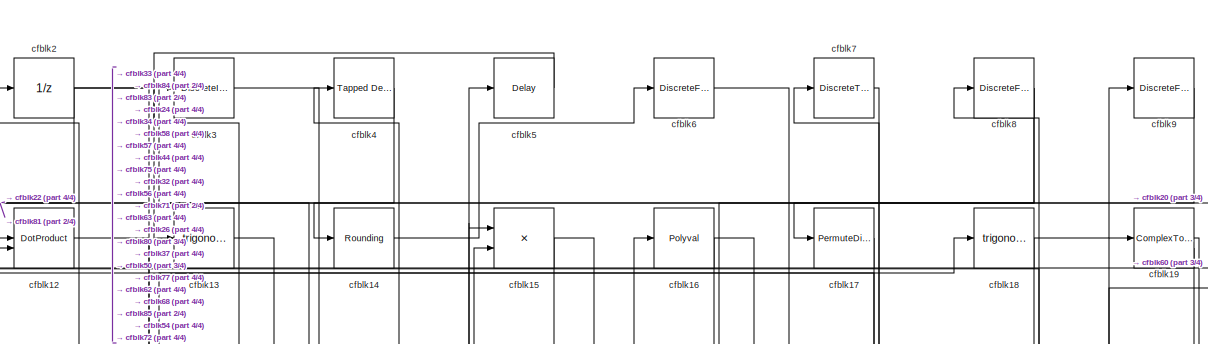
[diagram: root canvas - part 1/4, full width, top band]
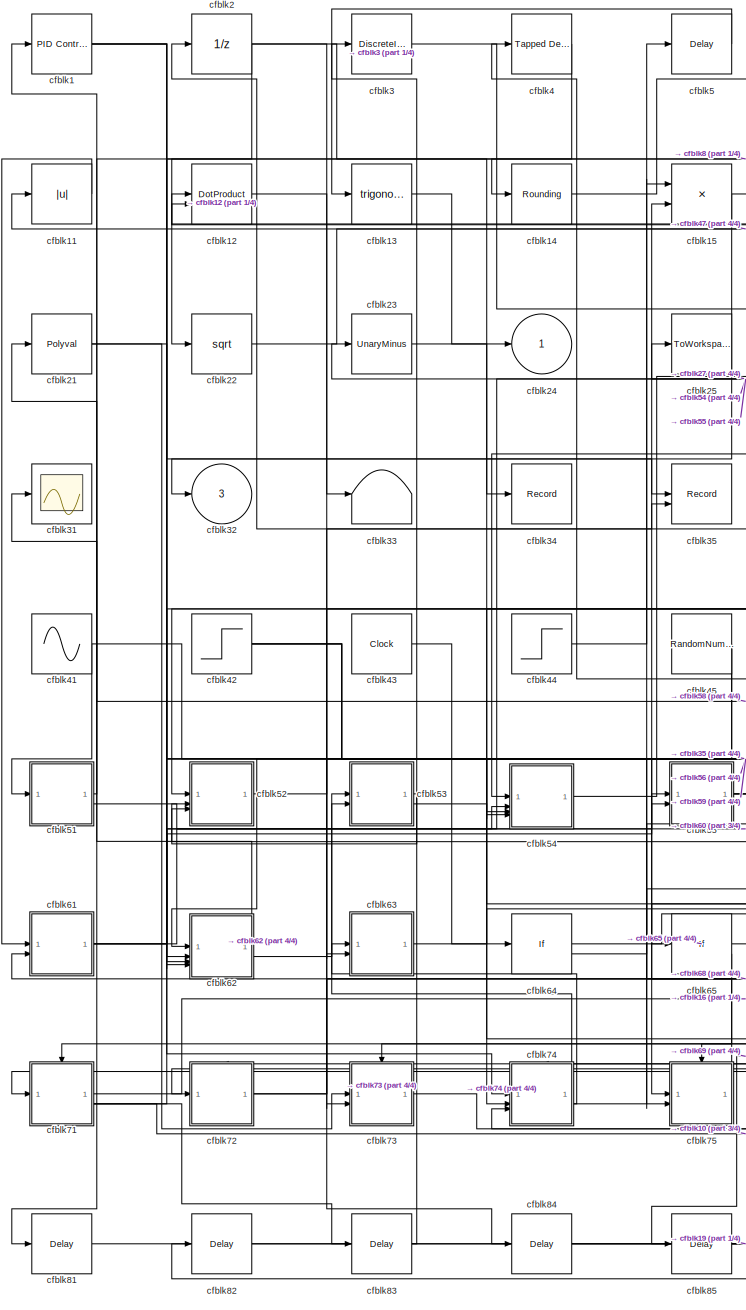
[diagram: root canvas - part 2/4, left side, full height]
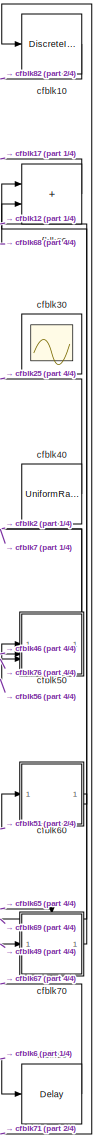
[diagram: root canvas - part 3/4, right side, full height]
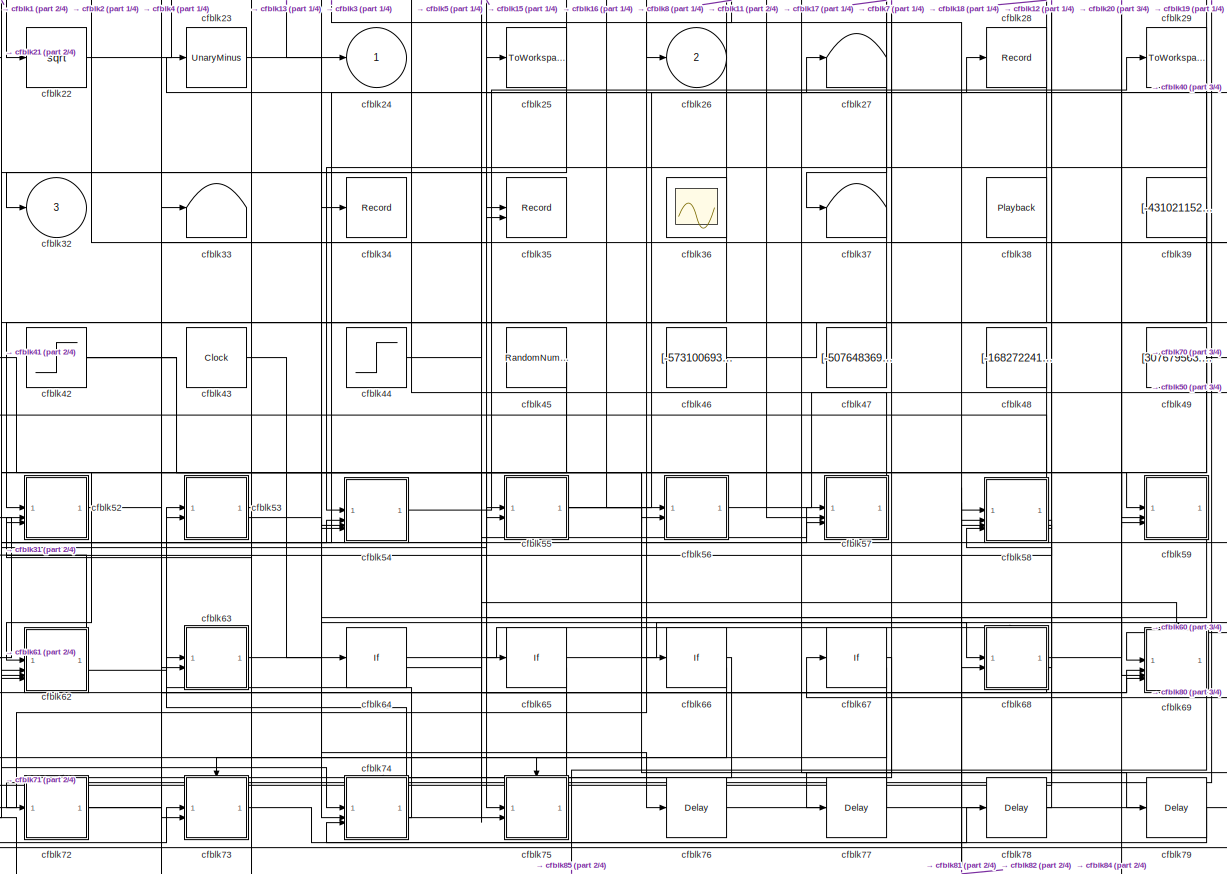
[diagram: root canvas - part 4/4, full width, middle band]
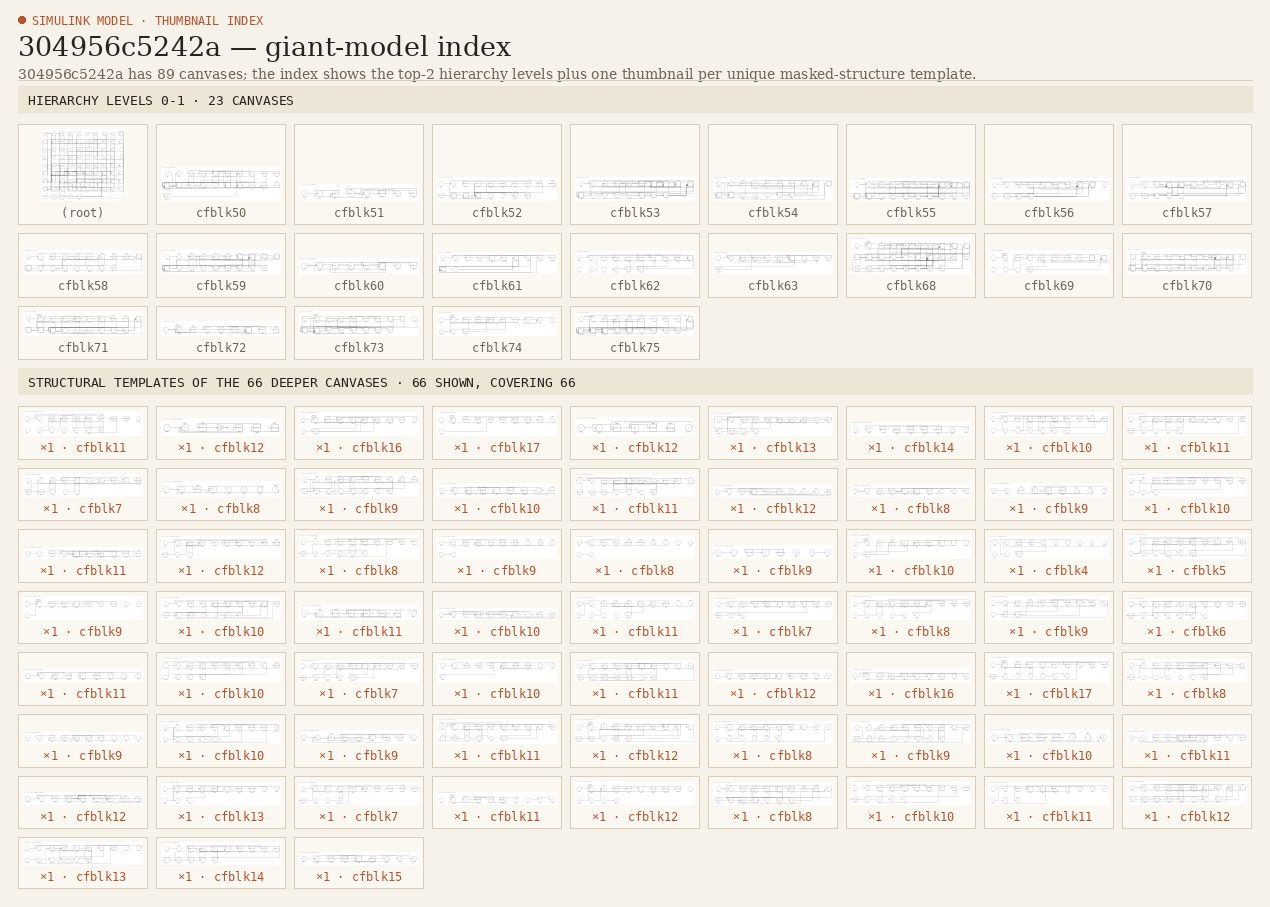
[diagram: thumbnail index - top-2 hierarchy levels (23 canvases) + 66 structural-template representatives of the remaining 66 canvases]
MODEL slx_304956c5242a
KIND model
CONFIG AbsTol = auto
CONFIG EnableMultiTasking = off
CONFIG FixedStep = auto
CONFIG MaxStep = auto
CONFIG MinStep = auto
CONFIG RelTol = 1e-3
CONFIG SampleTimeConstraint = Unconstrained
CONFIG SolverName = VariableStepAuto
CONFIG StartTime = 0.0
CONFIG StopTime = 10.0
BLOCK [Reference] cfblk1  REF=slpidlib/PID Controller
  LibrarySourceBlock = simulink/Discrete/Discrete PID Controller
  SourceBlock = slpidlib/PID Controller
  SourceType = PID 1dof
BLOCK [DiscreteIntegrator] cfblk10
  ICPrevOutput = DiscIntNeverNeededParam
  ICPrevScaledInput = DiscIntNeverNeededParam
  InitialConditionSetting = Auto
BLOCK [Abs] cfblk11
  SaturateOnIntegerOverflow = off
BLOCK [DotProduct] cfblk12
  OutDataTypeStr = Inherit: Inherit via internal rule
BLOCK [Trigonometry] cfblk13
BLOCK [Rounding] cfblk14
BLOCK [Product] cfblk15
BLOCK [Polyval] cfblk16
  Coefs = [ +2.081618890e-019, -1.441693666e-014, +4.719686976e-010, -8.536869453e-006, +1.621573104e-001, -8.087801117e+001 ]
BLOCK [PermuteDimensions] cfblk17
BLOCK [Trigonometry] cfblk18
BLOCK [ComplexToMagnitudeAngle] cfblk19
BLOCK [UnitDelay] cfblk2
  HasFrameUpgradeWarning = on
BLOCK [Sum] cfblk20
  IconShape = rectangular
BLOCK [Polyval] cfblk21
  Coefs = [ +2.081618890e-019, -1.441693666e-014, +4.719686976e-010, -8.536869453e-006, +1.621573104e-001, -8.087801117e+001 ]
BLOCK [Sqrt] cfblk22
BLOCK [UnaryMinus] cfblk23
BLOCK [Outport] cfblk24
BLOCK [ToWorkspace] cfblk25
  FixptAsFi = on
  MaxDataPoints = inf
  SampleTime = -1
  SaveFormat = Timeseries
  VariableName = envugji
BLOCK [Outport] cfblk26
  Port = 2
BLOCK [Terminator] cfblk27
BLOCK [Record] cfblk28
  FileSettingsInternal = {"entries":[{"content":{"excelSettings":{"content":{},"type":"Streamout.ExcelSettings"}},"type":"Streamout.FileSettingStorage","uuid":""}],"packageUris":["http:\/\/schema.mathworks.com\/mf0\/streamout_blocks\/R2020a"],"version":"1.0"}  <repeated x3 — deduplicated; at blocks: cfblk28, cfblk34, cfblk35>
  SignalsInternal = {"entries":[{"content":{"signals":[{"content":{"blockPath":[],"dimensions":[1],"domain":"","lineColor":"#ff13a6","plots":[1],"port":1,"sid":[""],"signalID":1141,"signalName":"cfblk55"},"type":"RecordBlkView.Signal","uuid":""}]},"type":"RecordBlkView.InputSignals","uuid":""}],"packageUris":["http:\/\/schema.mathworks.com\/mf0\/streamout_blocks\/R2020a"],"version":"1.0"}
  VisualizationBindings = {"sparklinesplugin":{"info":[{"bindingParametersList":[],"subplotID":1}]}}
BLOCK [ToWorkspace] cfblk29
  FixptAsFi = on
  MaxDataPoints = inf
  SampleTime = -1
  SaveFormat = Timeseries
  VariableName = wlluaqi
BLOCK [DiscreteIntegrator] cfblk3
  ICPrevOutput = DiscIntNeverNeededParam
  ICPrevScaledInput = DiscIntNeverNeededParam
  InitialConditionSetting = Auto
BLOCK [Scope] cfblk30
  Floating = on
  NumInputPorts = 1
BLOCK [Scope] cfblk31
  Floating = off
  NumInputPorts = 1
BLOCK [Outport] cfblk32
  Port = 3
BLOCK [Terminator] cfblk33
BLOCK [Record] cfblk34
  SignalsInternal = {"entries":[{"content":{"signals":[{"content":{"blockPath":[],"dimensions":[1],"domain":"","lineColor":"#22b573","plots":[1],"port":1,"sid":[""],"signalID":1149,"signalName":"cfblk2"},"type":"RecordBlkView.Signal","uuid":""}]},"type":"RecordBlkView.InputSignals","uuid":""}],"packageUris":["http:\/\/schema.mathworks.com\/mf0\/streamout_blocks\/R2020a"],"version":"1.0"}
  VisualizationBindings = {"sparklinesplugin":{"info":[{"bindingParametersList":[],"subplotID":1}]}}
BLOCK [Record] cfblk35
  CompatibilityTag = XY
  Layout = [1 1]
  SignalsInternal = {"entries":[{"content":{"signals":[{"content":{"blockPath":[],"dimensions":[1],"domain":"","lineColor":"#a2142f","plots":[1],"port":1,"sid":[""],"signalID":1153,"signalName":"cfblk1"},"type":"RecordBlkView.Signal","uuid":""},{"content":{"blockPath":[],"dimensions":[1],"domain":"","lineColor":"#139fff","plots":[1],"port":2,"sid":[""],"signalID":1157,"signalName":"cfblk52"},"type":"RecordBlkView.Sig...<+161ch>
  VisualizationBindings = {"xyplotplugin":{"info":[{"series":[{"bindingParametersList":[{"parameter":"X-Axis","signalID":1153,"signalName":"cfblk1"},{"parameter":"Y-Axis","signalID":1157,"signalName":"cfblk52"}],"seriesID":35529}],"subplotID":1}]}}
BLOCK [Scope] cfblk36
  Floating = on
  NumInputPorts = 1
BLOCK [Terminator] cfblk37
BLOCK [Playback] cfblk38
  NumPorts = 0
  PartName = 63b8ea15-6b82-47df-b1da-d6e66bc8738b
BLOCK [Constant] cfblk39
  SampleTime = 1
  Value = [-431021152.219124]
BLOCK [Reference] cfblk4  REF=simulink/Discrete/Tapped Delay
  SourceBlock = simulink/Discrete/Tapped Delay
  SourceType = Tapped Delay Line
BLOCK [UniformRandomNumber] cfblk40
  Maximum = [6336167478.410847]
  Minimum = [-8305883063.476324]
  SampleTime = 0.1
  Seed = [29457914.000000]
BLOCK [Sin] cfblk41
  Amplitude = [815797185.839253]
  Bias = [956764081.088228]
  SampleTime = 0
BLOCK [Step] cfblk42
  After = [543324155.345459]
  Before = [-203811535.519444]
  SampleTime = 0
  Time = [20.000000]
BLOCK [Clock] cfblk43
BLOCK [Step] cfblk44
  After = [117735768.071794]
  Before = [-285476932.662708]
  SampleTime = 0
  Time = [32.000000]
BLOCK [RandomNumber] cfblk45
  Mean = [37780.519300]
  SampleTime = 0.1
  Seed = [246649944.000000]
  Variance = [5936.131945]
BLOCK [Constant] cfblk46
  SampleTime = 1
  Value = [-573100693.012457]
BLOCK [Constant] cfblk47
  SampleTime = 1
  Value = [-507648369.111845]
BLOCK [Constant] cfblk48
  SampleTime = 1
  Value = [-168272241.727863]
BLOCK [Constant] cfblk49
  SampleTime = 1
  Value = [307679563.223721]
BLOCK [Delay] cfblk5
  InputPortMap = u0
  SampleTime = 1
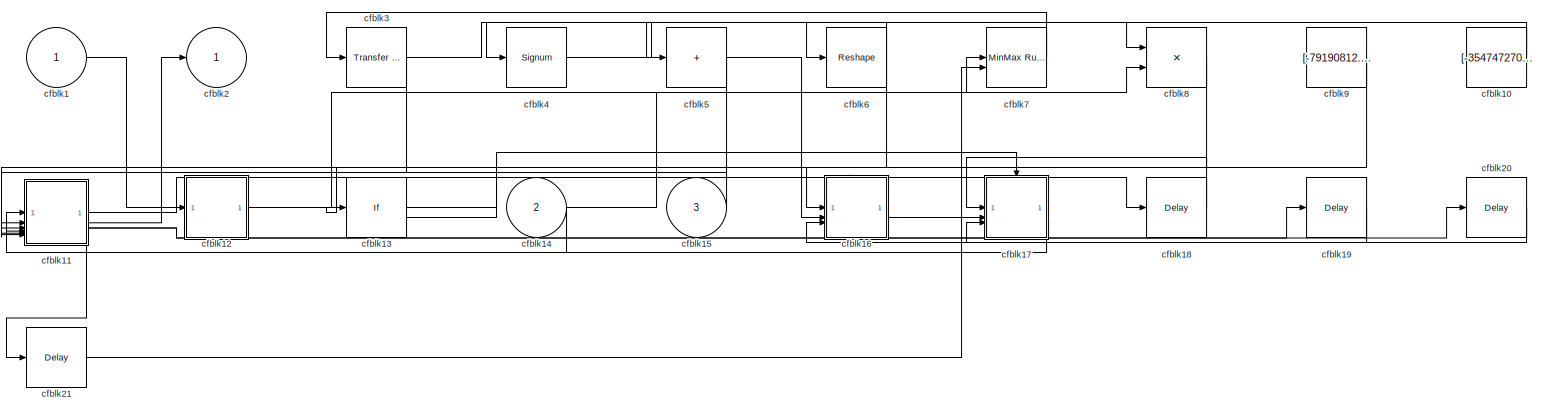
[diagram: cfblk50 - part 1/1, most of the canvas]
BLOCK [SubSystem] cfblk50
BLOCK [Inport] cfblk50/cfblk1
BLOCK [Constant] cfblk50/cfblk10
  SampleTime = 1
  Value = [-354747270.993845]
BLOCK [SubSystem] cfblk50/cfblk11
BLOCK [Inport] cfblk50/cfblk11/cfblk1
BLOCK [Inport] cfblk50/cfblk11/cfblk10
  Port = 2
BLOCK [Inport] cfblk50/cfblk11/cfblk11
  Port = 3
BLOCK [Inport] cfblk50/cfblk11/cfblk12
  Port = 4
BLOCK [Inport] cfblk50/cfblk11/cfblk13
  Port = 5
BLOCK [Inport] cfblk50/cfblk11/cfblk14
  Port = 6
BLOCK [Outport] cfblk50/cfblk11/cfblk15
  Port = 2
BLOCK [Outport] cfblk50/cfblk11/cfblk16
  Port = 3
BLOCK [Delay] cfblk50/cfblk11/cfblk17
  InputPortMap = u0
  SampleTime = 1
BLOCK [Outport] cfblk50/cfblk11/cfblk2
BLOCK [Reference] cfblk50/cfblk11/cfblk3  REF=simulink/Discrete/Transfer Fcn
First Order
  SourceBlock = simulink/Discrete/Transfer Fcn\nFirst Order
  SourceType = First Order Transfer Fcn
BLOCK [PropagationDelay] cfblk50/cfblk11/cfblk4
  SampleTime = 1
BLOCK [Reference] cfblk50/cfblk11/cfblk5  REF=simulink/Discrete/Transfer Fcn
Lead or Lag
  SourceBlock = simulink/Discrete/Transfer Fcn\nLead or Lag
  SourceType = Lead or Lag Compensator
BLOCK [Gain] cfblk50/cfblk11/cfblk6
  Gain = [-700709648.240195]
BLOCK [Gain] cfblk50/cfblk11/cfblk7
  Gain = [331548499.680737]
BLOCK [Constant] cfblk50/cfblk11/cfblk8
  SampleTime = 1
  Value = [-553184913.844539]
BLOCK [Constant] cfblk50/cfblk11/cfblk9
  SampleTime = 1
  Value = [754696575.080733]
BLOCK [SubSystem] cfblk50/cfblk12
BLOCK [Inport] cfblk50/cfblk12/cfblk1
BLOCK [Outport] cfblk50/cfblk12/cfblk2
BLOCK [Reference] cfblk50/cfblk12/cfblk3  REF=simulink/Discrete/Tapped Delay
  SourceBlock = simulink/Discrete/Tapped Delay
  SourceType = Tapped Delay Line
BLOCK [Gain] cfblk50/cfblk12/cfblk4
  Gain = [971533406.889198]
BLOCK [Squeeze] cfblk50/cfblk12/cfblk5
BLOCK [Squeeze] cfblk50/cfblk12/cfblk6
BLOCK [Constant] cfblk50/cfblk12/cfblk7
  SampleTime = 1
  Value = [332401109.820398]
BLOCK [If] cfblk50/cfblk13
  IfExpression = u1 >= 0
  SampleTime = 1
BLOCK [Inport] cfblk50/cfblk14
  Port = 2
BLOCK [Inport] cfblk50/cfblk15
  Port = 3
BLOCK [SubSystem] cfblk50/cfblk16
  TreatAsAtomicUnit = on
BLOCK [ActionPort] cfblk50/cfblk16/Action Port
  ActionPortLabel = if(u1 >= 0)
BLOCK [Inport] cfblk50/cfblk16/cfblk1
BLOCK [Inport] cfblk50/cfblk16/cfblk10
  Port = 2
BLOCK [Inport] cfblk50/cfblk16/cfblk11
  Port = 3
BLOCK [Delay] cfblk50/cfblk16/cfblk12
  InputPortMap = u0
BLOCK [Outport] cfblk50/cfblk16/cfblk2
BLOCK [Reference] cfblk50/cfblk16/cfblk3  REF=slpidlib/PID Controller (2DOF)
  LibrarySourceBlock = simulink/Discrete/Discrete PID Controller (2DOF)
  SourceBlock = slpidlib/PID Controller (2DOF)
  SourceType = PID 2dof
BLOCK [Delay] cfblk50/cfblk16/cfblk4
  InputPortMap = u0,e6
  ShowEnablePort = on
BLOCK [Product] cfblk50/cfblk16/cfblk5
  Inputs = *
BLOCK [DotProduct] cfblk50/cfblk16/cfblk6
  OutDataTypeStr = Inherit: Inherit via internal rule
BLOCK [Math] cfblk50/cfblk16/cfblk7
  Operator = hypot
BLOCK [Constant] cfblk50/cfblk16/cfblk8
  SampleTime = 1
  Value = [-655265639.236611]
BLOCK [Constant] cfblk50/cfblk16/cfblk9
  SampleTime = 1
  Value = [-757382040.417867]
BLOCK [SubSystem] cfblk50/cfblk17
  TreatAsAtomicUnit = on
BLOCK [ActionPort] cfblk50/cfblk17/Action Port
  ActionPortLabel = else
BLOCK [Inport] cfblk50/cfblk17/cfblk1
BLOCK [Inport] cfblk50/cfblk17/cfblk10
  Port = 2
BLOCK [Inport] cfblk50/cfblk17/cfblk11
  Port = 3
BLOCK [Outport] cfblk50/cfblk17/cfblk2
BLOCK [DiscreteFilter] cfblk50/cfblk17/cfblk3
  InputPortMap = u0
BLOCK [Reference] cfblk50/cfblk17/cfblk4  REF=simulink/Discrete/Transfer Fcn
First Order
  SourceBlock = simulink/Discrete/Transfer Fcn\nFirst Order
  SourceType = First Order Transfer Fcn
BLOCK [PermuteDimensions] cfblk50/cfblk17/cfblk5
BLOCK [Squeeze] cfblk50/cfblk17/cfblk6
BLOCK [Reference] cfblk50/cfblk17/cfblk7  REF=simulink/Math
Operations/Slider
Gain
  SourceBlock = simulink/Math\nOperations/Slider\nGain
  SourceType = Slider Gain
BLOCK [Constant] cfblk50/cfblk17/cfblk8
  SampleTime = 1
  Value = [955086984.500659]
BLOCK [Constant] cfblk50/cfblk17/cfblk9
  SampleTime = 1
  Value = [-238339650.818923]
BLOCK [Delay] cfblk50/cfblk18
  InputPortMap = u0
  SampleTime = 1
BLOCK [Delay] cfblk50/cfblk19
  InputPortMap = u0
  SampleTime = 1
BLOCK [Outport] cfblk50/cfblk2
BLOCK [Delay] cfblk50/cfblk20
  InputPortMap = u0
  SampleTime = 1
BLOCK [Delay] cfblk50/cfblk21
  InputPortMap = u0
  SampleTime = 1
BLOCK [Reference] cfblk50/cfblk3  REF=simulink/Discrete/Transfer Fcn
First Order
  SourceBlock = simulink/Discrete/Transfer Fcn\nFirst Order
  SourceType = First Order Transfer Fcn
BLOCK [Signum] cfblk50/cfblk4
BLOCK [Sum] cfblk50/cfblk5
  IconShape = rectangular
  Inputs = +
BLOCK [Reshape] cfblk50/cfblk6
BLOCK [Reference] cfblk50/cfblk7  REF=simulink/Math
Operations/MinMax
Running
Resettable
  SourceBlock = simulink/Math\nOperations/MinMax\nRunning\nResettable
  SourceType = MinMax Running Resettable
BLOCK [Product] cfblk50/cfblk8
BLOCK [Constant] cfblk50/cfblk9
  SampleTime = 1
  Value = [-79190812.574955]
BLOCK [SubSystem] cfblk51
BLOCK [Inport] cfblk51/cfblk1
BLOCK [Outport] cfblk51/cfblk2
BLOCK [Delay] cfblk51/cfblk3
  InputPortMap = u0,e6
  SampleTime = 1
  ShowEnablePort = on
BLOCK [Sqrt] cfblk51/cfblk4
BLOCK [Sum] cfblk51/cfblk5
  Inputs = |++
BLOCK [Constant] cfblk51/cfblk6
  SampleTime = 1
  Value = [536131796.345285]
BLOCK [Outport] cfblk51/cfblk7
  Port = 2
BLOCK [Delay] cfblk51/cfblk8
  InputPortMap = u0
  SampleTime = 1
BLOCK [SubSystem] cfblk52
BLOCK [Inport] cfblk52/cfblk1
BLOCK [Constant] cfblk52/cfblk10
  SampleTime = 1
  Value = [289635731.948887]
BLOCK [Constant] cfblk52/cfblk11
  SampleTime = 1
  Value = [473882805.772603]
BLOCK [SubSystem] cfblk52/cfblk12
BLOCK [Inport] cfblk52/cfblk12/cfblk1
BLOCK [Outport] cfblk52/cfblk12/cfblk2
BLOCK [Delay] cfblk52/cfblk12/cfblk3
  InputPortMap = u0,e6
  SampleTime = 1
  ShowEnablePort = on
BLOCK [Bias] cfblk52/cfblk12/cfblk4
  Bias = [-969793818.699018]
  SaturateOnIntegerOverflow = off
BLOCK [Rounding] cfblk52/cfblk12/cfblk5
BLOCK [Constant] cfblk52/cfblk12/cfblk6
  SampleTime = 1
  Value = [895284735.799100]
BLOCK [Inport] cfblk52/cfblk12/cfblk7
  Port = 2
BLOCK [SubSystem] cfblk52/cfblk13
BLOCK [Inport] cfblk52/cfblk13/cfblk1
BLOCK [Math] cfblk52/cfblk13/cfblk10
  Operator = rem
BLOCK [Sum] cfblk52/cfblk13/cfblk11
  IconShape = rectangular
  Inputs = -+
BLOCK [Constant] cfblk52/cfblk13/cfblk12
  SampleTime = 1
  Value = [21901334.833868]
BLOCK [Inport] cfblk52/cfblk13/cfblk13
  Port = 2
BLOCK [Outport] cfblk52/cfblk13/cfblk14
  Port = 2
BLOCK [Outport] cfblk52/cfblk13/cfblk2
BLOCK [DiscreteIntegrator] cfblk52/cfblk13/cfblk3
  ICPrevOutput = DiscIntNeverNeededParam
  ICPrevScaledInput = DiscIntNeverNeededParam
  InitialConditionSetting = Auto
BLOCK [Reference] cfblk52/cfblk13/cfblk4  REF=simulink/Discrete/Transfer Fcn
Lead or Lag
  SourceBlock = simulink/Discrete/Transfer Fcn\nLead or Lag
  SourceType = Lead or Lag Compensator
BLOCK [DiscreteIntegrator] cfblk52/cfblk13/cfblk5
  ICPrevOutput = DiscIntNeverNeededParam
  ICPrevScaledInput = DiscIntNeverNeededParam
  InitialConditionSetting = Auto
BLOCK [Reference] cfblk52/cfblk13/cfblk6  REF=simulink/Math
Operations/MinMax
Running
Resettable
  SourceBlock = simulink/Math\nOperations/MinMax\nRunning\nResettable
  SourceType = MinMax Running Resettable
BLOCK [Bias] cfblk52/cfblk13/cfblk7
  Bias = [-638279042.467473]
  SaturateOnIntegerOverflow = off
BLOCK [Reshape] cfblk52/cfblk13/cfblk8
BLOCK [Sum] cfblk52/cfblk13/cfblk9
  Inputs = |++
BLOCK [SubSystem] cfblk52/cfblk14
BLOCK [Inport] cfblk52/cfblk14/cfblk1
BLOCK [Outport] cfblk52/cfblk14/cfblk2
BLOCK [Reference] cfblk52/cfblk14/cfblk3  REF=slpidlib/PID Controller
  LibrarySourceBlock = simulink/Discrete/Discrete PID Controller
  SourceBlock = slpidlib/PID Controller
  SourceType = PID 1dof
BLOCK [Reference] cfblk52/cfblk14/cfblk4  REF=simulink/Discrete/Difference
  SourceBlock = simulink/Discrete/Difference
  SourceType = Difference
BLOCK [Math] cfblk52/cfblk14/cfblk5
  Operator = square
BLOCK [Polyval] cfblk52/cfblk14/cfblk6
  Coefs = [ +2.081618890e-019, -1.441693666e-014, +4.719686976e-010, -8.536869453e-006, +1.621573104e-001, -8.087801117e+001 ]
BLOCK [Constant] cfblk52/cfblk14/cfblk7
  SampleTime = 1
  Value = [-783550245.508708]
BLOCK [Inport] cfblk52/cfblk14/cfblk8
  Port = 2
BLOCK [Inport] cfblk52/cfblk14/cfblk9
  Port = 3
BLOCK [Inport] cfblk52/cfblk15
  Port = 2
BLOCK [Inport] cfblk52/cfblk16
  Port = 3
BLOCK [Delay] cfblk52/cfblk17
  InputPortMap = u0
  SampleTime = 1
BLOCK [Delay] cfblk52/cfblk18
  InputPortMap = u0
  SampleTime = 1
BLOCK [Outport] cfblk52/cfblk2
BLOCK [Reference] cfblk52/cfblk3  REF=slpidlib/PID Controller
  LibrarySourceBlock = simulink/Discrete/Discrete PID Controller
  SourceBlock = slpidlib/PID Controller
  SourceType = PID 1dof
BLOCK [Delay] cfblk52/cfblk4
  InputPortMap = u0
  SampleTime = 1
BLOCK [DiscreteStateSpace] cfblk52/cfblk5
BLOCK [DiscreteFir] cfblk52/cfblk6
  InputPortMap = u0
  OutputPortMap = o0
  SampleTime = 1
BLOCK [DiscreteStateSpace] cfblk52/cfblk7
BLOCK [Reshape] cfblk52/cfblk8
BLOCK [MinMax] cfblk52/cfblk9
  Function = max
BLOCK [SubSystem] cfblk53
BLOCK [Inport] cfblk53/cfblk1
BLOCK [SubSystem] cfblk53/cfblk10
BLOCK [Inport] cfblk53/cfblk10/cfblk1
BLOCK [DotProduct] cfblk53/cfblk10/cfblk10
  OutDataTypeStr = Inherit: Inherit via internal rule
BLOCK [Inport] cfblk53/cfblk10/cfblk11
  Port = 2
BLOCK [Inport] cfblk53/cfblk10/cfblk12
  Port = 3
BLOCK [Inport] cfblk53/cfblk10/cfblk13
  Port = 4
BLOCK [Inport] cfblk53/cfblk10/cfblk14
  Port = 5
BLOCK [Outport] cfblk53/cfblk10/cfblk15
  Port = 2
BLOCK [Outport] cfblk53/cfblk10/cfblk16
  Port = 3
BLOCK [Outport] cfblk53/cfblk10/cfblk17
  Port = 4
BLOCK [Outport] cfblk53/cfblk10/cfblk2
BLOCK [DiscreteFir] cfblk53/cfblk10/cfblk3
  InputPortMap = u0
  OutputPortMap = o0
  SampleTime = 1
BLOCK [Product] cfblk53/cfblk10/cfblk4
  Inputs = **
BLOCK [Bias] cfblk53/cfblk10/cfblk5
  Bias = [-483242834.233422]
  SaturateOnIntegerOverflow = off
BLOCK [Sqrt] cfblk53/cfblk10/cfblk6
BLOCK [Gain] cfblk53/cfblk10/cfblk7
  Gain = [330733218.772295]
BLOCK [Polyval] cfblk53/cfblk10/cfblk8
  Coefs = [ +2.081618890e-019, -1.441693666e-014, +4.719686976e-010, -8.536869453e-006, +1.621573104e-001, -8.087801117e+001 ]
BLOCK [Polyval] cfblk53/cfblk10/cfblk9
  Coefs = [ +2.081618890e-019, -1.441693666e-014, +4.719686976e-010, -8.536869453e-006, +1.621573104e-001, -8.087801117e+001 ]
BLOCK [SubSystem] cfblk53/cfblk11
BLOCK [Inport] cfblk53/cfblk11/cfblk1
BLOCK [MinMax] cfblk53/cfblk11/cfblk10
BLOCK [Constant] cfblk53/cfblk11/cfblk11
  SampleTime = 1
  Value = [255084579.334015]
BLOCK [Inport] cfblk53/cfblk11/cfblk12
  Port = 2
BLOCK [Inport] cfblk53/cfblk11/cfblk13
  Port = 3
BLOCK [Inport] cfblk53/cfblk11/cfblk14
  Port = 4
BLOCK [Outport] cfblk53/cfblk11/cfblk15
  Port = 2
BLOCK [Outport] cfblk53/cfblk11/cfblk2
BLOCK [DiscreteStateSpace] cfblk53/cfblk11/cfblk3
BLOCK [DiscreteFir] cfblk53/cfblk11/cfblk4
  InputPortMap = u0
  OutputPortMap = o0
  SampleTime = 1
BLOCK [Reference] cfblk53/cfblk11/cfblk5  REF=simulink/Discrete/Transfer Fcn
First Order
  SourceBlock = simulink/Discrete/Transfer Fcn\nFirst Order
  SourceType = First Order Transfer Fcn
BLOCK [DiscreteFir] cfblk53/cfblk11/cfblk6
  InputPortMap = u0
  OutputPortMap = o0
  SampleTime = 1
BLOCK [Product] cfblk53/cfblk11/cfblk7
  Inputs = *
BLOCK [Sum] cfblk53/cfblk11/cfblk8
  Inputs = |++
BLOCK [Reference] cfblk53/cfblk11/cfblk9  REF=simulink/Math
Operations/Slider
Gain
  SourceBlock = simulink/Math\nOperations/Slider\nGain
  SourceType = Slider Gain
BLOCK [Inport] cfblk53/cfblk12
  Port = 2
BLOCK [Outport] cfblk53/cfblk13
  Port = 2
BLOCK [Delay] cfblk53/cfblk14
  InputPortMap = u0
  SampleTime = 1
BLOCK [Delay] cfblk53/cfblk15
  InputPortMap = u0
  SampleTime = 1
BLOCK [Delay] cfblk53/cfblk16
  InputPortMap = u0
  SampleTime = 1
BLOCK [Delay] cfblk53/cfblk17
  InputPortMap = u0
  SampleTime = 1
BLOCK [Delay] cfblk53/cfblk18
  InputPortMap = u0
  SampleTime = 1
BLOCK [Outport] cfblk53/cfblk2
BLOCK [Reference] cfblk53/cfblk3  REF=simulink/Discrete/Difference
  SourceBlock = simulink/Discrete/Difference
  SourceType = Difference
BLOCK [Bias] cfblk53/cfblk4
  Bias = [-121223927.532387]
  SaturateOnIntegerOverflow = off
BLOCK [DotProduct] cfblk53/cfblk5
  OutDataTypeStr = Inherit: Inherit via internal rule
BLOCK [Constant] cfblk53/cfblk6
  SampleTime = 1
  Value = [67076658.501346]
BLOCK [SubSystem] cfblk53/cfblk7
BLOCK [Inport] cfblk53/cfblk7/cfblk1
BLOCK [UnaryMinus] cfblk53/cfblk7/cfblk10
BLOCK [PermuteDimensions] cfblk53/cfblk7/cfblk11
BLOCK [Constant] cfblk53/cfblk7/cfblk12
  SampleTime = 1
  Value = [539568661.943049]
BLOCK [Inport] cfblk53/cfblk7/cfblk13
  Port = 2
BLOCK [Inport] cfblk53/cfblk7/cfblk14
  Port = 3
BLOCK [Inport] cfblk53/cfblk7/cfblk15
  Port = 4
BLOCK [Outport] cfblk53/cfblk7/cfblk2
BLOCK [Delay] cfblk53/cfblk7/cfblk3
  InputPortMap = u0,e6
  SampleTime = 1
  ShowEnablePort = on
BLOCK [DiscreteZeroPole] cfblk53/cfblk7/cfblk4
  Gain = 1
  Poles = [0 0.5]
BLOCK [Sum] cfblk53/cfblk7/cfblk5
  IconShape = rectangular
  Inputs = +
BLOCK [Sum] cfblk53/cfblk7/cfblk6
  IconShape = rectangular
  Inputs = +
BLOCK [Sum] cfblk53/cfblk7/cfblk7
  IconShape = rectangular
BLOCK [Reshape] cfblk53/cfblk7/cfblk8
BLOCK [Sum] cfblk53/cfblk7/cfblk9
  IconShape = rectangular
  Inputs = +-
BLOCK [SubSystem] cfblk53/cfblk8
BLOCK [Inport] cfblk53/cfblk8/cfblk1
BLOCK [Outport] cfblk53/cfblk8/cfblk2
BLOCK [DiscreteStateSpace] cfblk53/cfblk8/cfblk3
BLOCK [Sum] cfblk53/cfblk8/cfblk4
  IconShape = rectangular
  Inputs = --
BLOCK [Inport] cfblk53/cfblk8/cfblk5
  Port = 2
BLOCK [Inport] cfblk53/cfblk8/cfblk6
  Port = 3
BLOCK [Inport] cfblk53/cfblk8/cfblk7
  Port = 4
BLOCK [Inport] cfblk53/cfblk8/cfblk8
  Port = 5
BLOCK [SubSystem] cfblk53/cfblk9
BLOCK [Inport] cfblk53/cfblk9/cfblk1
BLOCK [Reshape] cfblk53/cfblk9/cfblk10
BLOCK [Product] cfblk53/cfblk9/cfblk11
  Inputs = *
BLOCK [Constant] cfblk53/cfblk9/cfblk12
  SampleTime = 1
  Value = [-9979779.075222]
BLOCK [Inport] cfblk53/cfblk9/cfblk13
  Port = 2
BLOCK [Inport] cfblk53/cfblk9/cfblk14
  Port = 3
BLOCK [Outport] cfblk53/cfblk9/cfblk15
  Port = 2
BLOCK [Outport] cfblk53/cfblk9/cfblk16
  Port = 3
BLOCK [Outport] cfblk53/cfblk9/cfblk17
  Port = 4
BLOCK [Delay] cfblk53/cfblk9/cfblk18
  InputPortMap = u0
  SampleTime = 1
BLOCK [Outport] cfblk53/cfblk9/cfblk2
BLOCK [Reference] cfblk53/cfblk9/cfblk3  REF=simulink/Discrete/Transfer Fcn
Real Zero
  SourceBlock = simulink/Discrete/Transfer Fcn\nReal Zero
  SourceType = Transfer Fcn Real Zero
BLOCK [Reference] cfblk53/cfblk9/cfblk4  REF=slpidlib/PID Controller (2DOF)
  LibrarySourceBlock = simulink/Discrete/Discrete PID Controller (2DOF)
  SourceBlock = slpidlib/PID Controller (2DOF)
  SourceType = PID 2dof
BLOCK [Sum] cfblk53/cfblk9/cfblk5
  IconShape = rectangular
  Inputs = +-
BLOCK [Reshape] cfblk53/cfblk9/cfblk6
BLOCK [DotProduct] cfblk53/cfblk9/cfblk7
  OutDataTypeStr = Inherit: Inherit via internal rule
BLOCK [Sin] cfblk53/cfblk9/cfblk8
  SampleTime = 0
  TimeSource = Use external signal
BLOCK [Sum] cfblk53/cfblk9/cfblk9
  IconShape = rectangular
  Inputs = --
BLOCK [SubSystem] cfblk54
BLOCK [Inport] cfblk54/cfblk1
BLOCK [SubSystem] cfblk54/cfblk10
BLOCK [Inport] cfblk54/cfblk10/cfblk1
BLOCK [Outport] cfblk54/cfblk10/cfblk2
BLOCK [Delay] cfblk54/cfblk10/cfblk3
  InputPortMap = u0,e6
  SampleTime = 1
  ShowEnablePort = on
BLOCK [Reference] cfblk54/cfblk10/cfblk4  REF=slpidlib/PID Controller
  LibrarySourceBlock = simulink/Discrete/Discrete PID Controller
  SourceBlock = slpidlib/PID Controller
  SourceType = PID 1dof
BLOCK [Product] cfblk54/cfblk10/cfblk5
BLOCK [Signum] cfblk54/cfblk10/cfblk6
BLOCK [ComplexToRealImag] cfblk54/cfblk10/cfblk7
BLOCK [Inport] cfblk54/cfblk10/cfblk8
  Port = 2
BLOCK [Delay] cfblk54/cfblk10/cfblk9
  InputPortMap = u0
  SampleTime = 1
BLOCK [SubSystem] cfblk54/cfblk11
BLOCK [Inport] cfblk54/cfblk11/cfblk1
BLOCK [Product] cfblk54/cfblk11/cfblk10
  Inputs = *
BLOCK [Constant] cfblk54/cfblk11/cfblk11
  SampleTime = 1
  Value = [-154886085.124948]
BLOCK [Constant] cfblk54/cfblk11/cfblk12
  SampleTime = 1
  Value = [927593082.108783]
BLOCK [Constant] cfblk54/cfblk11/cfblk13
  SampleTime = 1
  Value = [-404752229.286036]
BLOCK [Inport] cfblk54/cfblk11/cfblk14
  Port = 2
BLOCK [Inport] cfblk54/cfblk11/cfblk15
  Port = 3
BLOCK [Outport] cfblk54/cfblk11/cfblk16
  Port = 2
BLOCK [Delay] cfblk54/cfblk11/cfblk17
  InputPortMap = u0
  SampleTime = 1
BLOCK [Outport] cfblk54/cfblk11/cfblk2
BLOCK [Reference] cfblk54/cfblk11/cfblk3  REF=slpidlib/PID Controller
  LibrarySourceBlock = simulink/Discrete/Discrete PID Controller
  SourceBlock = slpidlib/PID Controller
  SourceType = PID 1dof
BLOCK [PropagationDelay] cfblk54/cfblk11/cfblk4
  SampleTime = 1
BLOCK [Sum] cfblk54/cfblk11/cfblk5
  IconShape = rectangular
BLOCK [Bias] cfblk54/cfblk11/cfblk6
  Bias = [618349610.405215]
  SaturateOnIntegerOverflow = off
BLOCK [Sum] cfblk54/cfblk11/cfblk7
  Inputs = |++
BLOCK [Reference] cfblk54/cfblk11/cfblk8  REF=simulink/Math
Operations/Slider
Gain
  SourceBlock = simulink/Math\nOperations/Slider\nGain
  SourceType = Slider Gain
BLOCK [Product] cfblk54/cfblk11/cfblk9
  Inputs = **
BLOCK [SubSystem] cfblk54/cfblk12
BLOCK [Inport] cfblk54/cfblk12/cfblk1
BLOCK [Delay] cfblk54/cfblk12/cfblk10
  InputPortMap = u0
  SampleTime = 1
BLOCK [Outport] cfblk54/cfblk12/cfblk2
BLOCK [Reference] cfblk54/cfblk12/cfblk3  REF=simulink/Discrete/Transfer Fcn
Lead or Lag
  SourceBlock = simulink/Discrete/Transfer Fcn\nLead or Lag
  SourceType = Lead or Lag Compensator
BLOCK [Product] cfblk54/cfblk12/cfblk4
  Inputs = **
BLOCK [ComplexToMagnitudeAngle] cfblk54/cfblk12/cfblk5
BLOCK [PermuteDimensions] cfblk54/cfblk12/cfblk6
BLOCK [Inport] cfblk54/cfblk12/cfblk7
  Port = 2
BLOCK [Outport] cfblk54/cfblk12/cfblk8
  Port = 2
BLOCK [Outport] cfblk54/cfblk12/cfblk9
  Port = 3
BLOCK [Inport] cfblk54/cfblk13
  Port = 2
BLOCK [Inport] cfblk54/cfblk14
  Port = 3
BLOCK [Inport] cfblk54/cfblk15
  Port = 4
BLOCK [Delay] cfblk54/cfblk16
  InputPortMap = u0
  SampleTime = 1
BLOCK [Delay] cfblk54/cfblk17
  InputPortMap = u0
  SampleTime = 1
BLOCK [Outport] cfblk54/cfblk2
BLOCK [DiscreteStateSpace] cfblk54/cfblk3
BLOCK [Reference] cfblk54/cfblk4  REF=simulink/Discrete/Transfer Fcn
Lead or Lag
  SourceBlock = simulink/Discrete/Transfer Fcn\nLead or Lag
  SourceType = Lead or Lag Compensator
BLOCK [Trigonometry] cfblk54/cfblk5
BLOCK [ComplexToRealImag] cfblk54/cfblk6
BLOCK [Constant] cfblk54/cfblk7
  SampleTime = 1
  Value = [-514549736.041754]
BLOCK [SubSystem] cfblk54/cfblk8
BLOCK [Inport] cfblk54/cfblk8/cfblk1
BLOCK [Delay] cfblk54/cfblk8/cfblk10
  InputPortMap = u0
  SampleTime = 1
BLOCK [Outport] cfblk54/cfblk8/cfblk2
BLOCK [Reference] cfblk54/cfblk8/cfblk3  REF=simulink/Discrete/Transfer Fcn
Real Zero
  SourceBlock = simulink/Discrete/Transfer Fcn\nReal Zero
  SourceType = Transfer Fcn Real Zero
BLOCK [Signum] cfblk54/cfblk8/cfblk4
BLOCK [Product] cfblk54/cfblk8/cfblk5
BLOCK [Product] cfblk54/cfblk8/cfblk6
BLOCK [Constant] cfblk54/cfblk8/cfblk7
  SampleTime = 1
  Value = [181313728.700080]
BLOCK [Outport] cfblk54/cfblk8/cfblk8
  Port = 2
BLOCK [Outport] cfblk54/cfblk8/cfblk9
  Port = 3
BLOCK [SubSystem] cfblk54/cfblk9
BLOCK [Inport] cfblk54/cfblk9/cfblk1
BLOCK [Outport] cfblk54/cfblk9/cfblk2
BLOCK [ComplexToRealImag] cfblk54/cfblk9/cfblk3
BLOCK [Sum] cfblk54/cfblk9/cfblk4
  IconShape = rectangular
  Inputs = +-
BLOCK [Sum] cfblk54/cfblk9/cfblk5
  IconShape = rectangular
  Inputs = +-
BLOCK [Squeeze] cfblk54/cfblk9/cfblk6
BLOCK [Inport] cfblk54/cfblk9/cfblk7
  Port = 2
BLOCK [Inport] cfblk54/cfblk9/cfblk8
  Port = 3
BLOCK [Inport] cfblk54/cfblk9/cfblk9
  Port = 4
BLOCK [SubSystem] cfblk55
BLOCK [Inport] cfblk55/cfblk1
BLOCK [SubSystem] cfblk55/cfblk10
BLOCK [Inport] cfblk55/cfblk10/cfblk1
BLOCK [Constant] cfblk55/cfblk10/cfblk10
  SampleTime = 1
  Value = [313805759.387499]
BLOCK [Inport] cfblk55/cfblk10/cfblk11
  Port = 2
BLOCK [Inport] cfblk55/cfblk10/cfblk12
  Port = 3
BLOCK [Outport] cfblk55/cfblk10/cfblk13
  Port = 2
BLOCK [Outport] cfblk55/cfblk10/cfblk2
BLOCK [Reference] cfblk55/cfblk10/cfblk3  REF=slpidlib/PID Controller (2DOF)
  LibrarySourceBlock = simulink/Discrete/Discrete PID Controller (2DOF)
  SourceBlock = slpidlib/PID Controller (2DOF)
  SourceType = PID 2dof
BLOCK [Reference] cfblk55/cfblk10/cfblk4  REF=simulink/Discrete/Difference
  SourceBlock = simulink/Discrete/Difference
  SourceType = Difference
BLOCK [DiscreteIntegrator] cfblk55/cfblk10/cfblk5
  ICPrevOutput = DiscIntNeverNeededParam
  ICPrevScaledInput = DiscIntNeverNeededParam
  InitialConditionSetting = Auto
BLOCK [DiscreteIntegrator] cfblk55/cfblk10/cfblk6
  ICPrevOutput = DiscIntNeverNeededParam
  ICPrevScaledInput = DiscIntNeverNeededParam
  InitialConditionSetting = Auto
BLOCK [Reference] cfblk55/cfblk10/cfblk7  REF=slpidlib/PID Controller
  LibrarySourceBlock = simulink/Discrete/Discrete PID Controller
  SourceBlock = slpidlib/PID Controller
  SourceType = PID 1dof
BLOCK [Reference] cfblk55/cfblk10/cfblk8  REF=simulink/Discrete/Tapped Delay
  SourceBlock = simulink/Discrete/Tapped Delay
  SourceType = Tapped Delay Line
BLOCK [Math] cfblk55/cfblk10/cfblk9
  Operator = log10
BLOCK [SubSystem] cfblk55/cfblk11
BLOCK [Inport] cfblk55/cfblk11/cfblk1
BLOCK [Delay] cfblk55/cfblk11/cfblk10
  InputPortMap = u0
  SampleTime = 1
BLOCK [Outport] cfblk55/cfblk11/cfblk2
BLOCK [DiscreteStateSpace] cfblk55/cfblk11/cfblk3
BLOCK [Sum] cfblk55/cfblk11/cfblk4
  Inputs = |++
BLOCK [Sum] cfblk55/cfblk11/cfblk5
  IconShape = rectangular
  Inputs = +-
BLOCK [Math] cfblk55/cfblk11/cfblk6
  Operator = transpose
BLOCK [DotProduct] cfblk55/cfblk11/cfblk7
  OutDataTypeStr = Inherit: Inherit via internal rule
BLOCK [Inport] cfblk55/cfblk11/cfblk8
  Port = 2
BLOCK [Delay] cfblk55/cfblk11/cfblk9
  InputPortMap = u0
  SampleTime = 1
BLOCK [SubSystem] cfblk55/cfblk12
BLOCK [Inport] cfblk55/cfblk12/cfblk1
BLOCK [Constant] cfblk55/cfblk12/cfblk10
  SampleTime = 1
  Value = [999772038.541276]
BLOCK [Constant] cfblk55/cfblk12/cfblk11
  SampleTime = 1
  Value = [738563083.653633]
BLOCK [Inport] cfblk55/cfblk12/cfblk12
  Port = 2
BLOCK [Inport] cfblk55/cfblk12/cfblk13
  Port = 3
BLOCK [Outport] cfblk55/cfblk12/cfblk2
BLOCK [PropagationDelay] cfblk55/cfblk12/cfblk3
  SampleTime = 1
BLOCK [Delay] cfblk55/cfblk12/cfblk4
  InputPortMap = u0,e6
  SampleTime = 1
  ShowEnablePort = on
BLOCK [Delay] cfblk55/cfblk12/cfblk5
  InputPortMap = u0
  SampleTime = 1
BLOCK [Delay] cfblk55/cfblk12/cfblk6
  InputPortMap = u0
  SampleTime = 1
BLOCK [DotProduct] cfblk55/cfblk12/cfblk7
  OutDataTypeStr = Inherit: Inherit via internal rule
BLOCK [Signum] cfblk55/cfblk12/cfblk8
BLOCK [Trigonometry] cfblk55/cfblk12/cfblk9
BLOCK [Inport] cfblk55/cfblk13
  Port = 2
BLOCK [Delay] cfblk55/cfblk14
  InputPortMap = u0
  SampleTime = 1
BLOCK [Delay] cfblk55/cfblk15
  InputPortMap = u0
  SampleTime = 1
BLOCK [Delay] cfblk55/cfblk16
  InputPortMap = u0
  SampleTime = 1
BLOCK [Delay] cfblk55/cfblk17
  InputPortMap = u0
  SampleTime = 1
BLOCK [Delay] cfblk55/cfblk18
  InputPortMap = u0
  SampleTime = 1
BLOCK [Delay] cfblk55/cfblk19
  InputPortMap = u0
  SampleTime = 1
BLOCK [Outport] cfblk55/cfblk2
BLOCK [Delay] cfblk55/cfblk20
  InputPortMap = u0
  SampleTime = 1
BLOCK [Delay] cfblk55/cfblk3
  InputPortMap = u0,e6
  SampleTime = 1
  ShowEnablePort = on
BLOCK [Delay] cfblk55/cfblk4
  InputPortMap = u0
  SampleTime = 1
BLOCK [DotProduct] cfblk55/cfblk5
  OutDataTypeStr = Inherit: Inherit via internal rule
BLOCK [Squeeze] cfblk55/cfblk6
BLOCK [Constant] cfblk55/cfblk7
  SampleTime = 1
  Value = [-662651592.985343]
BLOCK [SubSystem] cfblk55/cfblk8
BLOCK [Inport] cfblk55/cfblk8/cfblk1
BLOCK [ComplexToRealImag] cfblk55/cfblk8/cfblk10
BLOCK [Constant] cfblk55/cfblk8/cfblk11
  SampleTime = 1
  Value = [-977621738.113759]
BLOCK [Inport] cfblk55/cfblk8/cfblk12
  Port = 2
BLOCK [Inport] cfblk55/cfblk8/cfblk13
  Port = 3
BLOCK [Inport] cfblk55/cfblk8/cfblk14
  Port = 4
BLOCK [Inport] cfblk55/cfblk8/cfblk15
  Port = 5
BLOCK [Outport] cfblk55/cfblk8/cfblk16
  Port = 2
BLOCK [Outport] cfblk55/cfblk8/cfblk2
BLOCK [DiscreteStateSpace] cfblk55/cfblk8/cfblk3
BLOCK [DiscreteFir] cfblk55/cfblk8/cfblk4
  InputPortMap = u0
  OutputPortMap = o0
  SampleTime = 1
BLOCK [Reference] cfblk55/cfblk8/cfblk5  REF=slpidlib/PID Controller
  LibrarySourceBlock = simulink/Discrete/Discrete PID Controller
  SourceBlock = slpidlib/PID Controller
  SourceType = PID 1dof
BLOCK [Reference] cfblk55/cfblk8/cfblk6  REF=slpidlib/PID Controller
  LibrarySourceBlock = simulink/Discrete/Discrete PID Controller
  SourceBlock = slpidlib/PID Controller
  SourceType = PID 1dof
BLOCK [Reference] cfblk55/cfblk8/cfblk7  REF=simulink/Discrete/Transfer Fcn
Real Zero
  SourceBlock = simulink/Discrete/Transfer Fcn\nReal Zero
  SourceType = Transfer Fcn Real Zero
BLOCK [Rounding] cfblk55/cfblk8/cfblk8
BLOCK [Sqrt] cfblk55/cfblk8/cfblk9
  AlgorithmType = Newton-Raphson
  Operator = rSqrt
BLOCK [SubSystem] cfblk55/cfblk9
BLOCK [Inport] cfblk55/cfblk9/cfblk1
BLOCK [Inport] cfblk55/cfblk9/cfblk10
  Port = 4
BLOCK [Inport] cfblk55/cfblk9/cfblk11
  Port = 5
BLOCK [Outport] cfblk55/cfblk9/cfblk12
  Port = 2
BLOCK [Outport] cfblk55/cfblk9/cfblk2
BLOCK [Reference] cfblk55/cfblk9/cfblk3  REF=simulink/Discrete/Transfer Fcn
First Order
  SourceBlock = simulink/Discrete/Transfer Fcn\nFirst Order
  SourceType = First Order Transfer Fcn
BLOCK [Reference] cfblk55/cfblk9/cfblk4  REF=slpidlib/PID Controller (2DOF)
  LibrarySourceBlock = simulink/Discrete/Discrete PID Controller (2DOF)
  SourceBlock = slpidlib/PID Controller (2DOF)
  SourceType = PID 2dof
BLOCK [DiscreteFir] cfblk55/cfblk9/cfblk5
  InputPortMap = u0
  OutputPortMap = o0
  SampleTime = 1
BLOCK [Rounding] cfblk55/cfblk9/cfblk6
BLOCK [Constant] cfblk55/cfblk9/cfblk7
  SampleTime = 1
  Value = [574232856.876135]
BLOCK [Inport] cfblk55/cfblk9/cfblk8
  Port = 2
BLOCK [Inport] cfblk55/cfblk9/cfblk9
  Port = 3
BLOCK [SubSystem] cfblk56
BLOCK [Inport] cfblk56/cfblk1
BLOCK [Inport] cfblk56/cfblk10
  Port = 2
BLOCK [Delay] cfblk56/cfblk11
  InputPortMap = u0
  SampleTime = 1
BLOCK [Delay] cfblk56/cfblk12
  InputPortMap = u0
  SampleTime = 1
BLOCK [Delay] cfblk56/cfblk13
  InputPortMap = u0
  SampleTime = 1
BLOCK [Delay] cfblk56/cfblk14
  InputPortMap = u0
  SampleTime = 1
BLOCK [Outport] cfblk56/cfblk2
BLOCK [DiscreteFir] cfblk56/cfblk3
  InputPortMap = u0
  OutputPortMap = o0
  SampleTime = 1
BLOCK [Rounding] cfblk56/cfblk4
BLOCK [Sin] cfblk56/cfblk5
  SampleTime = 0
  TimeSource = Use external signal
BLOCK [Assignment] cfblk56/cfblk6
  DiagnosticForDimensions = Warning
  IndexOptions = Index vector (dialog)
  Indices = 1
  OutputSizes = 1
BLOCK [Polyval] cfblk56/cfblk7
  Coefs = [ +2.081618890e-019, -1.441693666e-014, +4.719686976e-010, -8.536869453e-006, +1.621573104e-001, -8.087801117e+001 ]
BLOCK [SubSystem] cfblk56/cfblk8
BLOCK [Inport] cfblk56/cfblk8/cfblk1
BLOCK [Inport] cfblk56/cfblk8/cfblk10
  Port = 5
BLOCK [Inport] cfblk56/cfblk8/cfblk11
  Port = 6
BLOCK [Outport] cfblk56/cfblk8/cfblk12
  Port = 2
BLOCK [Outport] cfblk56/cfblk8/cfblk2
BLOCK [DiscreteStateSpace] cfblk56/cfblk8/cfblk3
BLOCK [Sin] cfblk56/cfblk8/cfblk4
  SampleTime = 0
  TimeSource = Use external signal
BLOCK [Constant] cfblk56/cfblk8/cfblk5
  SampleTime = 1
  Value = [662661881.999699]
BLOCK [Constant] cfblk56/cfblk8/cfblk6
  SampleTime = 1
  Value = [-690608689.513942]
BLOCK [Inport] cfblk56/cfblk8/cfblk7
  Port = 2
BLOCK [Inport] cfblk56/cfblk8/cfblk8
  Port = 3
BLOCK [Inport] cfblk56/cfblk8/cfblk9
  Port = 4
BLOCK [SubSystem] cfblk56/cfblk9
BLOCK [Inport] cfblk56/cfblk9/cfblk1
BLOCK [Outport] cfblk56/cfblk9/cfblk2
BLOCK [Reshape] cfblk56/cfblk9/cfblk3
BLOCK [Sum] cfblk56/cfblk9/cfblk4
  IconShape = rectangular
  Inputs = +
BLOCK [Constant] cfblk56/cfblk9/cfblk5
  SampleTime = 1
  Value = [358466675.990298]
BLOCK [Inport] cfblk56/cfblk9/cfblk6
  Port = 2
BLOCK [Inport] cfblk56/cfblk9/cfblk7
  Port = 3
BLOCK [Outport] cfblk56/cfblk9/cfblk8
  Port = 2
BLOCK [SubSystem] cfblk57
BLOCK [Inport] cfblk57/cfblk1
BLOCK [SubSystem] cfblk57/cfblk10
  TreatAsAtomicUnit = on
BLOCK [ActionPort] cfblk57/cfblk10/Action Port
  ActionPortLabel = else
BLOCK [Inport] cfblk57/cfblk10/cfblk1
BLOCK [Inport] cfblk57/cfblk10/cfblk10
  Port = 2
BLOCK [Inport] cfblk57/cfblk10/cfblk11
  Port = 3
BLOCK [Delay] cfblk57/cfblk10/cfblk12
  InputPortMap = u0
BLOCK [Outport] cfblk57/cfblk10/cfblk2
BLOCK [DiscreteFir] cfblk57/cfblk10/cfblk3
  InputPortMap = u0
  OutputPortMap = o0
BLOCK [Reference] cfblk57/cfblk10/cfblk4  REF=simulink/Discrete/Difference
  SourceBlock = simulink/Discrete/Difference
  SourceType = Difference
BLOCK [UnitDelay] cfblk57/cfblk10/cfblk5
  HasFrameUpgradeWarning = on
  SampleTime = -1
BLOCK [Reference] cfblk57/cfblk10/cfblk6  REF=slpidlib/PID Controller (2DOF)
  LibrarySourceBlock = simulink/Discrete/Discrete PID Controller (2DOF)
  SourceBlock = slpidlib/PID Controller (2DOF)
  SourceType = PID 2dof
BLOCK [MinMax] cfblk57/cfblk10/cfblk7
  Function = max
BLOCK [Product] cfblk57/cfblk10/cfblk8
  Inputs = **
BLOCK [Product] cfblk57/cfblk10/cfblk9
  Inputs = *
BLOCK [Delay] cfblk57/cfblk11
  InputPortMap = u0
  SampleTime = 1
BLOCK [Delay] cfblk57/cfblk12
  InputPortMap = u0
  SampleTime = 1
BLOCK [Delay] cfblk57/cfblk13
  InputPortMap = u0
  SampleTime = 1
BLOCK [Delay] cfblk57/cfblk14
  InputPortMap = u0
  SampleTime = 1
BLOCK [Delay] cfblk57/cfblk15
  InputPortMap = u0
  SampleTime = 1
BLOCK [Outport] cfblk57/cfblk2
BLOCK [Product] cfblk57/cfblk3
  Inputs = *
BLOCK [SubSystem] cfblk57/cfblk4
BLOCK [Inport] cfblk57/cfblk4/cfblk1
BLOCK [Inport] cfblk57/cfblk4/cfblk10
  Port = 6
BLOCK [Outport] cfblk57/cfblk4/cfblk11
  Port = 2
BLOCK [Outport] cfblk57/cfblk4/cfblk12
  Port = 3
BLOCK [Delay] cfblk57/cfblk4/cfblk13
  InputPortMap = u0
  SampleTime = 1
BLOCK [Outport] cfblk57/cfblk4/cfblk2
BLOCK [Reference] cfblk57/cfblk4/cfblk3  REF=simulink/Discrete/Tapped Delay
  SourceBlock = simulink/Discrete/Tapped Delay
  SourceType = Tapped Delay Line
BLOCK [Reference] cfblk57/cfblk4/cfblk4  REF=simulink/Discrete/Difference
  SourceBlock = simulink/Discrete/Difference
  SourceType = Difference
BLOCK [Product] cfblk57/cfblk4/cfblk5
  Inputs = *
BLOCK [Inport] cfblk57/cfblk4/cfblk6
  Port = 2
BLOCK [Inport] cfblk57/cfblk4/cfblk7
  Port = 3
BLOCK [Inport] cfblk57/cfblk4/cfblk8
  Port = 4
BLOCK [Inport] cfblk57/cfblk4/cfblk9
  Port = 5
BLOCK [SubSystem] cfblk57/cfblk5
BLOCK [Inport] cfblk57/cfblk5/cfblk1
BLOCK [Math] cfblk57/cfblk5/cfblk10
  Operator = mod
BLOCK [Inport] cfblk57/cfblk5/cfblk11
  Port = 2
BLOCK [Inport] cfblk57/cfblk5/cfblk12
  Port = 3
BLOCK [Inport] cfblk57/cfblk5/cfblk13
  Port = 4
BLOCK [Outport] cfblk57/cfblk5/cfblk14
  Port = 2
BLOCK [Outport] cfblk57/cfblk5/cfblk15
  Port = 3
BLOCK [Delay] cfblk57/cfblk5/cfblk16
  InputPortMap = u0
  SampleTime = 1
BLOCK [Outport] cfblk57/cfblk5/cfblk2
BLOCK [Reference] cfblk57/cfblk5/cfblk3  REF=simulink/Discrete/Tapped Delay
  SourceBlock = simulink/Discrete/Tapped Delay
  SourceType = Tapped Delay Line
BLOCK [Delay] cfblk57/cfblk5/cfblk4
  InputPortMap = u0,e6
  SampleTime = 1
  ShowEnablePort = on
BLOCK [DiscreteFilter] cfblk57/cfblk5/cfblk5
  InputPortMap = u0
  SampleTime = 1
BLOCK [DotProduct] cfblk57/cfblk5/cfblk6
  OutDataTypeStr = Inherit: Inherit via internal rule
BLOCK [Rounding] cfblk57/cfblk5/cfblk7
BLOCK [Abs] cfblk57/cfblk5/cfblk8
  SaturateOnIntegerOverflow = off
BLOCK [Gain] cfblk57/cfblk5/cfblk9
  Gain = [582710027.856141]
BLOCK [If] cfblk57/cfblk6
  IfExpression = u1 >= 0
  SampleTime = 1
BLOCK [Inport] cfblk57/cfblk7
  Port = 2
BLOCK [Inport] cfblk57/cfblk8
  Port = 3
BLOCK [SubSystem] cfblk57/cfblk9
  TreatAsAtomicUnit = on
BLOCK [ActionPort] cfblk57/cfblk9/Action Port
  ActionPortLabel = if(u1 >= 0)
BLOCK [Inport] cfblk57/cfblk9/cfblk1
BLOCK [Inport] cfblk57/cfblk9/cfblk10
  Port = 3
BLOCK [Inport] cfblk57/cfblk9/cfblk11
  Port = 4
BLOCK [Outport] cfblk57/cfblk9/cfblk2
BLOCK [DiscreteFilter] cfblk57/cfblk9/cfblk3
  InputPortMap = u0
BLOCK [DiscreteStateSpace] cfblk57/cfblk9/cfblk4
  SampleTime = -1
BLOCK [Sum] cfblk57/cfblk9/cfblk5
  IconShape = rectangular
  Inputs = +
BLOCK [Sqrt] cfblk57/cfblk9/cfblk6
BLOCK [Sum] cfblk57/cfblk9/cfblk7
  IconShape = rectangular
  Inputs = +
BLOCK [Constant] cfblk57/cfblk9/cfblk8
  SampleTime = 1
  Value = [-378684236.692419]
BLOCK [Inport] cfblk57/cfblk9/cfblk9
  Port = 2
BLOCK [SubSystem] cfblk58
BLOCK [Inport] cfblk58/cfblk1
BLOCK [SubSystem] cfblk58/cfblk10
BLOCK [Inport] cfblk58/cfblk10/cfblk1
BLOCK [Sqrt] cfblk58/cfblk10/cfblk10
BLOCK [UnaryMinus] cfblk58/cfblk10/cfblk11
BLOCK [Product] cfblk58/cfblk10/cfblk12
  Inputs = **
BLOCK [Reference] cfblk58/cfblk10/cfblk13  REF=simulink/Math
Operations/MinMax
Running
Resettable
  SourceBlock = simulink/Math\nOperations/MinMax\nRunning\nResettable
  SourceType = MinMax Running Resettable
BLOCK [Inport] cfblk58/cfblk10/cfblk14
  Port = 2
BLOCK [Inport] cfblk58/cfblk10/cfblk15
  Port = 3
BLOCK [Delay] cfblk58/cfblk10/cfblk16
  InputPortMap = u0
  SampleTime = 1
BLOCK [Delay] cfblk58/cfblk10/cfblk17
  InputPortMap = u0
  SampleTime = 1
BLOCK [Outport] cfblk58/cfblk10/cfblk2
BLOCK [UnitDelay] cfblk58/cfblk10/cfblk3
  HasFrameUpgradeWarning = on
BLOCK [Reference] cfblk58/cfblk10/cfblk4  REF=slpidlib/PID Controller
  LibrarySourceBlock = simulink/Discrete/Discrete PID Controller
  SourceBlock = slpidlib/PID Controller
  SourceType = PID 1dof
BLOCK [PropagationDelay] cfblk58/cfblk10/cfblk5
  SampleTime = 1
BLOCK [Reference] cfblk58/cfblk10/cfblk6  REF=simulink/Discrete/Tapped Delay
  SourceBlock = simulink/Discrete/Tapped Delay
  SourceType = Tapped Delay Line
BLOCK [DiscreteStateSpace] cfblk58/cfblk10/cfblk7
BLOCK [Reference] cfblk58/cfblk10/cfblk8  REF=simulink/Discrete/Tapped Delay
  SourceBlock = simulink/Discrete/Tapped Delay
  SourceType = Tapped Delay Line
BLOCK [Product] cfblk58/cfblk10/cfblk9
  Inputs = **
BLOCK [SubSystem] cfblk58/cfblk11
BLOCK [Inport] cfblk58/cfblk11/cfblk1
BLOCK [Outport] cfblk58/cfblk11/cfblk2
BLOCK [Reference] cfblk58/cfblk11/cfblk3  REF=simulink/Discrete/Transfer Fcn
First Order
  SourceBlock = simulink/Discrete/Transfer Fcn\nFirst Order
  SourceType = First Order Transfer Fcn
BLOCK [DiscreteZeroPole] cfblk58/cfblk11/cfblk4
  Gain = 1
  Poles = [0 0.5]
BLOCK [Delay] cfblk58/cfblk11/cfblk5
  DelayLengthSource = Input port
  InputPortMap = u0,p1
  SampleTime = 1
BLOCK [Reference] cfblk58/cfblk11/cfblk6  REF=simulink/Discrete/Transfer Fcn
Lead or Lag
  SourceBlock = simulink/Discrete/Transfer Fcn\nLead or Lag
  SourceType = Lead or Lag Compensator
BLOCK [Polyval] cfblk58/cfblk11/cfblk7
  Coefs = [ +2.081618890e-019, -1.441693666e-014, +4.719686976e-010, -8.536869453e-006, +1.621573104e-001, -8.087801117e+001 ]
BLOCK [Inport] cfblk58/cfblk11/cfblk8
  Port = 2
BLOCK [Inport] cfblk58/cfblk12
  Port = 2
BLOCK [Inport] cfblk58/cfblk13
  Port = 3
BLOCK [Inport] cfblk58/cfblk14
  Port = 4
BLOCK [Outport] cfblk58/cfblk15
  Port = 2
BLOCK [Outport] cfblk58/cfblk16
  Port = 3
BLOCK [Outport] cfblk58/cfblk17
  Port = 4
BLOCK [Delay] cfblk58/cfblk18
  InputPortMap = u0
  SampleTime = 1
BLOCK [Outport] cfblk58/cfblk2
BLOCK [Reference] cfblk58/cfblk3  REF=slpidlib/PID Controller
  LibrarySourceBlock = simulink/Discrete/Discrete PID Controller
  SourceBlock = slpidlib/PID Controller
  SourceType = PID 1dof
BLOCK [Sin] cfblk58/cfblk4
  SampleTime = 0
  TimeSource = Use external signal
BLOCK [Math] cfblk58/cfblk5
  Operator = log
BLOCK [Squeeze] cfblk58/cfblk6
BLOCK [Product] cfblk58/cfblk7
BLOCK [Constant] cfblk58/cfblk8
  SampleTime = 1
  Value = [95444514.048266]
BLOCK [Constant] cfblk58/cfblk9
  SampleTime = 1
  Value = [795353699.580393]
BLOCK [SubSystem] cfblk59
BLOCK [Inport] cfblk59/cfblk1
BLOCK [SubSystem] cfblk59/cfblk10
BLOCK [Inport] cfblk59/cfblk10/cfblk1
BLOCK [Delay] cfblk59/cfblk10/cfblk10
  InputPortMap = u0
  SampleTime = 1
BLOCK [Outport] cfblk59/cfblk10/cfblk2
BLOCK [Reference] cfblk59/cfblk10/cfblk3  REF=simulink/Discrete/Transfer Fcn
First Order
  SourceBlock = simulink/Discrete/Transfer Fcn\nFirst Order
  SourceType = First Order Transfer Fcn
BLOCK [PropagationDelay] cfblk59/cfblk10/cfblk4
  SampleTime = 1
BLOCK [Trigonometry] cfblk59/cfblk10/cfblk5
BLOCK [ComplexToMagnitudeAngle] cfblk59/cfblk10/cfblk6
BLOCK [Sum] cfblk59/cfblk10/cfblk7
  IconShape = rectangular
BLOCK [Outport] cfblk59/cfblk10/cfblk8
  Port = 2
BLOCK [Delay] cfblk59/cfblk10/cfblk9
  InputPortMap = u0
  SampleTime = 1
BLOCK [SubSystem] cfblk59/cfblk11
BLOCK [Inport] cfblk59/cfblk11/cfblk1
BLOCK [Inport] cfblk59/cfblk11/cfblk10
  Port = 3
BLOCK [Inport] cfblk59/cfblk11/cfblk11
  Port = 4
BLOCK [Inport] cfblk59/cfblk11/cfblk12
  Port = 5
BLOCK [Inport] cfblk59/cfblk11/cfblk13
  Port = 6
BLOCK [Inport] cfblk59/cfblk11/cfblk14
  Port = 7
BLOCK [Delay] cfblk59/cfblk11/cfblk15
  InputPortMap = u0
  SampleTime = 1
BLOCK [Outport] cfblk59/cfblk11/cfblk2
BLOCK [UnitDelay] cfblk59/cfblk11/cfblk3
  HasFrameUpgradeWarning = on
BLOCK [Reference] cfblk59/cfblk11/cfblk4  REF=simulink/Discrete/Transfer Fcn
First Order
  SourceBlock = simulink/Discrete/Transfer Fcn\nFirst Order
  SourceType = First Order Transfer Fcn
BLOCK [Reference] cfblk59/cfblk11/cfblk5  REF=simulink/Math
Operations/Slider
Gain
  SourceBlock = simulink/Math\nOperations/Slider\nGain
  SourceType = Slider Gain
BLOCK [Sum] cfblk59/cfblk11/cfblk6
  IconShape = rectangular
  Inputs = -+
BLOCK [Sum] cfblk59/cfblk11/cfblk7
  IconShape = rectangular
  Inputs = +-
BLOCK [Constant] cfblk59/cfblk11/cfblk8
  SampleTime = 1
  Value = [-891239750.481828]
BLOCK [Inport] cfblk59/cfblk11/cfblk9
  Port = 2
BLOCK [Inport] cfblk59/cfblk12
  Port = 2
BLOCK [Inport] cfblk59/cfblk13
  Port = 3
BLOCK [Delay] cfblk59/cfblk14
  InputPortMap = u0
  SampleTime = 1
BLOCK [Delay] cfblk59/cfblk15
  InputPortMap = u0
  SampleTime = 1
BLOCK [Delay] cfblk59/cfblk16
  InputPortMap = u0
  SampleTime = 1
BLOCK [Delay] cfblk59/cfblk17
  InputPortMap = u0
  SampleTime = 1
BLOCK [Delay] cfblk59/cfblk18
  InputPortMap = u0
  SampleTime = 1
BLOCK [Delay] cfblk59/cfblk19
  InputPortMap = u0
  SampleTime = 1
BLOCK [Outport] cfblk59/cfblk2
BLOCK [Trigonometry] cfblk59/cfblk3
BLOCK [Squeeze] cfblk59/cfblk4
BLOCK [Abs] cfblk59/cfblk5
  SaturateOnIntegerOverflow = off
BLOCK [Constant] cfblk59/cfblk6
  SampleTime = 1
  Value = [185590065.683654]
BLOCK [SubSystem] cfblk59/cfblk7
BLOCK [Inport] cfblk59/cfblk7/cfblk1
BLOCK [Rounding] cfblk59/cfblk7/cfblk10
BLOCK [ComplexToMagnitudeAngle] cfblk59/cfblk7/cfblk11
BLOCK [Inport] cfblk59/cfblk7/cfblk12
  Port = 2
BLOCK [Outport] cfblk59/cfblk7/cfblk13
  Port = 2
BLOCK [Outport] cfblk59/cfblk7/cfblk2
BLOCK [DiscreteTransferFcn] cfblk59/cfblk7/cfblk3
  InputPortMap = u0
  SampleTime = 1
BLOCK [DiscreteTransferFcn] cfblk59/cfblk7/cfblk4
  InputPortMap = u0
  SampleTime = 1
BLOCK [DiscreteTransferFcn] cfblk59/cfblk7/cfblk5
  InputPortMap = u0
  SampleTime = 1
BLOCK [Polyval] cfblk59/cfblk7/cfblk6
  Coefs = [ +2.081618890e-019, -1.441693666e-014, +4.719686976e-010, -8.536869453e-006, +1.621573104e-001, -8.087801117e+001 ]
BLOCK [Sqrt] cfblk59/cfblk7/cfblk7
BLOCK [Signum] cfblk59/cfblk7/cfblk8
BLOCK [UnaryMinus] cfblk59/cfblk7/cfblk9
BLOCK [SubSystem] cfblk59/cfblk8
BLOCK [Inport] cfblk59/cfblk8/cfblk1
BLOCK [Constant] cfblk59/cfblk8/cfblk10
  SampleTime = 1
  Value = [-156444051.819820]
BLOCK [Inport] cfblk59/cfblk8/cfblk11
  Port = 2
BLOCK [Inport] cfblk59/cfblk8/cfblk12
  Port = 3
BLOCK [Inport] cfblk59/cfblk8/cfblk13
  Port = 4
BLOCK [Inport] cfblk59/cfblk8/cfblk14
  Port = 5
BLOCK [Outport] cfblk59/cfblk8/cfblk15
  Port = 2
BLOCK [Outport] cfblk59/cfblk8/cfblk16
  Port = 3
BLOCK [Outport] cfblk59/cfblk8/cfblk2
BLOCK [Delay] cfblk59/cfblk8/cfblk3
  InputPortMap = u0,e6
  SampleTime = 1
  ShowEnablePort = on
BLOCK [Sum] cfblk59/cfblk8/cfblk4
  IconShape = rectangular
  Inputs = --
BLOCK [Reshape] cfblk59/cfblk8/cfblk5
BLOCK [Squeeze] cfblk59/cfblk8/cfblk6
BLOCK [Product] cfblk59/cfblk8/cfblk7
BLOCK [UnaryMinus] cfblk59/cfblk8/cfblk8
BLOCK [Constant] cfblk59/cfblk8/cfblk9
  SampleTime = 1
  Value = [-908214174.906112]
BLOCK [SubSystem] cfblk59/cfblk9
BLOCK [Inport] cfblk59/cfblk9/cfblk1
BLOCK [Sin] cfblk59/cfblk9/cfblk10
  SampleTime = 0
  TimeSource = Use external signal
BLOCK [Inport] cfblk59/cfblk9/cfblk11
  Port = 2
BLOCK [Delay] cfblk59/cfblk9/cfblk12
  InputPortMap = u0
  SampleTime = 1
BLOCK [Delay] cfblk59/cfblk9/cfblk13
  InputPortMap = u0
  SampleTime = 1
BLOCK [Outport] cfblk59/cfblk9/cfblk2
BLOCK [Delay] cfblk59/cfblk9/cfblk3
  DelayLengthSource = Input port
  InputPortMap = u0,p1
  SampleTime = 1
BLOCK [Delay] cfblk59/cfblk9/cfblk4
  InputPortMap = u0
  SampleTime = 1
BLOCK [DiscreteFir] cfblk59/cfblk9/cfblk5
  InputPortMap = u0
  OutputPortMap = o0
  SampleTime = 1
BLOCK [Signum] cfblk59/cfblk9/cfblk6
BLOCK [PermuteDimensions] cfblk59/cfblk9/cfblk7
BLOCK [Sum] cfblk59/cfblk9/cfblk8
  Inputs = |++
BLOCK [ComplexToMagnitudeAngle] cfblk59/cfblk9/cfblk9
BLOCK [DiscreteFir] cfblk6
  InputPortMap = u0
  OutputPortMap = o0
  SampleTime = 1
BLOCK [SubSystem] cfblk60
BLOCK [Inport] cfblk60/cfblk1
BLOCK [Outport] cfblk60/cfblk2
BLOCK [UnitDelay] cfblk60/cfblk3
  HasFrameUpgradeWarning = on
BLOCK [Abs] cfblk60/cfblk4
  SaturateOnIntegerOverflow = off
BLOCK [Reference] cfblk60/cfblk5  REF=simulink/Math
Operations/Slider
Gain
  SourceBlock = simulink/Math\nOperations/Slider\nGain
  SourceType = Slider Gain
BLOCK [SubSystem] cfblk60/cfblk6
BLOCK [Inport] cfblk60/cfblk6/cfblk1
BLOCK [Constant] cfblk60/cfblk6/cfblk10
  SampleTime = 1
  Value = [-632794525.854412]
BLOCK [Constant] cfblk60/cfblk6/cfblk11
  SampleTime = 1
  Value = [531244896.503687]
BLOCK [Inport] cfblk60/cfblk6/cfblk12
  Port = 2
BLOCK [Outport] cfblk60/cfblk6/cfblk13
  Port = 2
BLOCK [Outport] cfblk60/cfblk6/cfblk14
  Port = 3
BLOCK [Outport] cfblk60/cfblk6/cfblk15
  Port = 4
BLOCK [Outport] cfblk60/cfblk6/cfblk16
  Port = 5
BLOCK [Outport] cfblk60/cfblk6/cfblk17
  Port = 6
BLOCK [Outport] cfblk60/cfblk6/cfblk2
BLOCK [Delay] cfblk60/cfblk6/cfblk3
  DelayLengthSource = Input port
  InputPortMap = u0,p1
  SampleTime = 1
BLOCK [Reference] cfblk60/cfblk6/cfblk4  REF=simulink/Discrete/Transfer Fcn
Real Zero
  SourceBlock = simulink/Discrete/Transfer Fcn\nReal Zero
  SourceType = Transfer Fcn Real Zero
BLOCK [Sqrt] cfblk60/cfblk6/cfblk5
  AlgorithmType = Newton-Raphson
  Operator = rSqrt
BLOCK [ComplexToRealImag] cfblk60/cfblk6/cfblk6
BLOCK [Bias] cfblk60/cfblk6/cfblk7
  Bias = [-474120091.645580]
  SaturateOnIntegerOverflow = off
BLOCK [Constant] cfblk60/cfblk6/cfblk8
  SampleTime = 1
  Value = [769244870.095347]
BLOCK [Constant] cfblk60/cfblk6/cfblk9
  SampleTime = 1
  Value = [827147522.964259]
BLOCK [Outport] cfblk60/cfblk7
  Port = 2
BLOCK [Delay] cfblk60/cfblk8
  InputPortMap = u0
  SampleTime = 1
BLOCK [SubSystem] cfblk61
BLOCK [Inport] cfblk61/cfblk1
BLOCK [Constant] cfblk61/cfblk10
  SampleTime = 1
  Value = [389037315.752305]
BLOCK [SubSystem] cfblk61/cfblk11
BLOCK [Inport] cfblk61/cfblk11/cfblk1
BLOCK [Outport] cfblk61/cfblk11/cfblk2
BLOCK [Reference] cfblk61/cfblk11/cfblk3  REF=simulink/Discrete/Transfer Fcn
First Order
  SourceBlock = simulink/Discrete/Transfer Fcn\nFirst Order
  SourceType = First Order Transfer Fcn
BLOCK [Rounding] cfblk61/cfblk11/cfblk4
BLOCK [Product] cfblk61/cfblk11/cfblk5
  Inputs = **
BLOCK [Constant] cfblk61/cfblk11/cfblk6
  SampleTime = 1
  Value = [323865905.870308]
BLOCK [Inport] cfblk61/cfblk11/cfblk7
  Port = 2
BLOCK [Inport] cfblk61/cfblk11/cfblk8
  Port = 3
BLOCK [Inport] cfblk61/cfblk11/cfblk9
  Port = 4
BLOCK [Inport] cfblk61/cfblk12
  Port = 2
BLOCK [Outport] cfblk61/cfblk2
BLOCK [Reference] cfblk61/cfblk3  REF=simulink/Discrete/Difference
  SourceBlock = simulink/Discrete/Difference
  SourceType = Difference
BLOCK [DiscreteIntegrator] cfblk61/cfblk4
  ICPrevOutput = DiscIntNeverNeededParam
  ICPrevScaledInput = DiscIntNeverNeededParam
  InitialConditionSetting = Auto
BLOCK [Abs] cfblk61/cfblk5
  SaturateOnIntegerOverflow = off
BLOCK [Polyval] cfblk61/cfblk6
  Coefs = [ +2.081618890e-019, -1.441693666e-014, +4.719686976e-010, -8.536869453e-006, +1.621573104e-001, -8.087801117e+001 ]
BLOCK [Sum] cfblk61/cfblk7
  IconShape = rectangular
  Inputs = +-
BLOCK [Abs] cfblk61/cfblk8
  SaturateOnIntegerOverflow = off
BLOCK [Product] cfblk61/cfblk9
  Inputs = **
BLOCK [SubSystem] cfblk62
BLOCK [Inport] cfblk62/cfblk1
BLOCK [SubSystem] cfblk62/cfblk10
BLOCK [Inport] cfblk62/cfblk10/cfblk1
BLOCK [Constant] cfblk62/cfblk10/cfblk10
  SampleTime = 1
  Value = [926115963.096928]
BLOCK [Inport] cfblk62/cfblk10/cfblk11
  Port = 2
BLOCK [Outport] cfblk62/cfblk10/cfblk12
  Port = 2
BLOCK [Outport] cfblk62/cfblk10/cfblk13
  Port = 3
BLOCK [Delay] cfblk62/cfblk10/cfblk14
  InputPortMap = u0
  SampleTime = 1
BLOCK [Outport] cfblk62/cfblk10/cfblk2
BLOCK [Delay] cfblk62/cfblk10/cfblk3
  DelayLengthSource = Input port
  InputPortMap = u0,p1
  SampleTime = 1
BLOCK [UnitDelay] cfblk62/cfblk10/cfblk4
  HasFrameUpgradeWarning = on
BLOCK [DiscreteTransferFcn] cfblk62/cfblk10/cfblk5
  InputPortMap = u0
  SampleTime = 1
BLOCK [Sqrt] cfblk62/cfblk10/cfblk6
  AlgorithmType = Newton-Raphson
  Operator = rSqrt
BLOCK [Trigonometry] cfblk62/cfblk10/cfblk7
BLOCK [Reshape] cfblk62/cfblk10/cfblk8
BLOCK [Abs] cfblk62/cfblk10/cfblk9
  SaturateOnIntegerOverflow = off
BLOCK [Inport] cfblk62/cfblk11
  Port = 2
BLOCK [Inport] cfblk62/cfblk12
  Port = 3
BLOCK [Inport] cfblk62/cfblk13
  Port = 4
BLOCK [Outport] cfblk62/cfblk14
  Port = 2
BLOCK [Delay] cfblk62/cfblk15
  InputPortMap = u0
  SampleTime = 1
BLOCK [Delay] cfblk62/cfblk16
  InputPortMap = u0
  SampleTime = 1
BLOCK [Outport] cfblk62/cfblk2
BLOCK [Rounding] cfblk62/cfblk3
BLOCK [Rounding] cfblk62/cfblk4
BLOCK [Bias] cfblk62/cfblk5
  Bias = [551164173.250226]
  SaturateOnIntegerOverflow = off
BLOCK [Rounding] cfblk62/cfblk6
BLOCK [Polyval] cfblk62/cfblk7
  Coefs = [ +2.081618890e-019, -1.441693666e-014, +4.719686976e-010, -8.536869453e-006, +1.621573104e-001, -8.087801117e+001 ]
BLOCK [PermuteDimensions] cfblk62/cfblk8
BLOCK [Gain] cfblk62/cfblk9
  Gain = [323688973.349032]
BLOCK [SubSystem] cfblk63
BLOCK [Inport] cfblk63/cfblk1
BLOCK [Delay] cfblk63/cfblk10
  InputPortMap = u0
  SampleTime = 1
BLOCK [Delay] cfblk63/cfblk11
  InputPortMap = u0
  SampleTime = 1
BLOCK [Outport] cfblk63/cfblk2
BLOCK [Reference] cfblk63/cfblk3  REF=slpidlib/PID Controller (2DOF)
  LibrarySourceBlock = simulink/Discrete/Discrete PID Controller (2DOF)
  SourceBlock = slpidlib/PID Controller (2DOF)
  SourceType = PID 2dof
BLOCK [Reference] cfblk63/cfblk4  REF=simulink/Math
Operations/MinMax
Running
Resettable
  SourceBlock = simulink/Math\nOperations/MinMax\nRunning\nResettable
  SourceType = MinMax Running Resettable
BLOCK [Sum] cfblk63/cfblk5
  IconShape = rectangular
BLOCK [Sqrt] cfblk63/cfblk6
  AlgorithmType = Newton-Raphson
  Operator = rSqrt
BLOCK [SubSystem] cfblk63/cfblk7
BLOCK [Inport] cfblk63/cfblk7/cfblk1
BLOCK [Constant] cfblk63/cfblk7/cfblk10
  SampleTime = 1
  Value = [88404301.923797]
BLOCK [Constant] cfblk63/cfblk7/cfblk11
  SampleTime = 1
  Value = [584093984.759040]
BLOCK [Inport] cfblk63/cfblk7/cfblk12
  Port = 2
BLOCK [Inport] cfblk63/cfblk7/cfblk13
  Port = 3
BLOCK [Outport] cfblk63/cfblk7/cfblk14
  Port = 2
BLOCK [Delay] cfblk63/cfblk7/cfblk15
  InputPortMap = u0
  SampleTime = 1
BLOCK [Outport] cfblk63/cfblk7/cfblk2
BLOCK [Reference] cfblk63/cfblk7/cfblk3  REF=simulink/Discrete/Transfer Fcn
Lead or Lag
  SourceBlock = simulink/Discrete/Transfer Fcn\nLead or Lag
  SourceType = Lead or Lag Compensator
BLOCK [PermuteDimensions] cfblk63/cfblk7/cfblk4
BLOCK [Sqrt] cfblk63/cfblk7/cfblk5
  AlgorithmType = Newton-Raphson
  Operator = rSqrt
BLOCK [Sum] cfblk63/cfblk7/cfblk6
  IconShape = rectangular
  Inputs = --
BLOCK [Assignment] cfblk63/cfblk7/cfblk7
  DiagnosticForDimensions = Warning
  IndexOptions = Index vector (dialog)
  Indices = 1
  OutputSizes = 1
BLOCK [Reshape] cfblk63/cfblk7/cfblk8
BLOCK [Reference] cfblk63/cfblk7/cfblk9  REF=simulink/Math
Operations/Slider
Gain
  SourceBlock = simulink/Math\nOperations/Slider\nGain
  SourceType = Slider Gain
BLOCK [Inport] cfblk63/cfblk8
  Port = 2
BLOCK [Delay] cfblk63/cfblk9
  InputPortMap = u0
  SampleTime = 1
BLOCK [If] cfblk64
  IfExpression = u1 >= 0
  SampleTime = 1
BLOCK [If] cfblk65
  IfExpression = u1 >= 0
  SampleTime = 1
BLOCK [If] cfblk66
  IfExpression = u1 >= 0
  SampleTime = 1
BLOCK [If] cfblk67
  IfExpression = u1 >= 0
  SampleTime = 1
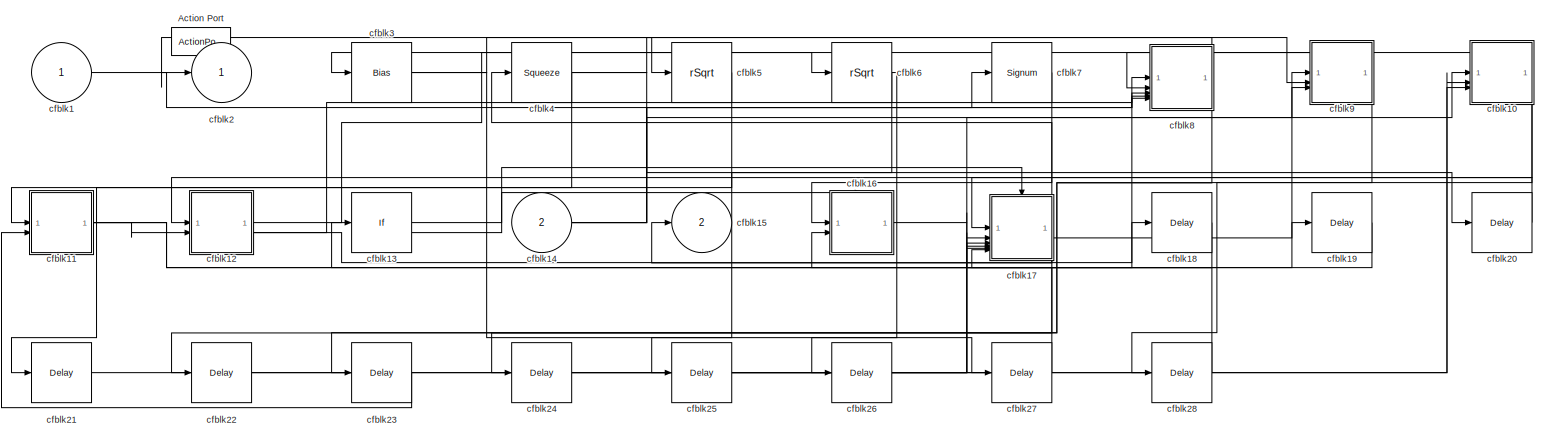
[diagram: cfblk68 - part 1/1, most of the canvas]
BLOCK [SubSystem] cfblk68
  TreatAsAtomicUnit = on
BLOCK [ActionPort] cfblk68/Action Port
  ActionPortLabel = if(u1 >= 0)
BLOCK [Inport] cfblk68/cfblk1
BLOCK [SubSystem] cfblk68/cfblk10
BLOCK [Inport] cfblk68/cfblk10/cfblk1
BLOCK [Inport] cfblk68/cfblk10/cfblk10
  Port = 3
BLOCK [Outport] cfblk68/cfblk10/cfblk11
  Port = 2
BLOCK [Outport] cfblk68/cfblk10/cfblk2
BLOCK [DiscreteFir] cfblk68/cfblk10/cfblk3
  InputPortMap = u0
  OutputPortMap = o0
BLOCK [DiscreteFir] cfblk68/cfblk10/cfblk4
  InputPortMap = u0
  OutputPortMap = o0
BLOCK [Reshape] cfblk68/cfblk10/cfblk5
BLOCK [Reference] cfblk68/cfblk10/cfblk6  REF=simulink/Math
Operations/MinMax
Running
Resettable
  SourceBlock = simulink/Math\nOperations/MinMax\nRunning\nResettable
  SourceType = MinMax Running Resettable
BLOCK [Constant] cfblk68/cfblk10/cfblk7
  SampleTime = 1
  Value = [-350065950.244689]
BLOCK [Constant] cfblk68/cfblk10/cfblk8
  SampleTime = 1
  Value = [197083418.291616]
BLOCK [Inport] cfblk68/cfblk10/cfblk9
  Port = 2
BLOCK [SubSystem] cfblk68/cfblk11
BLOCK [Inport] cfblk68/cfblk11/cfblk1
BLOCK [Squeeze] cfblk68/cfblk11/cfblk10
BLOCK [Signum] cfblk68/cfblk11/cfblk11
BLOCK [Polyval] cfblk68/cfblk11/cfblk12
  Coefs = [ +2.081618890e-019, -1.441693666e-014, +4.719686976e-010, -8.536869453e-006, +1.621573104e-001, -8.087801117e+001 ]
BLOCK [Rounding] cfblk68/cfblk11/cfblk13
BLOCK [Constant] cfblk68/cfblk11/cfblk14
  SampleTime = 1
  Value = [-880048183.362839]
BLOCK [Constant] cfblk68/cfblk11/cfblk15
  SampleTime = 1
  Value = [-452022707.036448]
BLOCK [Inport] cfblk68/cfblk11/cfblk16
  Port = 2
BLOCK [Delay] cfblk68/cfblk11/cfblk17
  InputPortMap = u0
BLOCK [Outport] cfblk68/cfblk11/cfblk2
BLOCK [DiscreteTransferFcn] cfblk68/cfblk11/cfblk3
  InputPortMap = u0
BLOCK [Reference] cfblk68/cfblk11/cfblk4  REF=simulink/Math
Operations/Slider
Gain
  SourceBlock = simulink/Math\nOperations/Slider\nGain
  SourceType = Slider Gain
BLOCK [DotProduct] cfblk68/cfblk11/cfblk5
  OutDataTypeStr = Inherit: Inherit via internal rule
BLOCK [Sum] cfblk68/cfblk11/cfblk6
  IconShape = rectangular
  Inputs = +-
BLOCK [Math] cfblk68/cfblk11/cfblk7
  Operator = mod
BLOCK [Sum] cfblk68/cfblk11/cfblk8
  IconShape = rectangular
  Inputs = +
BLOCK [Product] cfblk68/cfblk11/cfblk9
  Inputs = *
BLOCK [SubSystem] cfblk68/cfblk12
BLOCK [Inport] cfblk68/cfblk12/cfblk1
BLOCK [Outport] cfblk68/cfblk12/cfblk10
  Port = 2
BLOCK [Outport] cfblk68/cfblk12/cfblk2
BLOCK [Reference] cfblk68/cfblk12/cfblk3  REF=slpidlib/PID Controller
  LibrarySourceBlock = simulink/Discrete/Discrete PID Controller
  SourceBlock = slpidlib/PID Controller
  SourceType = PID 1dof
BLOCK [DiscreteIntegrator] cfblk68/cfblk12/cfblk4
  ICPrevOutput = DiscIntNeverNeededParam
  ICPrevScaledInput = DiscIntNeverNeededParam
  InitialConditionSetting = Auto
  SampleTime = -1
BLOCK [Reference] cfblk68/cfblk12/cfblk5  REF=simulink/Math
Operations/Slider
Gain
  SourceBlock = simulink/Math\nOperations/Slider\nGain
  SourceType = Slider Gain
BLOCK [Product] cfblk68/cfblk12/cfblk6
  Inputs = **
BLOCK [Trigonometry] cfblk68/cfblk12/cfblk7
BLOCK [Constant] cfblk68/cfblk12/cfblk8
  SampleTime = 1
  Value = [250218098.711155]
BLOCK [Inport] cfblk68/cfblk12/cfblk9
  Port = 2
BLOCK [If] cfblk68/cfblk13
  IfExpression = u1 >= 0
  SampleTime = 1
BLOCK [Inport] cfblk68/cfblk14
  Port = 2
BLOCK [Outport] cfblk68/cfblk15
  Port = 2
BLOCK [SubSystem] cfblk68/cfblk16
  TreatAsAtomicUnit = on
BLOCK [ActionPort] cfblk68/cfblk16/Action Port
  ActionPortLabel = if(u1 >= 0)
BLOCK [Inport] cfblk68/cfblk16/cfblk1
BLOCK [Delay] cfblk68/cfblk16/cfblk10
  InputPortMap = u0
BLOCK [Outport] cfblk68/cfblk16/cfblk2
BLOCK [DiscreteStateSpace] cfblk68/cfblk16/cfblk3
  SampleTime = -1
BLOCK [DiscreteTransferFcn] cfblk68/cfblk16/cfblk4
  InputPortMap = u0
BLOCK [Delay] cfblk68/cfblk16/cfblk5
  InputPortMap = u0
BLOCK [Sin] cfblk68/cfblk16/cfblk6
  SampleTime = 0
  TimeSource = Use external signal
BLOCK [Sum] cfblk68/cfblk16/cfblk7
  Inputs = |++
BLOCK [Constant] cfblk68/cfblk16/cfblk8
  SampleTime = 1
  Value = [853370977.111059]
BLOCK [Inport] cfblk68/cfblk16/cfblk9
  Port = 2
BLOCK [SubSystem] cfblk68/cfblk17
  TreatAsAtomicUnit = on
BLOCK [ActionPort] cfblk68/cfblk17/Action Port
  ActionPortLabel = else
BLOCK [Inport] cfblk68/cfblk17/cfblk1
BLOCK [Reference] cfblk68/cfblk17/cfblk10  REF=simulink/Math
Operations/Slider
Gain
  SourceBlock = simulink/Math\nOperations/Slider\nGain
  SourceType = Slider Gain
BLOCK [Constant] cfblk68/cfblk17/cfblk11
  SampleTime = 1
  Value = [-104165531.472998]
BLOCK [Inport] cfblk68/cfblk17/cfblk12
  Port = 2
BLOCK [Inport] cfblk68/cfblk17/cfblk13
  Port = 3
BLOCK [Inport] cfblk68/cfblk17/cfblk14
  Port = 4
BLOCK [Inport] cfblk68/cfblk17/cfblk15
  Port = 5
BLOCK [Inport] cfblk68/cfblk17/cfblk16
  Port = 6
BLOCK [Outport] cfblk68/cfblk17/cfblk17
  Port = 2
BLOCK [Outport] cfblk68/cfblk17/cfblk2
BLOCK [DiscreteIntegrator] cfblk68/cfblk17/cfblk3
  ICPrevOutput = DiscIntNeverNeededParam
  ICPrevScaledInput = DiscIntNeverNeededParam
  InitialConditionSetting = Auto
  SampleTime = -1
BLOCK [Delay] cfblk68/cfblk17/cfblk4
  InputPortMap = u0
BLOCK [UnitDelay] cfblk68/cfblk17/cfblk5
  HasFrameUpgradeWarning = on
  SampleTime = -1
BLOCK [Delay] cfblk68/cfblk17/cfblk6
  InputPortMap = u0
BLOCK [Reshape] cfblk68/cfblk17/cfblk7
BLOCK [Product] cfblk68/cfblk17/cfblk8
  Inputs = *
BLOCK [Sqrt] cfblk68/cfblk17/cfblk9
BLOCK [Delay] cfblk68/cfblk18
  InputPortMap = u0
BLOCK [Delay] cfblk68/cfblk19
  InputPortMap = u0
BLOCK [Outport] cfblk68/cfblk2
BLOCK [Delay] cfblk68/cfblk20
  InputPortMap = u0
BLOCK [Delay] cfblk68/cfblk21
  InputPortMap = u0
BLOCK [Delay] cfblk68/cfblk22
  InputPortMap = u0
BLOCK [Delay] cfblk68/cfblk23
  InputPortMap = u0
BLOCK [Delay] cfblk68/cfblk24
  InputPortMap = u0
BLOCK [Delay] cfblk68/cfblk25
  InputPortMap = u0
BLOCK [Delay] cfblk68/cfblk26
  InputPortMap = u0
BLOCK [Delay] cfblk68/cfblk27
  InputPortMap = u0
BLOCK [Delay] cfblk68/cfblk28
  InputPortMap = u0
BLOCK [Bias] cfblk68/cfblk3
  Bias = [-462893623.906433]
  SaturateOnIntegerOverflow = off
BLOCK [Squeeze] cfblk68/cfblk4
BLOCK [Sqrt] cfblk68/cfblk5
  AlgorithmType = Newton-Raphson
  Operator = rSqrt
BLOCK [Sqrt] cfblk68/cfblk6
  AlgorithmType = Newton-Raphson
  Operator = rSqrt
BLOCK [Signum] cfblk68/cfblk7
BLOCK [SubSystem] cfblk68/cfblk8
BLOCK [Inport] cfblk68/cfblk8/cfblk1
BLOCK [Product] cfblk68/cfblk8/cfblk10
BLOCK [Constant] cfblk68/cfblk8/cfblk11
  SampleTime = 1
  Value = [333270874.495410]
BLOCK [Inport] cfblk68/cfblk8/cfblk12
  Port = 2
BLOCK [Inport] cfblk68/cfblk8/cfblk13
  Port = 3
BLOCK [Inport] cfblk68/cfblk8/cfblk14
  Port = 4
BLOCK [Inport] cfblk68/cfblk8/cfblk15
  Port = 5
BLOCK [Outport] cfblk68/cfblk8/cfblk16
  Port = 2
BLOCK [Delay] cfblk68/cfblk8/cfblk17
  InputPortMap = u0
BLOCK [Outport] cfblk68/cfblk8/cfblk2
BLOCK [Reference] cfblk68/cfblk8/cfblk3  REF=simulink/Discrete/Tapped Delay
  SourceBlock = simulink/Discrete/Tapped Delay
  SourceType = Tapped Delay Line
BLOCK [DiscreteIntegrator] cfblk68/cfblk8/cfblk4
  ICPrevOutput = DiscIntNeverNeededParam
  ICPrevScaledInput = DiscIntNeverNeededParam
  InitialConditionSetting = Auto
  SampleTime = -1
BLOCK [Reference] cfblk68/cfblk8/cfblk5  REF=slpidlib/PID Controller
  LibrarySourceBlock = simulink/Discrete/Discrete PID Controller
  SourceBlock = slpidlib/PID Controller
  SourceType = PID 1dof
BLOCK [ComplexToMagnitudeAngle] cfblk68/cfblk8/cfblk6
BLOCK [Bias] cfblk68/cfblk8/cfblk7
  Bias = [652530268.645217]
  SaturateOnIntegerOverflow = off
BLOCK [Trigonometry] cfblk68/cfblk8/cfblk8
BLOCK [Bias] cfblk68/cfblk8/cfblk9
  Bias = [-560973537.760136]
  SaturateOnIntegerOverflow = off
BLOCK [SubSystem] cfblk68/cfblk9
BLOCK [Inport] cfblk68/cfblk9/cfblk1
BLOCK [Outport] cfblk68/cfblk9/cfblk10
  Port = 2
BLOCK [Outport] cfblk68/cfblk9/cfblk2
BLOCK [DiscreteTransferFcn] cfblk68/cfblk9/cfblk3
  InputPortMap = u0
BLOCK [DiscreteFir] cfblk68/cfblk9/cfblk4
  InputPortMap = u0
  OutputPortMap = o0
BLOCK [DiscreteFilter] cfblk68/cfblk9/cfblk5
  InputPortMap = u0
BLOCK [Rounding] cfblk68/cfblk9/cfblk6
BLOCK [Constant] cfblk68/cfblk9/cfblk7
  SampleTime = 1
  Value = [-388374750.638601]
BLOCK [Inport] cfblk68/cfblk9/cfblk8
  Port = 2
BLOCK [Inport] cfblk68/cfblk9/cfblk9
  Port = 3
BLOCK [SubSystem] cfblk69
  TreatAsAtomicUnit = on
BLOCK [ActionPort] cfblk69/Action Port
  ActionPortLabel = else
BLOCK [Inport] cfblk69/cfblk1
BLOCK [SubSystem] cfblk69/cfblk10
BLOCK [Inport] cfblk69/cfblk10/cfblk1
BLOCK [Inport] cfblk69/cfblk10/cfblk10
  Port = 2
BLOCK [Inport] cfblk69/cfblk10/cfblk11
  Port = 3
BLOCK [Outport] cfblk69/cfblk10/cfblk12
  Port = 2
BLOCK [Outport] cfblk69/cfblk10/cfblk13
  Port = 3
BLOCK [Outport] cfblk69/cfblk10/cfblk14
  Port = 4
BLOCK [Outport] cfblk69/cfblk10/cfblk15
  Port = 5
BLOCK [Outport] cfblk69/cfblk10/cfblk2
BLOCK [Reference] cfblk69/cfblk10/cfblk3  REF=simulink/Discrete/Transfer Fcn
Lead or Lag
  SourceBlock = simulink/Discrete/Transfer Fcn\nLead or Lag
  SourceType = Lead or Lag Compensator
BLOCK [DiscreteIntegrator] cfblk69/cfblk10/cfblk4
  ICPrevOutput = DiscIntNeverNeededParam
  ICPrevScaledInput = DiscIntNeverNeededParam
  InitialConditionSetting = Auto
  SampleTime = -1
BLOCK [Reference] cfblk69/cfblk10/cfblk5  REF=slpidlib/PID Controller
  LibrarySourceBlock = simulink/Discrete/Discrete PID Controller
  SourceBlock = slpidlib/PID Controller
  SourceType = PID 1dof
BLOCK [Sum] cfblk69/cfblk10/cfblk6
  IconShape = rectangular
  Inputs = +-
BLOCK [Signum] cfblk69/cfblk10/cfblk7
BLOCK [Rounding] cfblk69/cfblk10/cfblk8
BLOCK [Constant] cfblk69/cfblk10/cfblk9
  SampleTime = 1
  Value = [-94429061.691735]
BLOCK [Inport] cfblk69/cfblk11
  Port = 2
BLOCK [Inport] cfblk69/cfblk12
  Port = 3
BLOCK [Inport] cfblk69/cfblk13
  Port = 4
BLOCK [Delay] cfblk69/cfblk14
  InputPortMap = u0
BLOCK [Outport] cfblk69/cfblk2
BLOCK [DiscreteIntegrator] cfblk69/cfblk3
  ICPrevOutput = DiscIntNeverNeededParam
  ICPrevScaledInput = DiscIntNeverNeededParam
  InitialConditionSetting = Auto
  SampleTime = -1
BLOCK [Product] cfblk69/cfblk4
BLOCK [Sqrt] cfblk69/cfblk5
  AlgorithmType = Newton-Raphson
  Operator = rSqrt
BLOCK [Signum] cfblk69/cfblk6
BLOCK [Constant] cfblk69/cfblk7
  SampleTime = 1
  Value = [-901741778.641720]
BLOCK [Constant] cfblk69/cfblk8
  SampleTime = 1
  Value = [823575877.605597]
BLOCK [SubSystem] cfblk69/cfblk9
BLOCK [Inport] cfblk69/cfblk9/cfblk1
BLOCK [Outport] cfblk69/cfblk9/cfblk2
BLOCK [Delay] cfblk69/cfblk9/cfblk3
  InputPortMap = u0
BLOCK [Reference] cfblk69/cfblk9/cfblk4  REF=simulink/Discrete/Difference
  SourceBlock = simulink/Discrete/Difference
  SourceType = Difference
BLOCK [Reference] cfblk69/cfblk9/cfblk5  REF=slpidlib/PID Controller
  LibrarySourceBlock = simulink/Discrete/Discrete PID Controller
  SourceBlock = slpidlib/PID Controller
  SourceType = PID 1dof
BLOCK [Sum] cfblk69/cfblk9/cfblk6
  Inputs = |++
BLOCK [PermuteDimensions] cfblk69/cfblk9/cfblk7
BLOCK [Constant] cfblk69/cfblk9/cfblk8
  SampleTime = 1
  Value = [197471443.883658]
BLOCK [Outport] cfblk69/cfblk9/cfblk9
  Port = 2
BLOCK [DiscreteTransferFcn] cfblk7
  InputPortMap = u0
  SampleTime = 1
BLOCK [SubSystem] cfblk70
  TreatAsAtomicUnit = on
BLOCK [ActionPort] cfblk70/Action Port
  ActionPortLabel = if(u1 >= 0)
BLOCK [Inport] cfblk70/cfblk1
BLOCK [If] cfblk70/cfblk10
  IfExpression = u1 >= 0
  SampleTime = 1
BLOCK [SubSystem] cfblk70/cfblk11
  TreatAsAtomicUnit = on
BLOCK [ActionPort] cfblk70/cfblk11/Action Port
  ActionPortLabel = if(u1 >= 0)
BLOCK [Inport] cfblk70/cfblk11/cfblk1
BLOCK [Gain] cfblk70/cfblk11/cfblk10
  Gain = [-897312044.459674]
BLOCK [Product] cfblk70/cfblk11/cfblk11
  Inputs = *
BLOCK [Constant] cfblk70/cfblk11/cfblk12
  SampleTime = 1
  Value = [-668153698.247827]
BLOCK [Inport] cfblk70/cfblk11/cfblk13
  Port = 2
BLOCK [Inport] cfblk70/cfblk11/cfblk14
  Port = 3
BLOCK [Outport] cfblk70/cfblk11/cfblk15
  Port = 2
BLOCK [Delay] cfblk70/cfblk11/cfblk16
  InputPortMap = u0
BLOCK [Outport] cfblk70/cfblk11/cfblk2
BLOCK [Delay] cfblk70/cfblk11/cfblk3
  InputPortMap = u0,e6
  ShowEnablePort = on
BLOCK [Reference] cfblk70/cfblk11/cfblk4  REF=simulink/Discrete/Tapped Delay
  SourceBlock = simulink/Discrete/Tapped Delay
  SourceType = Tapped Delay Line
BLOCK [Reference] cfblk70/cfblk11/cfblk5  REF=slpidlib/PID Controller (2DOF)
  LibrarySourceBlock = simulink/Discrete/Discrete PID Controller (2DOF)
  SourceBlock = slpidlib/PID Controller (2DOF)
  SourceType = PID 2dof
BLOCK [UnitDelay] cfblk70/cfblk11/cfblk6
  HasFrameUpgradeWarning = on
  SampleTime = -1
BLOCK [Reference] cfblk70/cfblk11/cfblk7  REF=simulink/Discrete/Tapped Delay
  SourceBlock = simulink/Discrete/Tapped Delay
  SourceType = Tapped Delay Line
BLOCK [Sqrt] cfblk70/cfblk11/cfblk8
BLOCK [Sum] cfblk70/cfblk11/cfblk9
  IconShape = rectangular
  Inputs = +-
BLOCK [SubSystem] cfblk70/cfblk12
  TreatAsAtomicUnit = on
BLOCK [ActionPort] cfblk70/cfblk12/Action Port
  ActionPortLabel = else
BLOCK [Inport] cfblk70/cfblk12/cfblk1
BLOCK [Sum] cfblk70/cfblk12/cfblk10
  IconShape = rectangular
BLOCK [Constant] cfblk70/cfblk12/cfblk11
  SampleTime = 1
  Value = [-176297628.480498]
BLOCK [Constant] cfblk70/cfblk12/cfblk12
  SampleTime = 1
  Value = [-164319181.477685]
BLOCK [Outport] cfblk70/cfblk12/cfblk13
  Port = 2
BLOCK [Delay] cfblk70/cfblk12/cfblk14
  InputPortMap = u0
BLOCK [Delay] cfblk70/cfblk12/cfblk15
  InputPortMap = u0
BLOCK [Outport] cfblk70/cfblk12/cfblk2
BLOCK [UnitDelay] cfblk70/cfblk12/cfblk3
  HasFrameUpgradeWarning = on
  SampleTime = -1
BLOCK [DiscreteTransferFcn] cfblk70/cfblk12/cfblk4
  InputPortMap = u0
BLOCK [DiscreteTransferFcn] cfblk70/cfblk12/cfblk5
  InputPortMap = u0
BLOCK [DiscreteFir] cfblk70/cfblk12/cfblk6
  InputPortMap = u0
  OutputPortMap = o0
BLOCK [DiscreteZeroPole] cfblk70/cfblk12/cfblk7
  Gain = 1
  Poles = [0 0.5]
  SampleTime = -1
BLOCK [Trigonometry] cfblk70/cfblk12/cfblk8
BLOCK [Sum] cfblk70/cfblk12/cfblk9
  Inputs = |++
BLOCK [Delay] cfblk70/cfblk13
  InputPortMap = u0
BLOCK [Delay] cfblk70/cfblk14
  InputPortMap = u0
BLOCK [Delay] cfblk70/cfblk15
  InputPortMap = u0
BLOCK [Delay] cfblk70/cfblk16
  InputPortMap = u0
BLOCK [Delay] cfblk70/cfblk17
  InputPortMap = u0
BLOCK [Delay] cfblk70/cfblk18
  InputPortMap = u0
BLOCK [Delay] cfblk70/cfblk19
  InputPortMap = u0
BLOCK [Outport] cfblk70/cfblk2
BLOCK [Reference] cfblk70/cfblk3  REF=simulink/Discrete/Transfer Fcn
Real Zero
  SourceBlock = simulink/Discrete/Transfer Fcn\nReal Zero
  SourceType = Transfer Fcn Real Zero
BLOCK [Reshape] cfblk70/cfblk4
BLOCK [Math] cfblk70/cfblk5
  Operator = transpose
BLOCK [Rounding] cfblk70/cfblk6
BLOCK [ComplexToMagnitudeAngle] cfblk70/cfblk7
BLOCK [SubSystem] cfblk70/cfblk8
BLOCK [Inport] cfblk70/cfblk8/cfblk1
BLOCK [Product] cfblk70/cfblk8/cfblk10
  Inputs = *
BLOCK [Inport] cfblk70/cfblk8/cfblk11
  Port = 2
BLOCK [Inport] cfblk70/cfblk8/cfblk12
  Port = 3
BLOCK [Inport] cfblk70/cfblk8/cfblk13
  Port = 4
BLOCK [Inport] cfblk70/cfblk8/cfblk14
  Port = 5
BLOCK [Inport] cfblk70/cfblk8/cfblk15
  Port = 6
BLOCK [Outport] cfblk70/cfblk8/cfblk16
  Port = 2
BLOCK [Outport] cfblk70/cfblk8/cfblk2
BLOCK [Reference] cfblk70/cfblk8/cfblk3  REF=slpidlib/PID Controller
  LibrarySourceBlock = simulink/Discrete/Discrete PID Controller
  SourceBlock = slpidlib/PID Controller
  SourceType = PID 1dof
BLOCK [DiscreteTransferFcn] cfblk70/cfblk8/cfblk4
  InputPortMap = u0
BLOCK [Sqrt] cfblk70/cfblk8/cfblk5
BLOCK [Reshape] cfblk70/cfblk8/cfblk6
BLOCK [Reference] cfblk70/cfblk8/cfblk7  REF=simulink/Math
Operations/Slider
Gain
  SourceBlock = simulink/Math\nOperations/Slider\nGain
  SourceType = Slider Gain
BLOCK [Sum] cfblk70/cfblk8/cfblk8
  IconShape = rectangular
  Inputs = +-
BLOCK [ComplexToMagnitudeAngle] cfblk70/cfblk8/cfblk9
BLOCK [SubSystem] cfblk70/cfblk9
BLOCK [Inport] cfblk70/cfblk9/cfblk1
BLOCK [Math] cfblk70/cfblk9/cfblk10
  Operator = pow
BLOCK [Reference] cfblk70/cfblk9/cfblk11  REF=simulink/Math
Operations/Slider
Gain
  SourceBlock = simulink/Math\nOperations/Slider\nGain
  SourceType = Slider Gain
BLOCK [Reshape] cfblk70/cfblk9/cfblk12
BLOCK [Constant] cfblk70/cfblk9/cfblk13
  SampleTime = 1
  Value = [142413612.807524]
BLOCK [Inport] cfblk70/cfblk9/cfblk14
  Port = 2
BLOCK [Inport] cfblk70/cfblk9/cfblk15
  Port = 3
BLOCK [Outport] cfblk70/cfblk9/cfblk16
  Port = 2
BLOCK [Outport] cfblk70/cfblk9/cfblk17
  Port = 3
BLOCK [Delay] cfblk70/cfblk9/cfblk18
  InputPortMap = u0
BLOCK [Outport] cfblk70/cfblk9/cfblk2
BLOCK [Delay] cfblk70/cfblk9/cfblk3
  DelayLengthSource = Input port
  InputPortMap = u0,p1
BLOCK [Reference] cfblk70/cfblk9/cfblk4  REF=simulink/Discrete/Difference
  SourceBlock = simulink/Discrete/Difference
  SourceType = Difference
BLOCK [Reference] cfblk70/cfblk9/cfblk5  REF=simulink/Discrete/Transfer Fcn
First Order
  SourceBlock = simulink/Discrete/Transfer Fcn\nFirst Order
  SourceType = First Order Transfer Fcn
BLOCK [DiscreteIntegrator] cfblk70/cfblk9/cfblk6
  ICPrevOutput = DiscIntNeverNeededParam
  ICPrevScaledInput = DiscIntNeverNeededParam
  InitialConditionSetting = Auto
  SampleTime = -1
BLOCK [Abs] cfblk70/cfblk9/cfblk7
  SaturateOnIntegerOverflow = off
BLOCK [MinMax] cfblk70/cfblk9/cfblk8
  Function = max
BLOCK [Sum] cfblk70/cfblk9/cfblk9
  IconShape = rectangular
  Inputs = +
BLOCK [SubSystem] cfblk71
  TreatAsAtomicUnit = on
BLOCK [ActionPort] cfblk71/Action Port
  ActionPortLabel = else
BLOCK [Inport] cfblk71/cfblk1
BLOCK [SubSystem] cfblk71/cfblk10
BLOCK [Inport] cfblk71/cfblk10/cfblk1
BLOCK [Outport] cfblk71/cfblk10/cfblk2
BLOCK [Delay] cfblk71/cfblk10/cfblk3
  DelayLengthSource = Input port
  InputPortMap = u0,p1
BLOCK [DiscreteZeroPole] cfblk71/cfblk10/cfblk4
  Gain = 1
  Poles = [0 0.5]
  SampleTime = -1
BLOCK [Reference] cfblk71/cfblk10/cfblk5  REF=simulink/Discrete/Transfer Fcn
Lead or Lag
  SourceBlock = simulink/Discrete/Transfer Fcn\nLead or Lag
  SourceType = Lead or Lag Compensator
BLOCK [Inport] cfblk71/cfblk10/cfblk6
  Port = 2
BLOCK [Inport] cfblk71/cfblk10/cfblk7
  Port = 3
BLOCK [Outport] cfblk71/cfblk10/cfblk8
  Port = 2
BLOCK [SubSystem] cfblk71/cfblk11
BLOCK [Inport] cfblk71/cfblk11/cfblk1
BLOCK [Delay] cfblk71/cfblk11/cfblk10
  InputPortMap = u0
BLOCK [Outport] cfblk71/cfblk11/cfblk2
BLOCK [DiscreteFilter] cfblk71/cfblk11/cfblk3
  InputPortMap = u0
BLOCK [Reference] cfblk71/cfblk11/cfblk4  REF=simulink/Discrete/Transfer Fcn
First Order
  SourceBlock = simulink/Discrete/Transfer Fcn\nFirst Order
  SourceType = First Order Transfer Fcn
BLOCK [Product] cfblk71/cfblk11/cfblk5
  Inputs = **
BLOCK [Bias] cfblk71/cfblk11/cfblk6
  Bias = [934727906.329620]
  SaturateOnIntegerOverflow = off
BLOCK [Sum] cfblk71/cfblk11/cfblk7
  Inputs = |++
BLOCK [Constant] cfblk71/cfblk11/cfblk8
  SampleTime = 1
  Value = [307858627.970611]
BLOCK [Outport] cfblk71/cfblk11/cfblk9
  Port = 2
BLOCK [SubSystem] cfblk71/cfblk12
BLOCK [Inport] cfblk71/cfblk12/cfblk1
BLOCK [Outport] cfblk71/cfblk12/cfblk2
BLOCK [Reference] cfblk71/cfblk12/cfblk3  REF=simulink/Discrete/Tapped Delay
  SourceBlock = simulink/Discrete/Tapped Delay
  SourceType = Tapped Delay Line
BLOCK [Reference] cfblk71/cfblk12/cfblk4  REF=simulink/Discrete/Transfer Fcn
Lead or Lag
  SourceBlock = simulink/Discrete/Transfer Fcn\nLead or Lag
  SourceType = Lead or Lag Compensator
BLOCK [Assignment] cfblk71/cfblk12/cfblk5
  DiagnosticForDimensions = Warning
  IndexOptions = Index vector (dialog)
  Indices = 1
  OutputSizes = 1
BLOCK [DotProduct] cfblk71/cfblk12/cfblk6
  OutDataTypeStr = Inherit: Inherit via internal rule
BLOCK [MinMax] cfblk71/cfblk12/cfblk7
  Function = max
  Inputs = 3
BLOCK [Delay] cfblk71/cfblk12/cfblk8
  InputPortMap = u0
BLOCK [Delay] cfblk71/cfblk12/cfblk9
  InputPortMap = u0
BLOCK [SubSystem] cfblk71/cfblk13
BLOCK [Inport] cfblk71/cfblk13/cfblk1
BLOCK [Inport] cfblk71/cfblk13/cfblk10
  Port = 3
BLOCK [Inport] cfblk71/cfblk13/cfblk11
  Port = 4
BLOCK [Outport] cfblk71/cfblk13/cfblk12
  Port = 2
BLOCK [Outport] cfblk71/cfblk13/cfblk13
  Port = 3
BLOCK [Outport] cfblk71/cfblk13/cfblk2
BLOCK [DiscreteTransferFcn] cfblk71/cfblk13/cfblk3
  InputPortMap = u0
BLOCK [Delay] cfblk71/cfblk13/cfblk4
  InputPortMap = u0,e6
  ShowEnablePort = on
BLOCK [Sqrt] cfblk71/cfblk13/cfblk5
BLOCK [Sum] cfblk71/cfblk13/cfblk6
  Inputs = |++
BLOCK [Constant] cfblk71/cfblk13/cfblk7
  SampleTime = 1
  Value = [-775058453.137659]
BLOCK [Constant] cfblk71/cfblk13/cfblk8
  SampleTime = 1
  Value = [-987662963.519045]
BLOCK [Inport] cfblk71/cfblk13/cfblk9
  Port = 2
BLOCK [Outport] cfblk71/cfblk14
  Port = 2
BLOCK [Delay] cfblk71/cfblk15
  InputPortMap = u0
BLOCK [Delay] cfblk71/cfblk16
  InputPortMap = u0
BLOCK [Delay] cfblk71/cfblk17
  InputPortMap = u0
BLOCK [Delay] cfblk71/cfblk18
  InputPortMap = u0
BLOCK [Delay] cfblk71/cfblk19
  InputPortMap = u0
BLOCK [Outport] cfblk71/cfblk2
BLOCK [DiscreteFilter] cfblk71/cfblk3
  InputPortMap = u0
BLOCK [Reshape] cfblk71/cfblk4
BLOCK [Reference] cfblk71/cfblk5  REF=simulink/Math
Operations/MinMax
Running
Resettable
  SourceBlock = simulink/Math\nOperations/MinMax\nRunning\nResettable
  SourceType = MinMax Running Resettable
BLOCK [Sum] cfblk71/cfblk6
  IconShape = rectangular
  Inputs = --
BLOCK [Product] cfblk71/cfblk7
BLOCK [Gain] cfblk71/cfblk8
  Gain = [999538113.063461]
BLOCK [Constant] cfblk71/cfblk9
  SampleTime = 1
  Value = [-83830120.631545]
BLOCK [SubSystem] cfblk72
  TreatAsAtomicUnit = on
BLOCK [ActionPort] cfblk72/Action Port
  ActionPortLabel = if(u1 >= 0)
BLOCK [Inport] cfblk72/cfblk1
BLOCK [Outport] cfblk72/cfblk2
BLOCK [DiscreteFir] cfblk72/cfblk3
  InputPortMap = u0
  OutputPortMap = o0
BLOCK [Bias] cfblk72/cfblk4
  Bias = [987406145.129527]
  SaturateOnIntegerOverflow = off
BLOCK [PermuteDimensions] cfblk72/cfblk5
BLOCK [Signum] cfblk72/cfblk6
BLOCK [SubSystem] cfblk72/cfblk7
BLOCK [Inport] cfblk72/cfblk7/cfblk1
BLOCK [Constant] cfblk72/cfblk7/cfblk10
  SampleTime = 1
  Value = [647207213.320964]
BLOCK [Constant] cfblk72/cfblk7/cfblk11
  SampleTime = 1
  Value = [-478479077.965112]
BLOCK [Inport] cfblk72/cfblk7/cfblk12
  Port = 2
BLOCK [Inport] cfblk72/cfblk7/cfblk13
  Port = 3
BLOCK [Inport] cfblk72/cfblk7/cfblk14
  Port = 4
BLOCK [Outport] cfblk72/cfblk7/cfblk2
BLOCK [Product] cfblk72/cfblk7/cfblk3
  Inputs = **
BLOCK [Abs] cfblk72/cfblk7/cfblk4
  SaturateOnIntegerOverflow = off
BLOCK [Sqrt] cfblk72/cfblk7/cfblk5
BLOCK [Math] cfblk72/cfblk7/cfblk6
  Operator = hypot
BLOCK [Constant] cfblk72/cfblk7/cfblk7
  SampleTime = 1
  Value = [321623446.611575]
BLOCK [Constant] cfblk72/cfblk7/cfblk8
  SampleTime = 1
  Value = [421753285.902986]
BLOCK [Constant] cfblk72/cfblk7/cfblk9
  SampleTime = 1
  Value = [713801063.738516]
BLOCK [Delay] cfblk72/cfblk8
  InputPortMap = u0
BLOCK [Delay] cfblk72/cfblk9
  InputPortMap = u0
BLOCK [SubSystem] cfblk73
  TreatAsAtomicUnit = on
BLOCK [ActionPort] cfblk73/Action Port
  ActionPortLabel = else
BLOCK [Inport] cfblk73/cfblk1
BLOCK [Inport] cfblk73/cfblk10
  Port = 2
BLOCK [SubSystem] cfblk73/cfblk11
  TreatAsAtomicUnit = on
BLOCK [ActionPort] cfblk73/cfblk11/Action Port
  ActionPortLabel = if(u1 >= 0)
BLOCK [Inport] cfblk73/cfblk11/cfblk1
BLOCK [Outport] cfblk73/cfblk11/cfblk10
  Port = 2
BLOCK [Outport] cfblk73/cfblk11/cfblk2
BLOCK [Abs] cfblk73/cfblk11/cfblk3
  SaturateOnIntegerOverflow = off
BLOCK [Rounding] cfblk73/cfblk11/cfblk4
BLOCK [Sqrt] cfblk73/cfblk11/cfblk5
BLOCK [Sqrt] cfblk73/cfblk11/cfblk6
  AlgorithmType = Newton-Raphson
  Operator = rSqrt
BLOCK [Inport] cfblk73/cfblk11/cfblk7
  Port = 2
BLOCK [Inport] cfblk73/cfblk11/cfblk8
  Port = 3
BLOCK [Inport] cfblk73/cfblk11/cfblk9
  Port = 4
BLOCK [SubSystem] cfblk73/cfblk12
  TreatAsAtomicUnit = on
BLOCK [ActionPort] cfblk73/cfblk12/Action Port
  ActionPortLabel = else
BLOCK [Inport] cfblk73/cfblk12/cfblk1
BLOCK [Inport] cfblk73/cfblk12/cfblk10
  Port = 2
BLOCK [Inport] cfblk73/cfblk12/cfblk11
  Port = 3
BLOCK [Inport] cfblk73/cfblk12/cfblk12
  Port = 4
BLOCK [Inport] cfblk73/cfblk12/cfblk13
  Port = 5
BLOCK [Outport] cfblk73/cfblk12/cfblk14
  Port = 2
BLOCK [Outport] cfblk73/cfblk12/cfblk2
BLOCK [Sum] cfblk73/cfblk12/cfblk3
  IconShape = rectangular
  Inputs = +-
BLOCK [ComplexToRealImag] cfblk73/cfblk12/cfblk4
BLOCK [Reshape] cfblk73/cfblk12/cfblk5
BLOCK [Sum] cfblk73/cfblk12/cfblk6
  IconShape = rectangular
  Inputs = +
BLOCK [Constant] cfblk73/cfblk12/cfblk7
  SampleTime = 1
  Value = [-222093048.629616]
BLOCK [Constant] cfblk73/cfblk12/cfblk8
  SampleTime = 1
  Value = [613543591.638104]
BLOCK [Constant] cfblk73/cfblk12/cfblk9
  SampleTime = 1
  Value = [-623143330.056059]
BLOCK [Delay] cfblk73/cfblk13
  InputPortMap = u0
BLOCK [Delay] cfblk73/cfblk14
  InputPortMap = u0
BLOCK [Delay] cfblk73/cfblk15
  InputPortMap = u0
BLOCK [Delay] cfblk73/cfblk16
  InputPortMap = u0
BLOCK [Delay] cfblk73/cfblk17
  InputPortMap = u0
BLOCK [Delay] cfblk73/cfblk18
  InputPortMap = u0
BLOCK [Outport] cfblk73/cfblk2
BLOCK [DiscreteStateSpace] cfblk73/cfblk3
  SampleTime = -1
BLOCK [Reference] cfblk73/cfblk4  REF=simulink/Discrete/Tapped Delay
  SourceBlock = simulink/Discrete/Tapped Delay
  SourceType = Tapped Delay Line
BLOCK [Reference] cfblk73/cfblk5  REF=simulink/Discrete/Tapped Delay
  SourceBlock = simulink/Discrete/Tapped Delay
  SourceType = Tapped Delay Line
BLOCK [DiscreteIntegrator] cfblk73/cfblk6
  ICPrevOutput = DiscIntNeverNeededParam
  ICPrevScaledInput = DiscIntNeverNeededParam
  InitialConditionSetting = Auto
  SampleTime = -1
BLOCK [Squeeze] cfblk73/cfblk7
BLOCK [SubSystem] cfblk73/cfblk8
BLOCK [Inport] cfblk73/cfblk8/cfblk1
BLOCK [Product] cfblk73/cfblk8/cfblk10
BLOCK [MinMax] cfblk73/cfblk8/cfblk11
  Function = max
BLOCK [Trigonometry] cfblk73/cfblk8/cfblk12
BLOCK [Assignment] cfblk73/cfblk8/cfblk13
  DiagnosticForDimensions = Warning
  IndexOptions = Index vector (dialog)
  Indices = 1
  OutputSizes = 1
BLOCK [Constant] cfblk73/cfblk8/cfblk14
  SampleTime = 1
  Value = [-992238908.008428]
BLOCK [Outport] cfblk73/cfblk8/cfblk15
  Port = 2
BLOCK [Delay] cfblk73/cfblk8/cfblk16
  InputPortMap = u0
BLOCK [Delay] cfblk73/cfblk8/cfblk17
  InputPortMap = u0
BLOCK [Outport] cfblk73/cfblk8/cfblk2
BLOCK [Reference] cfblk73/cfblk8/cfblk3  REF=simulink/Discrete/Transfer Fcn
First Order
  SourceBlock = simulink/Discrete/Transfer Fcn\nFirst Order
  SourceType = First Order Transfer Fcn
BLOCK [DiscreteFir] cfblk73/cfblk8/cfblk4
  InputPortMap = u0
  OutputPortMap = o0
BLOCK [DiscreteFir] cfblk73/cfblk8/cfblk5
  InputPortMap = u0
  OutputPortMap = o0
BLOCK [Product] cfblk73/cfblk8/cfblk6
BLOCK [Rounding] cfblk73/cfblk8/cfblk7
BLOCK [PermuteDimensions] cfblk73/cfblk8/cfblk8
BLOCK [Reshape] cfblk73/cfblk8/cfblk9
BLOCK [If] cfblk73/cfblk9
  IfExpression = u1 >= 0
  SampleTime = 1
BLOCK [SubSystem] cfblk74
  TreatAsAtomicUnit = on
BLOCK [ActionPort] cfblk74/Action Port
  ActionPortLabel = if(u1 >= 0)
BLOCK [Inport] cfblk74/cfblk1
BLOCK [Inport] cfblk74/cfblk10
  Port = 2
BLOCK [Inport] cfblk74/cfblk11
  Port = 3
BLOCK [Outport] cfblk74/cfblk12
  Port = 2
BLOCK [Delay] cfblk74/cfblk13
  InputPortMap = u0
BLOCK [Outport] cfblk74/cfblk2
BLOCK [Reference] cfblk74/cfblk3  REF=slpidlib/PID Controller
  LibrarySourceBlock = simulink/Discrete/Discrete PID Controller
  SourceBlock = slpidlib/PID Controller
  SourceType = PID 1dof
BLOCK [DiscreteFir] cfblk74/cfblk4
  InputPortMap = u0
  OutputPortMap = o0
BLOCK [MinMax] cfblk74/cfblk5
  Function = max
  Inputs = 2
BLOCK [ComplexToMagnitudeAngle] cfblk74/cfblk6
BLOCK [ComplexToMagnitudeAngle] cfblk74/cfblk7
BLOCK [Abs] cfblk74/cfblk8
  SaturateOnIntegerOverflow = off
BLOCK [Sum] cfblk74/cfblk9
  Inputs = |++
BLOCK [SubSystem] cfblk75
  TreatAsAtomicUnit = on
BLOCK [ActionPort] cfblk75/Action Port
  ActionPortLabel = else
BLOCK [Inport] cfblk75/cfblk1
BLOCK [SubSystem] cfblk75/cfblk10
BLOCK [Inport] cfblk75/cfblk10/cfblk1
BLOCK [Constant] cfblk75/cfblk10/cfblk10
  SampleTime = 1
  Value = [24741390.170785]
BLOCK [Constant] cfblk75/cfblk10/cfblk11
  SampleTime = 1
  Value = [497010053.858313]
BLOCK [Inport] cfblk75/cfblk10/cfblk12
  Port = 2
BLOCK [Inport] cfblk75/cfblk10/cfblk13
  Port = 3
BLOCK [Outport] cfblk75/cfblk10/cfblk14
  Port = 2
BLOCK [Outport] cfblk75/cfblk10/cfblk15
  Port = 3
BLOCK [Outport] cfblk75/cfblk10/cfblk2
BLOCK [Reference] cfblk75/cfblk10/cfblk3  REF=simulink/Discrete/Transfer Fcn
First Order
  SourceBlock = simulink/Discrete/Transfer Fcn\nFirst Order
  SourceType = First Order Transfer Fcn
BLOCK [Reshape] cfblk75/cfblk10/cfblk4
BLOCK [Product] cfblk75/cfblk10/cfblk5
  Inputs = *
BLOCK [Squeeze] cfblk75/cfblk10/cfblk6
BLOCK [Math] cfblk75/cfblk10/cfblk7
  Operator = magnitude^2
BLOCK [Bias] cfblk75/cfblk10/cfblk8
  Bias = [-279727311.978722]
  SaturateOnIntegerOverflow = off
BLOCK [Reshape] cfblk75/cfblk10/cfblk9
BLOCK [SubSystem] cfblk75/cfblk11
BLOCK [Inport] cfblk75/cfblk11/cfblk1
BLOCK [Inport] cfblk75/cfblk11/cfblk10
  Port = 5
BLOCK [Inport] cfblk75/cfblk11/cfblk11
  Port = 6
BLOCK [Outport] cfblk75/cfblk11/cfblk12
  Port = 2
BLOCK [Outport] cfblk75/cfblk11/cfblk13
  Port = 3
BLOCK [Outport] cfblk75/cfblk11/cfblk2
BLOCK [Reference] cfblk75/cfblk11/cfblk3  REF=simulink/Discrete/Difference
  SourceBlock = simulink/Discrete/Difference
  SourceType = Difference
BLOCK [Sum] cfblk75/cfblk11/cfblk4
  IconShape = rectangular
  Inputs = +-
BLOCK [Sum] cfblk75/cfblk11/cfblk5
  IconShape = rectangular
  Inputs = +-
BLOCK [Sqrt] cfblk75/cfblk11/cfblk6
  AlgorithmType = Newton-Raphson
  Operator = rSqrt
BLOCK [Inport] cfblk75/cfblk11/cfblk7
  Port = 2
BLOCK [Inport] cfblk75/cfblk11/cfblk8
  Port = 3
BLOCK [Inport] cfblk75/cfblk11/cfblk9
  Port = 4
BLOCK [SubSystem] cfblk75/cfblk12
BLOCK [Inport] cfblk75/cfblk12/cfblk1
BLOCK [Sum] cfblk75/cfblk12/cfblk10
  IconShape = rectangular
  Inputs = +-
BLOCK [Sum] cfblk75/cfblk12/cfblk11
  IconShape = rectangular
  Inputs = +
BLOCK [Constant] cfblk75/cfblk12/cfblk12
  SampleTime = 1
  Value = [443868331.899446]
BLOCK [Constant] cfblk75/cfblk12/cfblk13
  SampleTime = 1
  Value = [178488274.873172]
BLOCK [Constant] cfblk75/cfblk12/cfblk14
  SampleTime = 1
  Value = [372874957.219782]
BLOCK [Constant] cfblk75/cfblk12/cfblk15
  SampleTime = 1
  Value = [-517357038.858393]
BLOCK [Inport] cfblk75/cfblk12/cfblk16
  Port = 2
BLOCK [Outport] cfblk75/cfblk12/cfblk17
  Port = 2
BLOCK [Delay] cfblk75/cfblk12/cfblk18
  InputPortMap = u0
BLOCK [Outport] cfblk75/cfblk12/cfblk2
BLOCK [Reference] cfblk75/cfblk12/cfblk3  REF=slpidlib/PID Controller
  LibrarySourceBlock = simulink/Discrete/Discrete PID Controller
  SourceBlock = slpidlib/PID Controller
  SourceType = PID 1dof
BLOCK [Delay] cfblk75/cfblk12/cfblk4
  InputPortMap = u0
BLOCK [Reference] cfblk75/cfblk12/cfblk5  REF=simulink/Discrete/Transfer Fcn
Lead or Lag
  SourceBlock = simulink/Discrete/Transfer Fcn\nLead or Lag
  SourceType = Lead or Lag Compensator
BLOCK [Reference] cfblk75/cfblk12/cfblk6  REF=simulink/Discrete/Transfer Fcn
Real Zero
  SourceBlock = simulink/Discrete/Transfer Fcn\nReal Zero
  SourceType = Transfer Fcn Real Zero
BLOCK [Sum] cfblk75/cfblk12/cfblk7
  IconShape = rectangular
  Inputs = +-
BLOCK [Sum] cfblk75/cfblk12/cfblk8
  IconShape = rectangular
  Inputs = +-
BLOCK [DotProduct] cfblk75/cfblk12/cfblk9
  OutDataTypeStr = Inherit: Inherit via internal rule
BLOCK [SubSystem] cfblk75/cfblk13
BLOCK [Inport] cfblk75/cfblk13/cfblk1
BLOCK [Inport] cfblk75/cfblk13/cfblk10
  Port = 3
BLOCK [Inport] cfblk75/cfblk13/cfblk11
  Port = 4
BLOCK [Inport] cfblk75/cfblk13/cfblk12
  Port = 5
BLOCK [Outport] cfblk75/cfblk13/cfblk13
  Port = 2
BLOCK [Outport] cfblk75/cfblk13/cfblk14
  Port = 3
BLOCK [Outport] cfblk75/cfblk13/cfblk15
  Port = 4
BLOCK [Delay] cfblk75/cfblk13/cfblk16
  InputPortMap = u0
BLOCK [Outport] cfblk75/cfblk13/cfblk2
BLOCK [Reference] cfblk75/cfblk13/cfblk3  REF=slpidlib/PID Controller (2DOF)
  LibrarySourceBlock = simulink/Discrete/Discrete PID Controller (2DOF)
  SourceBlock = slpidlib/PID Controller (2DOF)
  SourceType = PID 2dof
BLOCK [Delay] cfblk75/cfblk13/cfblk4
  DelayLengthSource = Input port
  InputPortMap = u0,p1
BLOCK [Sum] cfblk75/cfblk13/cfblk5
  IconShape = rectangular
  Inputs = +-
BLOCK [ComplexToMagnitudeAngle] cfblk75/cfblk13/cfblk6
BLOCK [Polyval] cfblk75/cfblk13/cfblk7
  Coefs = [ +2.081618890e-019, -1.441693666e-014, +4.719686976e-010, -8.536869453e-006, +1.621573104e-001, -8.087801117e+001 ]
BLOCK [UnaryMinus] cfblk75/cfblk13/cfblk8
BLOCK [Inport] cfblk75/cfblk13/cfblk9
  Port = 2
BLOCK [SubSystem] cfblk75/cfblk14
BLOCK [Inport] cfblk75/cfblk14/cfblk1
BLOCK [Sqrt] cfblk75/cfblk14/cfblk10
  AlgorithmType = Newton-Raphson
  Operator = rSqrt
BLOCK [Product] cfblk75/cfblk14/cfblk11
  Inputs = *
BLOCK [Constant] cfblk75/cfblk14/cfblk12
  SampleTime = 1
  Value = [-981218713.480093]
BLOCK [Constant] cfblk75/cfblk14/cfblk13
  SampleTime = 1
  Value = [-788721176.414176]
BLOCK [Outport] cfblk75/cfblk14/cfblk14
  Port = 2
BLOCK [Delay] cfblk75/cfblk14/cfblk15
  InputPortMap = u0
BLOCK [Outport] cfblk75/cfblk14/cfblk2
BLOCK [Reference] cfblk75/cfblk14/cfblk3  REF=simulink/Discrete/Difference
  SourceBlock = simulink/Discrete/Difference
  SourceType = Difference
BLOCK [Delay] cfblk75/cfblk14/cfblk4
  DelayLengthSource = Input port
  InputPortMap = u0,p1
BLOCK [Product] cfblk75/cfblk14/cfblk5
  Inputs = **
BLOCK [Product] cfblk75/cfblk14/cfblk6
BLOCK [Polyval] cfblk75/cfblk14/cfblk7
  Coefs = [ +2.081618890e-019, -1.441693666e-014, +4.719686976e-010, -8.536869453e-006, +1.621573104e-001, -8.087801117e+001 ]
BLOCK [Squeeze] cfblk75/cfblk14/cfblk8
BLOCK [Squeeze] cfblk75/cfblk14/cfblk9
BLOCK [SubSystem] cfblk75/cfblk15
BLOCK [Inport] cfblk75/cfblk15/cfblk1
BLOCK [Outport] cfblk75/cfblk15/cfblk2
BLOCK [Rounding] cfblk75/cfblk15/cfblk3
BLOCK [Reshape] cfblk75/cfblk15/cfblk4
BLOCK [Sum] cfblk75/cfblk15/cfblk5
  IconShape = rectangular
  Inputs = +-
BLOCK [PermuteDimensions] cfblk75/cfblk15/cfblk6
BLOCK [Inport] cfblk75/cfblk15/cfblk7
  Port = 2
BLOCK [Outport] cfblk75/cfblk15/cfblk8
  Port = 2
BLOCK [Outport] cfblk75/cfblk15/cfblk9
  Port = 3
BLOCK [Inport] cfblk75/cfblk16
  Port = 2
BLOCK [Delay] cfblk75/cfblk17
  InputPortMap = u0
BLOCK [Delay] cfblk75/cfblk18
  InputPortMap = u0
BLOCK [Delay] cfblk75/cfblk19
  InputPortMap = u0
BLOCK [Outport] cfblk75/cfblk2
BLOCK [DiscreteTransferFcn] cfblk75/cfblk3
  InputPortMap = u0
BLOCK [Delay] cfblk75/cfblk4
  DelayLengthSource = Input port
  InputPortMap = u0,p1
BLOCK [Delay] cfblk75/cfblk5
  DelayLengthSource = Input port
  InputPortMap = u0,p1
BLOCK [Reference] cfblk75/cfblk6  REF=simulink/Discrete/Tapped Delay
  SourceBlock = simulink/Discrete/Tapped Delay
  SourceType = Tapped Delay Line
BLOCK [Constant] cfblk75/cfblk7
  SampleTime = 1
  Value = [205647101.588763]
BLOCK [Constant] cfblk75/cfblk8
  SampleTime = 1
  Value = [-693633274.168443]
BLOCK [Constant] cfblk75/cfblk9
  SampleTime = 1
  Value = [133636124.948497]
BLOCK [Delay] cfblk76
  InputPortMap = u0
  SampleTime = 1
BLOCK [Delay] cfblk77
  InputPortMap = u0
  SampleTime = 1
BLOCK [Delay] cfblk78
  InputPortMap = u0
  SampleTime = 1
BLOCK [Delay] cfblk79
  InputPortMap = u0
  SampleTime = 1
BLOCK [DiscreteFir] cfblk8
  InputPortMap = u0
  OutputPortMap = o0
  SampleTime = 1
BLOCK [Delay] cfblk80
  InputPortMap = u0
  SampleTime = 1
BLOCK [Delay] cfblk81
  InputPortMap = u0
  SampleTime = 1
BLOCK [Delay] cfblk82
  InputPortMap = u0
  SampleTime = 1
BLOCK [Delay] cfblk83
  InputPortMap = u0
  SampleTime = 1
BLOCK [Delay] cfblk84
  InputPortMap = u0
  SampleTime = 1
BLOCK [Delay] cfblk85
  InputPortMap = u0
  SampleTime = 1
BLOCK [DiscreteFir] cfblk9
  InputPortMap = u0
  OutputPortMap = o0
  SampleTime = 1
LINE cfblk10:1 -> cfblk82:1
LINE cfblk11:1 -> cfblk61:1
LINE cfblk12:1 -> cfblk84:1
LINE cfblk13:1 -> cfblk24:1
LINE cfblk14:1 -> cfblk6:1
NET cfblk15:1 -> cfblk32:1, cfblk56:1
NET cfblk16:1 -> cfblk57:2, cfblk63:2
LINE cfblk17:1 -> cfblk37:1
NET cfblk18:1 -> cfblk62:3, cfblk9:1
LINE cfblk19:1 -> cfblk72:1
LINE cfblk19:2 -> cfblk54:1
NET cfblk1:1 -> cfblk35:1, cfblk59:1, cfblk59:3
LINE cfblk20:1 -> cfblk17:1
NET cfblk21:1 -> cfblk73:1, cfblk74:1
LINE cfblk22:1 -> cfblk18:1
LINE cfblk23:1 -> cfblk69:3
NET cfblk2:1 -> cfblk33:1, cfblk34:1, cfblk62:2
NET cfblk39:1 -> cfblk23:1, cfblk52:1, cfblk54:4, cfblk59:2
LINE cfblk3:1 -> cfblk58:3
LINE cfblk40:1 -> cfblk25:1
NET cfblk41:1 -> cfblk51:1, cfblk56:2
NET cfblk42:1 -> cfblk66:1, cfblk74:2, cfblk75:2
LINE cfblk43:1 -> cfblk64:1
LINE cfblk44:1 -> cfblk5:1
NET cfblk45:1 -> cfblk62:1, cfblk62:4
LINE cfblk46:1 -> cfblk50:2
LINE cfblk47:1 -> cfblk11:1
LINE cfblk48:1 -> cfblk73:2
NET cfblk49:1 -> cfblk54:3, cfblk65:1, cfblk70:1
LINE cfblk4:1 -> cfblk22:1
LINE cfblk50/cfblk10:1 -> cfblk50/cfblk5:1
LINE cfblk50/cfblk11/cfblk12:1 -> cfblk50/cfblk11/cfblk4:2
LINE cfblk50/cfblk11/cfblk13:1 -> cfblk50/cfblk11/cfblk4:1
LINE cfblk50/cfblk11/cfblk17:1 -> cfblk50/cfblk11/cfblk3:1
LINE cfblk50/cfblk11/cfblk1:1 -> cfblk50/cfblk11/cfblk6:1
LINE cfblk50/cfblk11/cfblk3:1 -> cfblk50/cfblk11/cfblk5:1
LINE cfblk50/cfblk11/cfblk4:1 -> cfblk50/cfblk11/cfblk7:1
LINE cfblk50/cfblk11/cfblk5:1 -> cfblk50/cfblk11/cfblk17:1
LINE cfblk50/cfblk11/cfblk6:1 -> cfblk50/cfblk11/cfblk15:1
LINE cfblk50/cfblk11/cfblk7:1 -> cfblk50/cfblk11/cfblk2:1
LINE cfblk50/cfblk11/cfblk8:1 -> cfblk50/cfblk11/cfblk16:1
LINE cfblk50/cfblk11:1 -> cfblk50/cfblk18:1
LINE cfblk50/cfblk11:2 -> cfblk50/cfblk2:1
NET cfblk50/cfblk11:3 -> cfblk50/cfblk19:1, cfblk50/cfblk20:1, cfblk50/cfblk21:1
LINE cfblk50/cfblk12/cfblk1:1 -> cfblk50/cfblk12/cfblk5:1
LINE cfblk50/cfblk12/cfblk3:1 -> cfblk50/cfblk12/cfblk4:1
LINE cfblk50/cfblk12/cfblk5:1 -> cfblk50/cfblk12/cfblk2:1
LINE cfblk50/cfblk12/cfblk6:1 -> cfblk50/cfblk12/cfblk3:1
LINE cfblk50/cfblk12/cfblk7:1 -> cfblk50/cfblk12/cfblk6:1
LINE cfblk50/cfblk12:1 -> cfblk50/cfblk7:1
LINE cfblk50/cfblk13:1 -> cfblk50/cfblk16:ifaction
LINE cfblk50/cfblk13:2 -> cfblk50/cfblk17:ifaction
NET cfblk50/cfblk14:1 -> cfblk50/cfblk11:4, cfblk50/cfblk8:2
LINE cfblk50/cfblk15:1 -> cfblk50/cfblk11:2
LINE cfblk50/cfblk16/cfblk10:1 -> cfblk50/cfblk16/cfblk3:1
LINE cfblk50/cfblk16/cfblk11:1 -> cfblk50/cfblk16/cfblk7:2
LINE cfblk50/cfblk16/cfblk12:1 -> cfblk50/cfblk16/cfblk6:1
LINE cfblk50/cfblk16/cfblk1:1 -> cfblk50/cfblk16/cfblk6:2
LINE cfblk50/cfblk16/cfblk3:1 -> cfblk50/cfblk16/cfblk7:1
LINE cfblk50/cfblk16/cfblk4:1 -> cfblk50/cfblk16/cfblk2:1
LINE cfblk50/cfblk16/cfblk5:1 -> cfblk50/cfblk16/cfblk12:1
LINE cfblk50/cfblk16/cfblk6:1 -> cfblk50/cfblk16/cfblk5:1
LINE cfblk50/cfblk16/cfblk7:1 -> cfblk50/cfblk16/cfblk4:2
LINE cfblk50/cfblk16/cfblk8:1 -> cfblk50/cfblk16/cfblk3:2
LINE cfblk50/cfblk16/cfblk9:1 -> cfblk50/cfblk16/cfblk4:1
LINE cfblk50/cfblk16:1 -> cfblk50/cfblk17:2
LINE cfblk50/cfblk17/cfblk10:1 -> cfblk50/cfblk17/cfblk7:1
LINE cfblk50/cfblk17/cfblk11:1 -> cfblk50/cfblk17/cfblk5:1
LINE cfblk50/cfblk17/cfblk4:1 -> cfblk50/cfblk17/cfblk2:1
LINE cfblk50/cfblk17/cfblk7:1 -> cfblk50/cfblk17/cfblk6:1
LINE cfblk50/cfblk17/cfblk8:1 -> cfblk50/cfblk17/cfblk4:1
LINE cfblk50/cfblk17/cfblk9:1 -> cfblk50/cfblk17/cfblk3:1
LINE cfblk50/cfblk17:1 -> cfblk50/cfblk11:1
LINE cfblk50/cfblk18:1 -> cfblk50/cfblk17:1
LINE cfblk50/cfblk19:1 -> cfblk50/cfblk16:3
LINE cfblk50/cfblk1:1 -> cfblk50/cfblk12:1
LINE cfblk50/cfblk20:1 -> cfblk50/cfblk17:3
LINE cfblk50/cfblk21:1 -> cfblk50/cfblk7:2
NET cfblk50/cfblk3:1 -> cfblk50/cfblk11:5, cfblk50/cfblk6:1
LINE cfblk50/cfblk4:1 -> cfblk50/cfblk8:1
NET cfblk50/cfblk5:1 -> cfblk50/cfblk11:6, cfblk50/cfblk16:2
NET cfblk50/cfblk6:1 -> cfblk50/cfblk11:3, cfblk50/cfblk4:1
LINE cfblk50/cfblk7:1 -> cfblk50/cfblk3:1
LINE cfblk50/cfblk8:1 -> cfblk50/cfblk16:1
LINE cfblk50/cfblk9:1 -> cfblk50/cfblk13:1
NET cfblk50:1 -> cfblk2:1, cfblk7:1
LINE cfblk51/cfblk1:1 -> cfblk51/cfblk3:2
LINE cfblk51/cfblk3:1 -> cfblk51/cfblk2:1
NET cfblk51/cfblk4:1 -> cfblk51/cfblk5:2, cfblk51/cfblk7:1
NET cfblk51/cfblk5:1 -> cfblk51/cfblk3:1, cfblk51/cfblk8:1
LINE cfblk51/cfblk6:1 -> cfblk51/cfblk5:1
LINE cfblk51/cfblk8:1 -> cfblk51/cfblk4:1
LINE cfblk51:1 -> cfblk1:1
LINE cfblk51:2 -> cfblk60:1
LINE cfblk52/cfblk10:1 -> cfblk52/cfblk5:1
LINE cfblk52/cfblk11:1 -> cfblk52/cfblk2:1
LINE cfblk52/cfblk12/cfblk1:1 -> cfblk52/cfblk12/cfblk3:2
LINE cfblk52/cfblk12/cfblk3:1 -> cfblk52/cfblk12/cfblk5:1
LINE cfblk52/cfblk12/cfblk5:1 -> cfblk52/cfblk12/cfblk4:1
LINE cfblk52/cfblk12/cfblk6:1 -> cfblk52/cfblk12/cfblk2:1
LINE cfblk52/cfblk12/cfblk7:1 -> cfblk52/cfblk12/cfblk3:1
LINE cfblk52/cfblk12:1 -> cfblk52/cfblk13:1
LINE cfblk52/cfblk13/cfblk10:1 -> cfblk52/cfblk13/cfblk5:1
LINE cfblk52/cfblk13/cfblk11:1 -> cfblk52/cfblk13/cfblk3:1
LINE cfblk52/cfblk13/cfblk12:1 -> cfblk52/cfblk13/cfblk8:1
NET cfblk52/cfblk13/cfblk13:1 -> cfblk52/cfblk13/cfblk2:1, cfblk52/cfblk13/cfblk7:1
NET cfblk52/cfblk13/cfblk1:1 -> cfblk52/cfblk13/cfblk4:1, cfblk52/cfblk13/cfblk6:1
LINE cfblk52/cfblk13/cfblk3:1 -> cfblk52/cfblk13/cfblk14:1
LINE cfblk52/cfblk13/cfblk4:1 -> cfblk52/cfblk13/cfblk11:2
LINE cfblk52/cfblk13/cfblk5:1 -> cfblk52/cfblk13/cfblk11:1
LINE cfblk52/cfblk13/cfblk6:1 -> cfblk52/cfblk13/cfblk10:1
LINE cfblk52/cfblk13/cfblk7:1 -> cfblk52/cfblk13/cfblk9:2
NET cfblk52/cfblk13/cfblk8:1 -> cfblk52/cfblk13/cfblk6:2, cfblk52/cfblk13/cfblk9:1
LINE cfblk52/cfblk13/cfblk9:1 -> cfblk52/cfblk13/cfblk10:2
LINE cfblk52/cfblk13:1 -> cfblk52/cfblk4:1
LINE cfblk52/cfblk13:2 -> cfblk52/cfblk7:1
LINE cfblk52/cfblk14/cfblk5:1 -> cfblk52/cfblk14/cfblk3:1
LINE cfblk52/cfblk14/cfblk6:1 -> cfblk52/cfblk14/cfblk5:1
LINE cfblk52/cfblk14/cfblk7:1 -> cfblk52/cfblk14/cfblk2:1
LINE cfblk52/cfblk14/cfblk8:1 -> cfblk52/cfblk14/cfblk4:1
LINE cfblk52/cfblk14/cfblk9:1 -> cfblk52/cfblk14/cfblk6:1
LINE cfblk52/cfblk14:1 -> cfblk52/cfblk12:2
LINE cfblk52/cfblk15:1 -> cfblk52/cfblk13:2
LINE cfblk52/cfblk16:1 -> cfblk52/cfblk12:1
LINE cfblk52/cfblk17:1 -> cfblk52/cfblk14:2
LINE cfblk52/cfblk18:1 -> cfblk52/cfblk14:1
LINE cfblk52/cfblk1:1 -> cfblk52/cfblk9:1
LINE cfblk52/cfblk3:1 -> cfblk52/cfblk18:1
LINE cfblk52/cfblk4:1 -> cfblk52/cfblk17:1
LINE cfblk52/cfblk5:1 -> cfblk52/cfblk6:1
LINE cfblk52/cfblk7:1 -> cfblk52/cfblk8:1
LINE cfblk52/cfblk8:1 -> cfblk52/cfblk3:1
LINE cfblk52/cfblk9:1 -> cfblk52/cfblk14:3
LINE cfblk52:1 -> cfblk35:2
LINE cfblk53/cfblk10/cfblk10:1 -> cfblk53/cfblk10/cfblk17:1
LINE cfblk53/cfblk10/cfblk11:1 -> cfblk53/cfblk10/cfblk3:1
LINE cfblk53/cfblk10/cfblk12:1 -> cfblk53/cfblk10/cfblk10:1
NET cfblk53/cfblk10/cfblk13:1 -> cfblk53/cfblk10/cfblk4:1, cfblk53/cfblk10/cfblk8:1
LINE cfblk53/cfblk10/cfblk14:1 -> cfblk53/cfblk10/cfblk5:1
LINE cfblk53/cfblk10/cfblk1:1 -> cfblk53/cfblk10/cfblk9:1
LINE cfblk53/cfblk10/cfblk3:1 -> cfblk53/cfblk10/cfblk6:1
LINE cfblk53/cfblk10/cfblk4:1 -> cfblk53/cfblk10/cfblk7:1
LINE cfblk53/cfblk10/cfblk5:1 -> cfblk53/cfblk10/cfblk2:1
LINE cfblk53/cfblk10/cfblk6:1 -> cfblk53/cfblk10/cfblk4:2
LINE cfblk53/cfblk10/cfblk7:1 -> cfblk53/cfblk10/cfblk16:1
LINE cfblk53/cfblk10/cfblk8:1 -> cfblk53/cfblk10/cfblk10:2
LINE cfblk53/cfblk10/cfblk9:1 -> cfblk53/cfblk10/cfblk15:1
LINE cfblk53/cfblk10:1 -> cfblk53/cfblk7:1
LINE cfblk53/cfblk10:2 -> cfblk53/cfblk11:1
LINE cfblk53/cfblk10:3 -> cfblk53/cfblk7:2
LINE cfblk53/cfblk10:4 -> cfblk53/cfblk11:2
LINE cfblk53/cfblk11/cfblk10:1 -> cfblk53/cfblk11/cfblk4:1
LINE cfblk53/cfblk11/cfblk11:1 -> cfblk53/cfblk11/cfblk7:1
LINE cfblk53/cfblk11/cfblk12:1 -> cfblk53/cfblk11/cfblk8:2
LINE cfblk53/cfblk11/cfblk13:1 -> cfblk53/cfblk11/cfblk5:1
LINE cfblk53/cfblk11/cfblk14:1 -> cfblk53/cfblk11/cfblk10:1
LINE cfblk53/cfblk11/cfblk1:1 -> cfblk53/cfblk11/cfblk8:1
LINE cfblk53/cfblk11/cfblk4:1 -> cfblk53/cfblk11/cfblk3:1
LINE cfblk53/cfblk11/cfblk5:1 -> cfblk53/cfblk11/cfblk15:1
LINE cfblk53/cfblk11/cfblk6:1 -> cfblk53/cfblk11/cfblk2:1
LINE cfblk53/cfblk11/cfblk7:1 -> cfblk53/cfblk11/cfblk9:1
LINE cfblk53/cfblk11/cfblk8:1 -> cfblk53/cfblk11/cfblk6:1
LINE cfblk53/cfblk11:1 -> cfblk53/cfblk15:1
LINE cfblk53/cfblk11:2 -> cfblk53/cfblk9:3
LINE cfblk53/cfblk12:1 -> cfblk53/cfblk9:1
LINE cfblk53/cfblk14:1 -> cfblk53/cfblk10:2
LINE cfblk53/cfblk15:1 -> cfblk53/cfblk10:3
LINE cfblk53/cfblk16:1 -> cfblk53/cfblk11:4
LINE cfblk53/cfblk17:1 -> cfblk53/cfblk10:5
LINE cfblk53/cfblk18:1 -> cfblk53/cfblk10:4
NET cfblk53/cfblk1:1 -> cfblk53/cfblk10:1, cfblk53/cfblk5:2
LINE cfblk53/cfblk3:1 -> cfblk53/cfblk9:2
NET cfblk53/cfblk4:1 -> cfblk53/cfblk13:1, cfblk53/cfblk17:1, cfblk53/cfblk5:1, cfblk53/cfblk8:4
NET cfblk53/cfblk5:1 -> cfblk53/cfblk8:1, cfblk53/cfblk8:3, cfblk53/cfblk8:5
NET cfblk53/cfblk6:1 -> cfblk53/cfblk11:3, cfblk53/cfblk3:1
LINE cfblk53/cfblk7/cfblk10:1 -> cfblk53/cfblk7/cfblk5:1
LINE cfblk53/cfblk7/cfblk11:1 -> cfblk53/cfblk7/cfblk7:2
LINE cfblk53/cfblk7/cfblk12:1 -> cfblk53/cfblk7/cfblk3:2
LINE cfblk53/cfblk7/cfblk13:1 -> cfblk53/cfblk7/cfblk2:1
LINE cfblk53/cfblk7/cfblk14:1 -> cfblk53/cfblk7/cfblk10:1
LINE cfblk53/cfblk7/cfblk15:1 -> cfblk53/cfblk7/cfblk3:1
LINE cfblk53/cfblk7/cfblk1:1 -> cfblk53/cfblk7/cfblk11:1
LINE cfblk53/cfblk7/cfblk3:1 -> cfblk53/cfblk7/cfblk8:1
LINE cfblk53/cfblk7/cfblk4:1 -> cfblk53/cfblk7/cfblk6:1
LINE cfblk53/cfblk7/cfblk5:1 -> cfblk53/cfblk7/cfblk4:1
LINE cfblk53/cfblk7/cfblk6:1 -> cfblk53/cfblk7/cfblk7:1
LINE cfblk53/cfblk7/cfblk7:1 -> cfblk53/cfblk7/cfblk9:1
LINE cfblk53/cfblk7/cfblk8:1 -> cfblk53/cfblk7/cfblk9:2
LINE cfblk53/cfblk7:1 -> cfblk53/cfblk14:1
LINE cfblk53/cfblk8/cfblk1:1 -> cfblk53/cfblk8/cfblk3:1
LINE cfblk53/cfblk8/cfblk3:1 -> cfblk53/cfblk8/cfblk4:2
LINE cfblk53/cfblk8/cfblk7:1 -> cfblk53/cfblk8/cfblk4:1
LINE cfblk53/cfblk8/cfblk8:1 -> cfblk53/cfblk8/cfblk2:1
NET cfblk53/cfblk8:1 -> cfblk53/cfblk16:1, cfblk53/cfblk2:1
LINE cfblk53/cfblk9/cfblk10:1 -> cfblk53/cfblk9/cfblk9:2
NET cfblk53/cfblk9/cfblk11:1 -> cfblk53/cfblk9/cfblk10:1, cfblk53/cfblk9/cfblk18:1, cfblk53/cfblk9/cfblk2:1
LINE cfblk53/cfblk9/cfblk12:1 -> cfblk53/cfblk9/cfblk16:1
NET cfblk53/cfblk9/cfblk13:1 -> cfblk53/cfblk9/cfblk4:2, cfblk53/cfblk9/cfblk5:1
LINE cfblk53/cfblk9/cfblk14:1 -> cfblk53/cfblk9/cfblk9:1
LINE cfblk53/cfblk9/cfblk18:1 -> cfblk53/cfblk9/cfblk7:2
LINE cfblk53/cfblk9/cfblk1:1 -> cfblk53/cfblk9/cfblk5:2
LINE cfblk53/cfblk9/cfblk3:1 -> cfblk53/cfblk9/cfblk11:1
LINE cfblk53/cfblk9/cfblk4:1 -> cfblk53/cfblk9/cfblk6:1
NET cfblk53/cfblk9/cfblk5:1 -> cfblk53/cfblk9/cfblk7:1, cfblk53/cfblk9/cfblk8:1
LINE cfblk53/cfblk9/cfblk6:1 -> cfblk53/cfblk9/cfblk3:1
LINE cfblk53/cfblk9/cfblk7:1 -> cfblk53/cfblk9/cfblk4:1
LINE cfblk53/cfblk9/cfblk8:1 -> cfblk53/cfblk9/cfblk15:1
LINE cfblk53/cfblk9/cfblk9:1 -> cfblk53/cfblk9/cfblk17:1
LINE cfblk53/cfblk9:1 -> cfblk53/cfblk4:1
LINE cfblk53/cfblk9:2 -> cfblk53/cfblk18:1
LINE cfblk53/cfblk9:3 -> cfblk53/cfblk7:3
NET cfblk53/cfblk9:4 -> cfblk53/cfblk7:4, cfblk53/cfblk8:2
LINE cfblk53:1 -> cfblk52:3
LINE cfblk53:2 -> cfblk76:1
LINE cfblk54/cfblk10/cfblk1:1 -> cfblk54/cfblk10/cfblk5:2
LINE cfblk54/cfblk10/cfblk3:1 -> cfblk54/cfblk10/cfblk7:1
LINE cfblk54/cfblk10/cfblk4:1 -> cfblk54/cfblk10/cfblk3:1
LINE cfblk54/cfblk10/cfblk5:1 -> cfblk54/cfblk10/cfblk2:1
LINE cfblk54/cfblk10/cfblk6:1 -> cfblk54/cfblk10/cfblk4:1
LINE cfblk54/cfblk10/cfblk7:1 -> cfblk54/cfblk10/cfblk9:1
LINE cfblk54/cfblk10/cfblk7:2 -> cfblk54/cfblk10/cfblk5:1
LINE cfblk54/cfblk10/cfblk8:1 -> cfblk54/cfblk10/cfblk6:1
LINE cfblk54/cfblk10/cfblk9:1 -> cfblk54/cfblk10/cfblk3:2
LINE cfblk54/cfblk10:1 -> cfblk54/cfblk5:1
LINE cfblk54/cfblk11/cfblk10:1 -> cfblk54/cfblk11/cfblk5:2
LINE cfblk54/cfblk11/cfblk11:1 -> cfblk54/cfblk11/cfblk7:1
LINE cfblk54/cfblk11/cfblk12:1 -> cfblk54/cfblk11/cfblk8:1
LINE cfblk54/cfblk11/cfblk13:1 -> cfblk54/cfblk11/cfblk9:2
LINE cfblk54/cfblk11/cfblk14:1 -> cfblk54/cfblk11/cfblk9:1
LINE cfblk54/cfblk11/cfblk15:1 -> cfblk54/cfblk11/cfblk4:1
LINE cfblk54/cfblk11/cfblk17:1 -> cfblk54/cfblk11/cfblk4:2
LINE cfblk54/cfblk11/cfblk1:1 -> cfblk54/cfblk11/cfblk6:1
LINE cfblk54/cfblk11/cfblk3:1 -> cfblk54/cfblk11/cfblk16:1
LINE cfblk54/cfblk11/cfblk4:1 -> cfblk54/cfblk11/cfblk7:2
LINE cfblk54/cfblk11/cfblk5:1 -> cfblk54/cfblk11/cfblk2:1
LINE cfblk54/cfblk11/cfblk6:1 -> cfblk54/cfblk11/cfblk3:1
LINE cfblk54/cfblk11/cfblk7:1 -> cfblk54/cfblk11/cfblk17:1
LINE cfblk54/cfblk11/cfblk8:1 -> cfblk54/cfblk11/cfblk10:1
LINE cfblk54/cfblk11/cfblk9:1 -> cfblk54/cfblk11/cfblk5:1
LINE cfblk54/cfblk11:1 -> cfblk54/cfblk9:1
LINE cfblk54/cfblk11:2 -> cfblk54/cfblk9:3
LINE cfblk54/cfblk12/cfblk10:1 -> cfblk54/cfblk12/cfblk4:2
LINE cfblk54/cfblk12/cfblk1:1 -> cfblk54/cfblk12/cfblk5:1
NET cfblk54/cfblk12/cfblk3:1 -> cfblk54/cfblk12/cfblk10:1, cfblk54/cfblk12/cfblk9:1
LINE cfblk54/cfblk12/cfblk4:1 -> cfblk54/cfblk12/cfblk3:1
LINE cfblk54/cfblk12/cfblk5:1 -> cfblk54/cfblk12/cfblk6:1
LINE cfblk54/cfblk12/cfblk5:2 -> cfblk54/cfblk12/cfblk8:1
LINE cfblk54/cfblk12/cfblk6:1 -> cfblk54/cfblk12/cfblk4:1
LINE cfblk54/cfblk12/cfblk7:1 -> cfblk54/cfblk12/cfblk2:1
LINE cfblk54/cfblk12:1 -> cfblk54/cfblk10:2
LINE cfblk54/cfblk12:2 -> cfblk54/cfblk11:3
LINE cfblk54/cfblk13:1 -> cfblk54/cfblk3:1
LINE cfblk54/cfblk14:1 -> cfblk54/cfblk12:2
LINE cfblk54/cfblk15:1 -> cfblk54/cfblk9:4
LINE cfblk54/cfblk16:1 -> cfblk54/cfblk10:1
LINE cfblk54/cfblk17:1 -> cfblk54/cfblk4:1
LINE cfblk54/cfblk1:1 -> cfblk54/cfblk12:1
LINE cfblk54/cfblk3:1 -> cfblk54/cfblk9:2
LINE cfblk54/cfblk4:1 -> cfblk54/cfblk8:1
LINE cfblk54/cfblk5:1 -> cfblk54/cfblk6:1
LINE cfblk54/cfblk6:1 -> cfblk54/cfblk11:1
LINE cfblk54/cfblk6:2 -> cfblk54/cfblk2:1
LINE cfblk54/cfblk7:1 -> cfblk54/cfblk11:2
LINE cfblk54/cfblk8/cfblk10:1 -> cfblk54/cfblk8/cfblk6:1
NET cfblk54/cfblk8/cfblk1:1 -> cfblk54/cfblk8/cfblk2:1, cfblk54/cfblk8/cfblk4:1
LINE cfblk54/cfblk8/cfblk3:1 -> cfblk54/cfblk8/cfblk10:1
NET cfblk54/cfblk8/cfblk4:1 -> cfblk54/cfblk8/cfblk5:2, cfblk54/cfblk8/cfblk6:2, cfblk54/cfblk8/cfblk9:1
LINE cfblk54/cfblk8/cfblk5:1 -> cfblk54/cfblk8/cfblk8:1
LINE cfblk54/cfblk8/cfblk6:1 -> cfblk54/cfblk8/cfblk3:1
LINE cfblk54/cfblk8/cfblk7:1 -> cfblk54/cfblk8/cfblk5:1
LINE cfblk54/cfblk8:1 -> cfblk54/cfblk17:1
LINE cfblk54/cfblk9/cfblk1:1 -> cfblk54/cfblk9/cfblk2:1
LINE cfblk54/cfblk9/cfblk4:1 -> cfblk54/cfblk9/cfblk5:2
LINE cfblk54/cfblk9/cfblk5:1 -> cfblk54/cfblk9/cfblk3:1
LINE cfblk54/cfblk9/cfblk6:1 -> cfblk54/cfblk9/cfblk5:1
LINE cfblk54/cfblk9/cfblk7:1 -> cfblk54/cfblk9/cfblk4:2
LINE cfblk54/cfblk9/cfblk8:1 -> cfblk54/cfblk9/cfblk6:1
LINE cfblk54/cfblk9/cfblk9:1 -> cfblk54/cfblk9/cfblk4:1
LINE cfblk54/cfblk9:1 -> cfblk54/cfblk16:1
LINE cfblk54:1 -> cfblk29:1
LINE cfblk55/cfblk10/cfblk10:1 -> cfblk55/cfblk10/cfblk4:1
LINE cfblk55/cfblk10/cfblk11:1 -> cfblk55/cfblk10/cfblk2:1
LINE cfblk55/cfblk10/cfblk12:1 -> cfblk55/cfblk10/cfblk6:1
LINE cfblk55/cfblk10/cfblk1:1 -> cfblk55/cfblk10/cfblk5:1
LINE cfblk55/cfblk10/cfblk4:1 -> cfblk55/cfblk10/cfblk8:1
LINE cfblk55/cfblk10/cfblk5:1 -> cfblk55/cfblk10/cfblk7:1
LINE cfblk55/cfblk10/cfblk6:1 -> cfblk55/cfblk10/cfblk3:2
LINE cfblk55/cfblk10/cfblk7:1 -> cfblk55/cfblk10/cfblk9:1
LINE cfblk55/cfblk10/cfblk8:1 -> cfblk55/cfblk10/cfblk13:1
LINE cfblk55/cfblk10/cfblk9:1 -> cfblk55/cfblk10/cfblk3:1
LINE cfblk55/cfblk10:1 -> cfblk55/cfblk5:1
NET cfblk55/cfblk10:2 -> cfblk55/cfblk12:2, cfblk55/cfblk3:2, cfblk55/cfblk9:2
LINE cfblk55/cfblk11/cfblk10:1 -> cfblk55/cfblk11/cfblk7:2
LINE cfblk55/cfblk11/cfblk1:1 -> cfblk55/cfblk11/cfblk2:1
LINE cfblk55/cfblk11/cfblk3:1 -> cfblk55/cfblk11/cfblk7:1
NET cfblk55/cfblk11/cfblk4:1 -> cfblk55/cfblk11/cfblk10:1, cfblk55/cfblk11/cfblk6:1
LINE cfblk55/cfblk11/cfblk5:1 -> cfblk55/cfblk11/cfblk4:1
LINE cfblk55/cfblk11/cfblk6:1 -> cfblk55/cfblk11/cfblk9:1
LINE cfblk55/cfblk11/cfblk7:1 -> cfblk55/cfblk11/cfblk4:2
NET cfblk55/cfblk11/cfblk8:1 -> cfblk55/cfblk11/cfblk5:1, cfblk55/cfblk11/cfblk5:2
LINE cfblk55/cfblk11/cfblk9:1 -> cfblk55/cfblk11/cfblk3:1
NET cfblk55/cfblk11:1 -> cfblk55/cfblk20:1, cfblk55/cfblk9:4
LINE cfblk55/cfblk12/cfblk10:1 -> cfblk55/cfblk12/cfblk7:2
LINE cfblk55/cfblk12/cfblk11:1 -> cfblk55/cfblk12/cfblk4:1
LINE cfblk55/cfblk12/cfblk12:1 -> cfblk55/cfblk12/cfblk4:2
LINE cfblk55/cfblk12/cfblk13:1 -> cfblk55/cfblk12/cfblk3:1
LINE cfblk55/cfblk12/cfblk1:1 -> cfblk55/cfblk12/cfblk5:1
LINE cfblk55/cfblk12/cfblk3:1 -> cfblk55/cfblk12/cfblk9:1
LINE cfblk55/cfblk12/cfblk4:1 -> cfblk55/cfblk12/cfblk3:2
LINE cfblk55/cfblk12/cfblk5:1 -> cfblk55/cfblk12/cfblk7:1
LINE cfblk55/cfblk12/cfblk6:1 -> cfblk55/cfblk12/cfblk8:1
LINE cfblk55/cfblk12/cfblk7:1 -> cfblk55/cfblk12/cfblk6:1
LINE cfblk55/cfblk12/cfblk9:1 -> cfblk55/cfblk12/cfblk2:1
NET cfblk55/cfblk12:1 -> cfblk55/cfblk16:1, cfblk55/cfblk3:1
NET cfblk55/cfblk13:1 -> cfblk55/cfblk11:1, cfblk55/cfblk8:5
LINE cfblk55/cfblk14:1 -> cfblk55/cfblk10:2
LINE cfblk55/cfblk15:1 -> cfblk55/cfblk8:3
LINE cfblk55/cfblk16:1 -> cfblk55/cfblk8:1
LINE cfblk55/cfblk17:1 -> cfblk55/cfblk8:2
LINE cfblk55/cfblk18:1 -> cfblk55/cfblk12:1
LINE cfblk55/cfblk19:1 -> cfblk55/cfblk12:3
NET cfblk55/cfblk1:1 -> cfblk55/cfblk8:4, cfblk55/cfblk9:3
LINE cfblk55/cfblk20:1 -> cfblk55/cfblk4:1
NET cfblk55/cfblk3:1 -> cfblk55/cfblk17:1, cfblk55/cfblk6:1
NET cfblk55/cfblk4:1 -> cfblk55/cfblk11:2, cfblk55/cfblk9:1
LINE cfblk55/cfblk5:1 -> cfblk55/cfblk14:1
NET cfblk55/cfblk6:1 -> cfblk55/cfblk18:1, cfblk55/cfblk19:1
LINE cfblk55/cfblk7:1 -> cfblk55/cfblk10:1
LINE cfblk55/cfblk8/cfblk11:1 -> cfblk55/cfblk8/cfblk10:1
LINE cfblk55/cfblk8/cfblk12:1 -> cfblk55/cfblk8/cfblk16:1
LINE cfblk55/cfblk8/cfblk13:1 -> cfblk55/cfblk8/cfblk8:1
LINE cfblk55/cfblk8/cfblk14:1 -> cfblk55/cfblk8/cfblk7:1
LINE cfblk55/cfblk8/cfblk15:1 -> cfblk55/cfblk8/cfblk4:1
LINE cfblk55/cfblk8/cfblk1:1 -> cfblk55/cfblk8/cfblk2:1
LINE cfblk55/cfblk8/cfblk4:1 -> cfblk55/cfblk8/cfblk9:1
LINE cfblk55/cfblk8/cfblk6:1 -> cfblk55/cfblk8/cfblk5:1
LINE cfblk55/cfblk8/cfblk7:1 -> cfblk55/cfblk8/cfblk6:1
LINE cfblk55/cfblk8/cfblk9:1 -> cfblk55/cfblk8/cfblk3:1
LINE cfblk55/cfblk8:1 -> cfblk55/cfblk10:3
NET cfblk55/cfblk8:2 -> cfblk55/cfblk5:2, cfblk55/cfblk9:5
LINE cfblk55/cfblk9/cfblk10:1 -> cfblk55/cfblk9/cfblk4:2
LINE cfblk55/cfblk9/cfblk11:1 -> cfblk55/cfblk9/cfblk12:1
LINE cfblk55/cfblk9/cfblk1:1 -> cfblk55/cfblk9/cfblk5:1
LINE cfblk55/cfblk9/cfblk3:1 -> cfblk55/cfblk9/cfblk2:1
LINE cfblk55/cfblk9/cfblk6:1 -> cfblk55/cfblk9/cfblk3:1
LINE cfblk55/cfblk9/cfblk7:1 -> cfblk55/cfblk9/cfblk6:1
LINE cfblk55/cfblk9/cfblk9:1 -> cfblk55/cfblk9/cfblk4:1
LINE cfblk55/cfblk9:1 -> cfblk55/cfblk2:1
LINE cfblk55/cfblk9:2 -> cfblk55/cfblk15:1
NET cfblk55:1 -> cfblk28:1, cfblk57:3, cfblk79:1
LINE cfblk56/cfblk10:1 -> cfblk56/cfblk2:1
LINE cfblk56/cfblk11:1 -> cfblk56/cfblk9:1
LINE cfblk56/cfblk12:1 -> cfblk56/cfblk8:2
LINE cfblk56/cfblk13:1 -> cfblk56/cfblk8:4
LINE cfblk56/cfblk14:1 -> cfblk56/cfblk9:3
LINE cfblk56/cfblk1:1 -> cfblk56/cfblk7:1
NET cfblk56/cfblk3:1 -> cfblk56/cfblk8:5, cfblk56/cfblk9:2
NET cfblk56/cfblk4:1 -> cfblk56/cfblk12:1, cfblk56/cfblk13:1, cfblk56/cfblk6:1
LINE cfblk56/cfblk5:1 -> cfblk56/cfblk4:1
LINE cfblk56/cfblk6:1 -> cfblk56/cfblk11:1
NET cfblk56/cfblk7:1 -> cfblk56/cfblk3:1, cfblk56/cfblk8:3
LINE cfblk56/cfblk8/cfblk11:1 -> cfblk56/cfblk8/cfblk12:1
LINE cfblk56/cfblk8/cfblk1:1 -> cfblk56/cfblk8/cfblk4:1
LINE cfblk56/cfblk8/cfblk4:1 -> cfblk56/cfblk8/cfblk3:1
LINE cfblk56/cfblk8/cfblk8:1 -> cfblk56/cfblk8/cfblk2:1
LINE cfblk56/cfblk8:1 -> cfblk56/cfblk5:1
LINE cfblk56/cfblk8:2 -> cfblk56/cfblk14:1
LINE cfblk56/cfblk9/cfblk1:1 -> cfblk56/cfblk9/cfblk2:1
LINE cfblk56/cfblk9/cfblk3:1 -> cfblk56/cfblk9/cfblk4:1
LINE cfblk56/cfblk9/cfblk5:1 -> cfblk56/cfblk9/cfblk3:1
LINE cfblk56/cfblk9/cfblk7:1 -> cfblk56/cfblk9/cfblk8:1
LINE cfblk56/cfblk9:1 -> cfblk56/cfblk6:2
NET cfblk56/cfblk9:2 -> cfblk56/cfblk8:1, cfblk56/cfblk8:6
LINE cfblk56:1 -> cfblk50:1
LINE cfblk57/cfblk10/cfblk10:1 -> cfblk57/cfblk10/cfblk7:1
LINE cfblk57/cfblk10/cfblk11:1 -> cfblk57/cfblk10/cfblk4:1
LINE cfblk57/cfblk10/cfblk12:1 -> cfblk57/cfblk10/cfblk3:1
LINE cfblk57/cfblk10/cfblk1:1 -> cfblk57/cfblk10/cfblk2:1
LINE cfblk57/cfblk10/cfblk3:1 -> cfblk57/cfblk10/cfblk8:2
LINE cfblk57/cfblk10/cfblk4:1 -> cfblk57/cfblk10/cfblk6:1
LINE cfblk57/cfblk10/cfblk5:1 -> cfblk57/cfblk10/cfblk12:1
LINE cfblk57/cfblk10/cfblk6:1 -> cfblk57/cfblk10/cfblk9:1
LINE cfblk57/cfblk10/cfblk7:1 -> cfblk57/cfblk10/cfblk6:2
LINE cfblk57/cfblk10/cfblk8:1 -> cfblk57/cfblk10/cfblk5:1
LINE cfblk57/cfblk10/cfblk9:1 -> cfblk57/cfblk10/cfblk8:1
NET cfblk57/cfblk10:1 -> cfblk57/cfblk11:1, cfblk57/cfblk15:1, cfblk57/cfblk3:1
LINE cfblk57/cfblk11:1 -> cfblk57/cfblk9:3
LINE cfblk57/cfblk12:1 -> cfblk57/cfblk9:1
LINE cfblk57/cfblk13:1 -> cfblk57/cfblk10:2
LINE cfblk57/cfblk14:1 -> cfblk57/cfblk5:2
LINE cfblk57/cfblk15:1 -> cfblk57/cfblk5:4
LINE cfblk57/cfblk1:1 -> cfblk57/cfblk5:1
NET cfblk57/cfblk3:1 -> cfblk57/cfblk4:1, cfblk57/cfblk4:3, cfblk57/cfblk4:6
LINE cfblk57/cfblk4/cfblk10:1 -> cfblk57/cfblk4/cfblk2:1
LINE cfblk57/cfblk4/cfblk13:1 -> cfblk57/cfblk4/cfblk3:1
LINE cfblk57/cfblk4/cfblk1:1 -> cfblk57/cfblk4/cfblk12:1
LINE cfblk57/cfblk4/cfblk3:1 -> cfblk57/cfblk4/cfblk4:1
LINE cfblk57/cfblk4/cfblk4:1 -> cfblk57/cfblk4/cfblk5:1
LINE cfblk57/cfblk4/cfblk5:1 -> cfblk57/cfblk4/cfblk13:1
LINE cfblk57/cfblk4/cfblk7:1 -> cfblk57/cfblk4/cfblk11:1
LINE cfblk57/cfblk4:1 -> cfblk57/cfblk12:1
LINE cfblk57/cfblk4:2 -> cfblk57/cfblk13:1
LINE cfblk57/cfblk4:3 -> cfblk57/cfblk14:1
LINE cfblk57/cfblk5/cfblk10:1 -> cfblk57/cfblk5/cfblk14:1
NET cfblk57/cfblk5/cfblk11:1 -> cfblk57/cfblk5/cfblk15:1, cfblk57/cfblk5/cfblk5:1
LINE cfblk57/cfblk5/cfblk12:1 -> cfblk57/cfblk5/cfblk6:1
LINE cfblk57/cfblk5/cfblk13:1 -> cfblk57/cfblk5/cfblk4:1
LINE cfblk57/cfblk5/cfblk16:1 -> cfblk57/cfblk5/cfblk3:1
LINE cfblk57/cfblk5/cfblk1:1 -> cfblk57/cfblk5/cfblk10:1
LINE cfblk57/cfblk5/cfblk3:1 -> cfblk57/cfblk5/cfblk4:2
LINE cfblk57/cfblk5/cfblk4:1 -> cfblk57/cfblk5/cfblk7:1
LINE cfblk57/cfblk5/cfblk5:1 -> cfblk57/cfblk5/cfblk8:1
NET cfblk57/cfblk5/cfblk6:1 -> cfblk57/cfblk5/cfblk10:2, cfblk57/cfblk5/cfblk2:1
LINE cfblk57/cfblk5/cfblk7:1 -> cfblk57/cfblk5/cfblk9:1
LINE cfblk57/cfblk5/cfblk8:1 -> cfblk57/cfblk5/cfblk6:2
LINE cfblk57/cfblk5/cfblk9:1 -> cfblk57/cfblk5/cfblk16:1
LINE cfblk57/cfblk5:1 -> cfblk57/cfblk9:4
LINE cfblk57/cfblk5:2 -> cfblk57/cfblk10:3
NET cfblk57/cfblk5:3 -> cfblk57/cfblk4:2, cfblk57/cfblk4:4, cfblk57/cfblk4:5, cfblk57/cfblk6:1
LINE cfblk57/cfblk6:1 -> cfblk57/cfblk9:ifaction
LINE cfblk57/cfblk6:2 -> cfblk57/cfblk10:ifaction
LINE cfblk57/cfblk7:1 -> cfblk57/cfblk9:2
NET cfblk57/cfblk8:1 -> cfblk57/cfblk2:1, cfblk57/cfblk5:3
LINE cfblk57/cfblk9/cfblk11:1 -> cfblk57/cfblk9/cfblk2:1
LINE cfblk57/cfblk9/cfblk1:1 -> cfblk57/cfblk9/cfblk5:1
LINE cfblk57/cfblk9/cfblk3:1 -> cfblk57/cfblk9/cfblk4:1
LINE cfblk57/cfblk9/cfblk4:1 -> cfblk57/cfblk9/cfblk6:1
LINE cfblk57/cfblk9/cfblk5:1 -> cfblk57/cfblk9/cfblk7:1
LINE cfblk57/cfblk9/cfblk8:1 -> cfblk57/cfblk9/cfblk3:1
LINE cfblk57/cfblk9:1 -> cfblk57/cfblk10:1
LINE cfblk57:1 -> cfblk4:1
LINE cfblk58/cfblk10/cfblk10:1 -> cfblk58/cfblk10/cfblk16:1
LINE cfblk58/cfblk10/cfblk11:1 -> cfblk58/cfblk10/cfblk10:1
LINE cfblk58/cfblk10/cfblk12:1 -> cfblk58/cfblk10/cfblk17:1
LINE cfblk58/cfblk10/cfblk13:1 -> cfblk58/cfblk10/cfblk12:1
LINE cfblk58/cfblk10/cfblk14:1 -> cfblk58/cfblk10/cfblk13:1
NET cfblk58/cfblk10/cfblk15:1 -> cfblk58/cfblk10/cfblk13:2, cfblk58/cfblk10/cfblk3:1
LINE cfblk58/cfblk10/cfblk16:1 -> cfblk58/cfblk10/cfblk9:2
LINE cfblk58/cfblk10/cfblk17:1 -> cfblk58/cfblk10/cfblk5:1
LINE cfblk58/cfblk10/cfblk1:1 -> cfblk58/cfblk10/cfblk9:1
LINE cfblk58/cfblk10/cfblk3:1 -> cfblk58/cfblk10/cfblk2:1
LINE cfblk58/cfblk10/cfblk4:1 -> cfblk58/cfblk10/cfblk12:2
LINE cfblk58/cfblk10/cfblk5:1 -> cfblk58/cfblk10/cfblk8:1
LINE cfblk58/cfblk10/cfblk6:1 -> cfblk58/cfblk10/cfblk4:1
LINE cfblk58/cfblk10/cfblk7:1 -> cfblk58/cfblk10/cfblk11:1
LINE cfblk58/cfblk10/cfblk8:1 -> cfblk58/cfblk10/cfblk6:1
NET cfblk58/cfblk10/cfblk9:1 -> cfblk58/cfblk10/cfblk5:2, cfblk58/cfblk10/cfblk7:1
LINE cfblk58/cfblk10:1 -> cfblk58/cfblk15:1
LINE cfblk58/cfblk11/cfblk1:1 -> cfblk58/cfblk11/cfblk5:1
LINE cfblk58/cfblk11/cfblk3:1 -> cfblk58/cfblk11/cfblk6:1
LINE cfblk58/cfblk11/cfblk4:1 -> cfblk58/cfblk11/cfblk7:1
LINE cfblk58/cfblk11/cfblk5:1 -> cfblk58/cfblk11/cfblk4:1
LINE cfblk58/cfblk11/cfblk6:1 -> cfblk58/cfblk11/cfblk5:2
LINE cfblk58/cfblk11/cfblk7:1 -> cfblk58/cfblk11/cfblk2:1
LINE cfblk58/cfblk11/cfblk8:1 -> cfblk58/cfblk11/cfblk3:1
LINE cfblk58/cfblk11:1 -> cfblk58/cfblk16:1
LINE cfblk58/cfblk12:1 -> cfblk58/cfblk2:1
NET cfblk58/cfblk13:1 -> cfblk58/cfblk10:3, cfblk58/cfblk6:1
LINE cfblk58/cfblk14:1 -> cfblk58/cfblk11:2
LINE cfblk58/cfblk18:1 -> cfblk58/cfblk3:1
LINE cfblk58/cfblk1:1 -> cfblk58/cfblk7:1
LINE cfblk58/cfblk3:1 -> cfblk58/cfblk4:1
NET cfblk58/cfblk4:1 -> cfblk58/cfblk5:1, cfblk58/cfblk7:2
LINE cfblk58/cfblk5:1 -> cfblk58/cfblk18:1
LINE cfblk58/cfblk6:1 -> cfblk58/cfblk17:1
LINE cfblk58/cfblk7:1 -> cfblk58/cfblk11:1
LINE cfblk58/cfblk8:1 -> cfblk58/cfblk10:2
LINE cfblk58/cfblk9:1 -> cfblk58/cfblk10:1
LINE cfblk58:1 -> cfblk21:1
LINE cfblk58:2 -> cfblk71:1
LINE cfblk58:3 -> cfblk52:2
LINE cfblk58:4 -> cfblk12:2
LINE cfblk59/cfblk10/cfblk10:1 -> cfblk59/cfblk10/cfblk4:2
NET cfblk59/cfblk10/cfblk1:1 -> cfblk59/cfblk10/cfblk4:1, cfblk59/cfblk10/cfblk8:1
LINE cfblk59/cfblk10/cfblk3:1 -> cfblk59/cfblk10/cfblk7:1
LINE cfblk59/cfblk10/cfblk4:1 -> cfblk59/cfblk10/cfblk3:1
NET cfblk59/cfblk10/cfblk5:1 -> cfblk59/cfblk10/cfblk6:1, cfblk59/cfblk10/cfblk9:1
LINE cfblk59/cfblk10/cfblk6:1 -> cfblk59/cfblk10/cfblk2:1
LINE cfblk59/cfblk10/cfblk6:2 -> cfblk59/cfblk10/cfblk10:1
LINE cfblk59/cfblk10/cfblk7:1 -> cfblk59/cfblk10/cfblk5:1
LINE cfblk59/cfblk10/cfblk9:1 -> cfblk59/cfblk10/cfblk7:2
LINE cfblk59/cfblk10:1 -> cfblk59/cfblk3:1
LINE cfblk59/cfblk10:2 -> cfblk59/cfblk9:1
LINE cfblk59/cfblk11/cfblk10:1 -> cfblk59/cfblk11/cfblk7:1
LINE cfblk59/cfblk11/cfblk11:1 -> cfblk59/cfblk11/cfblk2:1
LINE cfblk59/cfblk11/cfblk12:1 -> cfblk59/cfblk11/cfblk5:1
LINE cfblk59/cfblk11/cfblk15:1 -> cfblk59/cfblk11/cfblk4:1
LINE cfblk59/cfblk11/cfblk1:1 -> cfblk59/cfblk11/cfblk3:1
LINE cfblk59/cfblk11/cfblk3:1 -> cfblk59/cfblk11/cfblk7:2
LINE cfblk59/cfblk11/cfblk4:1 -> cfblk59/cfblk11/cfblk6:2
LINE cfblk59/cfblk11/cfblk6:1 -> cfblk59/cfblk11/cfblk15:1
LINE cfblk59/cfblk11/cfblk8:1 -> cfblk59/cfblk11/cfblk6:1
NET cfblk59/cfblk11:1 -> cfblk59/cfblk10:1, cfblk59/cfblk8:4
LINE cfblk59/cfblk12:1 -> cfblk59/cfblk8:5
NET cfblk59/cfblk13:1 -> cfblk59/cfblk11:6, cfblk59/cfblk4:1
LINE cfblk59/cfblk14:1 -> cfblk59/cfblk11:1
LINE cfblk59/cfblk15:1 -> cfblk59/cfblk8:2
LINE cfblk59/cfblk16:1 -> cfblk59/cfblk11:2
LINE cfblk59/cfblk17:1 -> cfblk59/cfblk11:3
LINE cfblk59/cfblk18:1 -> cfblk59/cfblk11:7
LINE cfblk59/cfblk19:1 -> cfblk59/cfblk11:4
NET cfblk59/cfblk1:1 -> cfblk59/cfblk11:5, cfblk59/cfblk2:1
NET cfblk59/cfblk3:1 -> cfblk59/cfblk19:1, cfblk59/cfblk7:2
LINE cfblk59/cfblk4:1 -> cfblk59/cfblk8:1
LINE cfblk59/cfblk5:1 -> cfblk59/cfblk9:2
LINE cfblk59/cfblk6:1 -> cfblk59/cfblk5:1
LINE cfblk59/cfblk7/cfblk10:1 -> cfblk59/cfblk7/cfblk7:1
LINE cfblk59/cfblk7/cfblk11:1 -> cfblk59/cfblk7/cfblk13:1
LINE cfblk59/cfblk7/cfblk12:1 -> cfblk59/cfblk7/cfblk6:1
LINE cfblk59/cfblk7/cfblk1:1 -> cfblk59/cfblk7/cfblk3:1
LINE cfblk59/cfblk7/cfblk3:1 -> cfblk59/cfblk7/cfblk9:1
LINE cfblk59/cfblk7/cfblk4:1 -> cfblk59/cfblk7/cfblk10:1
LINE cfblk59/cfblk7/cfblk5:1 -> cfblk59/cfblk7/cfblk2:1
LINE cfblk59/cfblk7/cfblk6:1 -> cfblk59/cfblk7/cfblk4:1
LINE cfblk59/cfblk7/cfblk7:1 -> cfblk59/cfblk7/cfblk5:1
LINE cfblk59/cfblk7/cfblk8:1 -> cfblk59/cfblk7/cfblk11:1
LINE cfblk59/cfblk7/cfblk9:1 -> cfblk59/cfblk7/cfblk8:1
LINE cfblk59/cfblk7:1 -> cfblk59/cfblk15:1
LINE cfblk59/cfblk7:2 -> cfblk59/cfblk16:1
LINE cfblk59/cfblk8/cfblk10:1 -> cfblk59/cfblk8/cfblk4:1
LINE cfblk59/cfblk8/cfblk11:1 -> cfblk59/cfblk8/cfblk8:1
LINE cfblk59/cfblk8/cfblk12:1 -> cfblk59/cfblk8/cfblk7:1
LINE cfblk59/cfblk8/cfblk13:1 -> cfblk59/cfblk8/cfblk3:2
LINE cfblk59/cfblk8/cfblk14:1 -> cfblk59/cfblk8/cfblk15:1
LINE cfblk59/cfblk8/cfblk1:1 -> cfblk59/cfblk8/cfblk3:1
LINE cfblk59/cfblk8/cfblk3:1 -> cfblk59/cfblk8/cfblk4:2
LINE cfblk59/cfblk8/cfblk4:1 -> cfblk59/cfblk8/cfblk7:2
LINE cfblk59/cfblk8/cfblk5:1 -> cfblk59/cfblk8/cfblk6:1
LINE cfblk59/cfblk8/cfblk7:1 -> cfblk59/cfblk8/cfblk16:1
LINE cfblk59/cfblk8/cfblk8:1 -> cfblk59/cfblk8/cfblk5:1
LINE cfblk59/cfblk8/cfblk9:1 -> cfblk59/cfblk8/cfblk2:1
LINE cfblk59/cfblk8:1 -> cfblk59/cfblk14:1
LINE cfblk59/cfblk8:2 -> cfblk59/cfblk7:1
NET cfblk59/cfblk8:3 -> cfblk59/cfblk17:1, cfblk59/cfblk18:1
LINE cfblk59/cfblk9/cfblk10:1 -> cfblk59/cfblk9/cfblk12:1
LINE cfblk59/cfblk9/cfblk11:1 -> cfblk59/cfblk9/cfblk4:1
LINE cfblk59/cfblk9/cfblk12:1 -> cfblk59/cfblk9/cfblk3:1
LINE cfblk59/cfblk9/cfblk13:1 -> cfblk59/cfblk9/cfblk8:2
LINE cfblk59/cfblk9/cfblk1:1 -> cfblk59/cfblk9/cfblk2:1
LINE cfblk59/cfblk9/cfblk3:1 -> cfblk59/cfblk9/cfblk5:1
LINE cfblk59/cfblk9/cfblk4:1 -> cfblk59/cfblk9/cfblk7:1
LINE cfblk59/cfblk9/cfblk5:1 -> cfblk59/cfblk9/cfblk10:1
LINE cfblk59/cfblk9/cfblk6:1 -> cfblk59/cfblk9/cfblk13:1
LINE cfblk59/cfblk9/cfblk7:1 -> cfblk59/cfblk9/cfblk9:1
LINE cfblk59/cfblk9/cfblk8:1 -> cfblk59/cfblk9/cfblk6:1
LINE cfblk59/cfblk9/cfblk9:1 -> cfblk59/cfblk9/cfblk3:2
LINE cfblk59/cfblk9/cfblk9:2 -> cfblk59/cfblk9/cfblk8:1
LINE cfblk59/cfblk9:1 -> cfblk59/cfblk8:3
LINE cfblk59:1 -> cfblk75:1
LINE cfblk5:1 -> cfblk13:1
NET cfblk60/cfblk1:1 -> cfblk60/cfblk5:1, cfblk60/cfblk6:2
LINE cfblk60/cfblk3:1 -> cfblk60/cfblk4:1
LINE cfblk60/cfblk4:1 -> cfblk60/cfblk8:1
LINE cfblk60/cfblk5:1 -> cfblk60/cfblk7:1
LINE cfblk60/cfblk6/cfblk10:1 -> cfblk60/cfblk6/cfblk4:1
LINE cfblk60/cfblk6/cfblk11:1 -> cfblk60/cfblk6/cfblk14:1
LINE cfblk60/cfblk6/cfblk12:1 -> cfblk60/cfblk6/cfblk3:2
LINE cfblk60/cfblk6/cfblk1:1 -> cfblk60/cfblk6/cfblk5:1
LINE cfblk60/cfblk6/cfblk3:1 -> cfblk60/cfblk6/cfblk17:1
LINE cfblk60/cfblk6/cfblk4:1 -> cfblk60/cfblk6/cfblk2:1
LINE cfblk60/cfblk6/cfblk5:1 -> cfblk60/cfblk6/cfblk16:1
LINE cfblk60/cfblk6/cfblk6:1 -> cfblk60/cfblk6/cfblk15:1
LINE cfblk60/cfblk6/cfblk6:2 -> cfblk60/cfblk6/cfblk13:1
LINE cfblk60/cfblk6/cfblk7:1 -> cfblk60/cfblk6/cfblk3:1
LINE cfblk60/cfblk6/cfblk8:1 -> cfblk60/cfblk6/cfblk6:1
LINE cfblk60/cfblk6/cfblk9:1 -> cfblk60/cfblk6/cfblk7:1
LINE cfblk60/cfblk6:1 -> cfblk60/cfblk3:1
LINE cfblk60/cfblk6:2 -> cfblk60/cfblk2:1
LINE cfblk60/cfblk8:1 -> cfblk60/cfblk6:1
LINE cfblk60:1 -> cfblk69:1
LINE cfblk60:2 -> cfblk12:1
LINE cfblk61/cfblk10:1 -> cfblk61/cfblk6:1
LINE cfblk61/cfblk11/cfblk1:1 -> cfblk61/cfblk11/cfblk4:1
LINE cfblk61/cfblk11/cfblk4:1 -> cfblk61/cfblk11/cfblk3:1
LINE cfblk61/cfblk11/cfblk7:1 -> cfblk61/cfblk11/cfblk2:1
LINE cfblk61/cfblk11/cfblk8:1 -> cfblk61/cfblk11/cfblk5:2
LINE cfblk61/cfblk11/cfblk9:1 -> cfblk61/cfblk11/cfblk5:1
LINE cfblk61/cfblk11:1 -> cfblk61/cfblk9:2
NET cfblk61/cfblk12:1 -> cfblk61/cfblk7:1, cfblk61/cfblk7:2
LINE cfblk61/cfblk1:1 -> cfblk61/cfblk8:1
LINE cfblk61/cfblk3:1 -> cfblk61/cfblk4:1
LINE cfblk61/cfblk4:1 -> cfblk61/cfblk9:1
LINE cfblk61/cfblk5:1 -> cfblk61/cfblk3:1
LINE cfblk61/cfblk6:1 -> cfblk61/cfblk5:1
NET cfblk61/cfblk7:1 -> cfblk61/cfblk11:2, cfblk61/cfblk11:4
NET cfblk61/cfblk8:1 -> cfblk61/cfblk11:1, cfblk61/cfblk11:3
LINE cfblk61/cfblk9:1 -> cfblk61/cfblk2:1
NET cfblk61:1 -> cfblk27:1, cfblk54:2, cfblk55:2
LINE cfblk62/cfblk10/cfblk10:1 -> cfblk62/cfblk10/cfblk4:1
LINE cfblk62/cfblk10/cfblk11:1 -> cfblk62/cfblk10/cfblk9:1
LINE cfblk62/cfblk10/cfblk14:1 -> cfblk62/cfblk10/cfblk3:2
LINE cfblk62/cfblk10/cfblk1:1 -> cfblk62/cfblk10/cfblk3:1
LINE cfblk62/cfblk10/cfblk3:1 -> cfblk62/cfblk10/cfblk6:1
LINE cfblk62/cfblk10/cfblk4:1 -> cfblk62/cfblk10/cfblk2:1
LINE cfblk62/cfblk10/cfblk5:1 -> cfblk62/cfblk10/cfblk7:1
NET cfblk62/cfblk10/cfblk6:1 -> cfblk62/cfblk10/cfblk12:1, cfblk62/cfblk10/cfblk8:1
LINE cfblk62/cfblk10/cfblk7:1 -> cfblk62/cfblk10/cfblk14:1
LINE cfblk62/cfblk10/cfblk8:1 -> cfblk62/cfblk10/cfblk5:1
LINE cfblk62/cfblk10/cfblk9:1 -> cfblk62/cfblk10/cfblk13:1
LINE cfblk62/cfblk10:1 -> cfblk62/cfblk14:1
LINE cfblk62/cfblk10:2 -> cfblk62/cfblk2:1
LINE cfblk62/cfblk10:3 -> cfblk62/cfblk9:1
LINE cfblk62/cfblk12:1 -> cfblk62/cfblk3:1
LINE cfblk62/cfblk15:1 -> cfblk62/cfblk5:1
LINE cfblk62/cfblk16:1 -> cfblk62/cfblk6:1
LINE cfblk62/cfblk1:1 -> cfblk62/cfblk10:1
LINE cfblk62/cfblk3:1 -> cfblk62/cfblk10:2
LINE cfblk62/cfblk5:1 -> cfblk62/cfblk7:1
LINE cfblk62/cfblk6:1 -> cfblk62/cfblk8:1
LINE cfblk62/cfblk7:1 -> cfblk62/cfblk15:1
LINE cfblk62/cfblk8:1 -> cfblk62/cfblk16:1
LINE cfblk62/cfblk9:1 -> cfblk62/cfblk4:1
LINE cfblk62:1 -> cfblk31:1
LINE cfblk62:2 -> cfblk53:2
LINE cfblk63/cfblk10:1 -> cfblk63/cfblk7:2
LINE cfblk63/cfblk11:1 -> cfblk63/cfblk4:2
LINE cfblk63/cfblk1:1 -> cfblk63/cfblk4:1
LINE cfblk63/cfblk3:1 -> cfblk63/cfblk5:1
NET cfblk63/cfblk4:1 -> cfblk63/cfblk5:2, cfblk63/cfblk7:1
NET cfblk63/cfblk5:1 -> cfblk63/cfblk10:1, cfblk63/cfblk2:1
NET cfblk63/cfblk6:1 -> cfblk63/cfblk3:2, cfblk63/cfblk9:1
LINE cfblk63/cfblk7/cfblk10:1 -> cfblk63/cfblk7/cfblk5:1
LINE cfblk63/cfblk7/cfblk11:1 -> cfblk63/cfblk7/cfblk14:1
LINE cfblk63/cfblk7/cfblk12:1 -> cfblk63/cfblk7/cfblk6:2
LINE cfblk63/cfblk7/cfblk13:1 -> cfblk63/cfblk7/cfblk9:1
LINE cfblk63/cfblk7/cfblk15:1 -> cfblk63/cfblk7/cfblk7:2
LINE cfblk63/cfblk7/cfblk1:1 -> cfblk63/cfblk7/cfblk3:1
LINE cfblk63/cfblk7/cfblk3:1 -> cfblk63/cfblk7/cfblk8:1
LINE cfblk63/cfblk7/cfblk4:1 -> cfblk63/cfblk7/cfblk6:1
LINE cfblk63/cfblk7/cfblk6:1 -> cfblk63/cfblk7/cfblk15:1
LINE cfblk63/cfblk7/cfblk7:1 -> cfblk63/cfblk7/cfblk4:1
LINE cfblk63/cfblk7/cfblk8:1 -> cfblk63/cfblk7/cfblk7:1
LINE cfblk63/cfblk7/cfblk9:1 -> cfblk63/cfblk7/cfblk2:1
LINE cfblk63/cfblk7:1 -> cfblk63/cfblk6:1
LINE cfblk63/cfblk7:2 -> cfblk63/cfblk11:1
LINE cfblk63/cfblk8:1 -> cfblk63/cfblk3:1
LINE cfblk63/cfblk9:1 -> cfblk63/cfblk7:3
LINE cfblk63:1 -> cfblk68:1
LINE cfblk64:1 -> cfblk68:ifaction
LINE cfblk64:2 -> cfblk69:ifaction
LINE cfblk65:1 -> cfblk70:ifaction
LINE cfblk65:2 -> cfblk71:ifaction
LINE cfblk66:1 -> cfblk72:ifaction
LINE cfblk66:2 -> cfblk73:ifaction
LINE cfblk67:1 -> cfblk74:ifaction
LINE cfblk67:2 -> cfblk75:ifaction
LINE cfblk68/cfblk10/cfblk10:1 -> cfblk68/cfblk10/cfblk5:1
LINE cfblk68/cfblk10/cfblk1:1 -> cfblk68/cfblk10/cfblk3:1
LINE cfblk68/cfblk10/cfblk3:1 -> cfblk68/cfblk10/cfblk2:1
LINE cfblk68/cfblk10/cfblk5:1 -> cfblk68/cfblk10/cfblk11:1
LINE cfblk68/cfblk10/cfblk7:1 -> cfblk68/cfblk10/cfblk4:1
LINE cfblk68/cfblk10/cfblk8:1 -> cfblk68/cfblk10/cfblk6:1
LINE cfblk68/cfblk10/cfblk9:1 -> cfblk68/cfblk10/cfblk6:2
LINE cfblk68/cfblk10:1 -> cfblk68/cfblk3:1
NET cfblk68/cfblk10:2 -> cfblk68/cfblk12:1, cfblk68/cfblk28:1
LINE cfblk68/cfblk11/cfblk10:1 -> cfblk68/cfblk11/cfblk12:1
LINE cfblk68/cfblk11/cfblk11:1 -> cfblk68/cfblk11/cfblk5:2
LINE cfblk68/cfblk11/cfblk12:1 -> cfblk68/cfblk11/cfblk17:1
LINE cfblk68/cfblk11/cfblk13:1 -> cfblk68/cfblk11/cfblk11:1
LINE cfblk68/cfblk11/cfblk14:1 -> cfblk68/cfblk11/cfblk7:2
LINE cfblk68/cfblk11/cfblk15:1 -> cfblk68/cfblk11/cfblk3:1
LINE cfblk68/cfblk11/cfblk16:1 -> cfblk68/cfblk11/cfblk13:1
LINE cfblk68/cfblk11/cfblk17:1 -> cfblk68/cfblk11/cfblk6:2
LINE cfblk68/cfblk11/cfblk1:1 -> cfblk68/cfblk11/cfblk7:1
LINE cfblk68/cfblk11/cfblk3:1 -> cfblk68/cfblk11/cfblk2:1
LINE cfblk68/cfblk11/cfblk4:1 -> cfblk68/cfblk11/cfblk10:1
LINE cfblk68/cfblk11/cfblk5:1 -> cfblk68/cfblk11/cfblk9:1
LINE cfblk68/cfblk11/cfblk6:1 -> cfblk68/cfblk11/cfblk4:1
LINE cfblk68/cfblk11/cfblk7:1 -> cfblk68/cfblk11/cfblk8:1
LINE cfblk68/cfblk11/cfblk8:1 -> cfblk68/cfblk11/cfblk5:1
LINE cfblk68/cfblk11/cfblk9:1 -> cfblk68/cfblk11/cfblk6:1
NET cfblk68/cfblk11:1 -> cfblk68/cfblk12:2, cfblk68/cfblk18:1, cfblk68/cfblk19:1
LINE cfblk68/cfblk12/cfblk1:1 -> cfblk68/cfblk12/cfblk6:1
LINE cfblk68/cfblk12/cfblk3:1 -> cfblk68/cfblk12/cfblk6:2
LINE cfblk68/cfblk12/cfblk4:1 -> cfblk68/cfblk12/cfblk5:1
LINE cfblk68/cfblk12/cfblk5:1 -> cfblk68/cfblk12/cfblk3:1
LINE cfblk68/cfblk12/cfblk6:1 -> cfblk68/cfblk12/cfblk2:1
LINE cfblk68/cfblk12/cfblk7:1 -> cfblk68/cfblk12/cfblk10:1
LINE cfblk68/cfblk12/cfblk8:1 -> cfblk68/cfblk12/cfblk7:1
LINE cfblk68/cfblk12/cfblk9:1 -> cfblk68/cfblk12/cfblk4:1
LINE cfblk68/cfblk12:1 -> cfblk68/cfblk6:1
NET cfblk68/cfblk12:2 -> cfblk68/cfblk8:1, cfblk68/cfblk8:4
LINE cfblk68/cfblk13:1 -> cfblk68/cfblk16:ifaction
LINE cfblk68/cfblk13:2 -> cfblk68/cfblk17:ifaction
NET cfblk68/cfblk14:1 -> cfblk68/cfblk8:3, cfblk68/cfblk8:5, cfblk68/cfblk9:1
LINE cfblk68/cfblk16/cfblk10:1 -> cfblk68/cfblk16/cfblk3:1
LINE cfblk68/cfblk16/cfblk1:1 -> cfblk68/cfblk16/cfblk4:1
LINE cfblk68/cfblk16/cfblk3:1 -> cfblk68/cfblk16/cfblk7:2
LINE cfblk68/cfblk16/cfblk4:1 -> cfblk68/cfblk16/cfblk6:1
LINE cfblk68/cfblk16/cfblk5:1 -> cfblk68/cfblk16/cfblk10:1
LINE cfblk68/cfblk16/cfblk7:1 -> cfblk68/cfblk16/cfblk5:1
LINE cfblk68/cfblk16/cfblk8:1 -> cfblk68/cfblk16/cfblk2:1
LINE cfblk68/cfblk16/cfblk9:1 -> cfblk68/cfblk16/cfblk7:1
LINE cfblk68/cfblk16:1 -> cfblk68/cfblk10:1
LINE cfblk68/cfblk17/cfblk10:1 -> cfblk68/cfblk17/cfblk4:1
LINE cfblk68/cfblk17/cfblk11:1 -> cfblk68/cfblk17/cfblk8:1
LINE cfblk68/cfblk17/cfblk13:1 -> cfblk68/cfblk17/cfblk2:1
LINE cfblk68/cfblk17/cfblk14:1 -> cfblk68/cfblk17/cfblk3:1
LINE cfblk68/cfblk17/cfblk15:1 -> cfblk68/cfblk17/cfblk17:1
LINE cfblk68/cfblk17/cfblk1:1 -> cfblk68/cfblk17/cfblk6:1
LINE cfblk68/cfblk17/cfblk3:1 -> cfblk68/cfblk17/cfblk7:1
LINE cfblk68/cfblk17/cfblk6:1 -> cfblk68/cfblk17/cfblk9:1
LINE cfblk68/cfblk17/cfblk7:1 -> cfblk68/cfblk17/cfblk10:1
LINE cfblk68/cfblk17/cfblk9:1 -> cfblk68/cfblk17/cfblk5:1
LINE cfblk68/cfblk17:1 -> cfblk68/cfblk4:1
NET cfblk68/cfblk17:2 -> cfblk68/cfblk15:1, cfblk68/cfblk24:1, cfblk68/cfblk9:3
LINE cfblk68/cfblk18:1 -> cfblk68/cfblk16:2
LINE cfblk68/cfblk19:1 -> cfblk68/cfblk17:6
LINE cfblk68/cfblk1:1 -> cfblk68/cfblk7:1
LINE cfblk68/cfblk20:1 -> cfblk68/cfblk17:1
LINE cfblk68/cfblk21:1 -> cfblk68/cfblk17:3
LINE cfblk68/cfblk22:1 -> cfblk68/cfblk17:2
LINE cfblk68/cfblk23:1 -> cfblk68/cfblk11:2
LINE cfblk68/cfblk24:1 -> cfblk68/cfblk10:3
LINE cfblk68/cfblk25:1 -> cfblk68/cfblk10:2
LINE cfblk68/cfblk26:1 -> cfblk68/cfblk17:5
LINE cfblk68/cfblk27:1 -> cfblk68/cfblk17:4
LINE cfblk68/cfblk28:1 -> cfblk68/cfblk13:1
NET cfblk68/cfblk3:1 -> cfblk68/cfblk27:1, cfblk68/cfblk5:1
NET cfblk68/cfblk4:1 -> cfblk68/cfblk20:1, cfblk68/cfblk21:1, cfblk68/cfblk9:2
LINE cfblk68/cfblk5:1 -> cfblk68/cfblk11:1
NET cfblk68/cfblk6:1 -> cfblk68/cfblk25:1, cfblk68/cfblk26:1
LINE cfblk68/cfblk7:1 -> cfblk68/cfblk16:1
LINE cfblk68/cfblk8/cfblk11:1 -> cfblk68/cfblk8/cfblk2:1
LINE cfblk68/cfblk8/cfblk12:1 -> cfblk68/cfblk8/cfblk7:1
LINE cfblk68/cfblk8/cfblk13:1 -> cfblk68/cfblk8/cfblk4:1
LINE cfblk68/cfblk8/cfblk17:1 -> cfblk68/cfblk8/cfblk5:1
LINE cfblk68/cfblk8/cfblk1:1 -> cfblk68/cfblk8/cfblk6:1
LINE cfblk68/cfblk8/cfblk4:1 -> cfblk68/cfblk8/cfblk9:1
LINE cfblk68/cfblk8/cfblk5:1 -> cfblk68/cfblk8/cfblk8:1
LINE cfblk68/cfblk8/cfblk6:1 -> cfblk68/cfblk8/cfblk10:1
LINE cfblk68/cfblk8/cfblk6:2 -> cfblk68/cfblk8/cfblk10:2
LINE cfblk68/cfblk8/cfblk7:1 -> cfblk68/cfblk8/cfblk3:1
LINE cfblk68/cfblk8/cfblk8:1 -> cfblk68/cfblk8/cfblk17:1
LINE cfblk68/cfblk8/cfblk9:1 -> cfblk68/cfblk8/cfblk16:1
LINE cfblk68/cfblk8:1 -> cfblk68/cfblk2:1
LINE cfblk68/cfblk8:2 -> cfblk68/cfblk22:1
LINE cfblk68/cfblk9/cfblk3:1 -> cfblk68/cfblk9/cfblk2:1
LINE cfblk68/cfblk9/cfblk4:1 -> cfblk68/cfblk9/cfblk10:1
LINE cfblk68/cfblk9/cfblk5:1 -> cfblk68/cfblk9/cfblk3:1
LINE cfblk68/cfblk9/cfblk6:1 -> cfblk68/cfblk9/cfblk5:1
LINE cfblk68/cfblk9/cfblk7:1 -> cfblk68/cfblk9/cfblk4:1
LINE cfblk68/cfblk9/cfblk8:1 -> cfblk68/cfblk9/cfblk6:1
LINE cfblk68/cfblk9:1 -> cfblk68/cfblk8:2
LINE cfblk68/cfblk9:2 -> cfblk68/cfblk23:1
LINE cfblk68:1 -> cfblk20:1
NET cfblk68:2 -> cfblk61:2, cfblk8:1
NET cfblk69/cfblk10/cfblk10:1 -> cfblk69/cfblk10/cfblk5:1, cfblk69/cfblk10/cfblk6:2, cfblk69/cfblk10/cfblk7:1
LINE cfblk69/cfblk10/cfblk11:1 -> cfblk69/cfblk10/cfblk4:1
LINE cfblk69/cfblk10/cfblk1:1 -> cfblk69/cfblk10/cfblk15:1
LINE cfblk69/cfblk10/cfblk3:1 -> cfblk69/cfblk10/cfblk6:1
LINE cfblk69/cfblk10/cfblk4:1 -> cfblk69/cfblk10/cfblk8:1
LINE cfblk69/cfblk10/cfblk5:1 -> cfblk69/cfblk10/cfblk12:1
LINE cfblk69/cfblk10/cfblk6:1 -> cfblk69/cfblk10/cfblk13:1
LINE cfblk69/cfblk10/cfblk7:1 -> cfblk69/cfblk10/cfblk14:1
LINE cfblk69/cfblk10/cfblk8:1 -> cfblk69/cfblk10/cfblk3:1
LINE cfblk69/cfblk10/cfblk9:1 -> cfblk69/cfblk10/cfblk2:1
LINE cfblk69/cfblk10:1 -> cfblk69/cfblk5:1
LINE cfblk69/cfblk12:1 -> cfblk69/cfblk10:1
LINE cfblk69/cfblk13:1 -> cfblk69/cfblk3:1
LINE cfblk69/cfblk14:1 -> cfblk69/cfblk10:2
LINE cfblk69/cfblk1:1 -> cfblk69/cfblk2:1
LINE cfblk69/cfblk3:1 -> cfblk69/cfblk4:2
LINE cfblk69/cfblk4:1 -> cfblk69/cfblk10:3
LINE cfblk69/cfblk5:1 -> cfblk69/cfblk14:1
LINE cfblk69/cfblk7:1 -> cfblk69/cfblk4:1
LINE cfblk69/cfblk8:1 -> cfblk69/cfblk9:1
LINE cfblk69/cfblk9/cfblk1:1 -> cfblk69/cfblk9/cfblk6:2
LINE cfblk69/cfblk9/cfblk3:1 -> cfblk69/cfblk9/cfblk7:1
LINE cfblk69/cfblk9/cfblk4:1 -> cfblk69/cfblk9/cfblk5:1
LINE cfblk69/cfblk9/cfblk5:1 -> cfblk69/cfblk9/cfblk3:1
NET cfblk69/cfblk9/cfblk6:1 -> cfblk69/cfblk9/cfblk4:1, cfblk69/cfblk9/cfblk9:1
LINE cfblk69/cfblk9/cfblk7:1 -> cfblk69/cfblk9/cfblk2:1
LINE cfblk69/cfblk9/cfblk8:1 -> cfblk69/cfblk9/cfblk6:1
LINE cfblk69/cfblk9:1 -> cfblk69/cfblk6:1
LINE cfblk69:1 -> cfblk85:1
LINE cfblk6:1 -> cfblk80:1
LINE cfblk70/cfblk10:1 -> cfblk70/cfblk11:ifaction
LINE cfblk70/cfblk10:2 -> cfblk70/cfblk12:ifaction
LINE cfblk70/cfblk11/cfblk10:1 -> cfblk70/cfblk11/cfblk8:1
LINE cfblk70/cfblk11/cfblk11:1 -> cfblk70/cfblk11/cfblk9:1
LINE cfblk70/cfblk11/cfblk12:1 -> cfblk70/cfblk11/cfblk5:2
NET cfblk70/cfblk11/cfblk13:1 -> cfblk70/cfblk11/cfblk15:1, cfblk70/cfblk11/cfblk3:2
LINE cfblk70/cfblk11/cfblk14:1 -> cfblk70/cfblk11/cfblk2:1
LINE cfblk70/cfblk11/cfblk16:1 -> cfblk70/cfblk11/cfblk9:2
LINE cfblk70/cfblk11/cfblk1:1 -> cfblk70/cfblk11/cfblk4:1
LINE cfblk70/cfblk11/cfblk3:1 -> cfblk70/cfblk11/cfblk7:1
LINE cfblk70/cfblk11/cfblk4:1 -> cfblk70/cfblk11/cfblk11:1
LINE cfblk70/cfblk11/cfblk5:1 -> cfblk70/cfblk11/cfblk6:1
LINE cfblk70/cfblk11/cfblk6:1 -> cfblk70/cfblk11/cfblk10:1
LINE cfblk70/cfblk11/cfblk7:1 -> cfblk70/cfblk11/cfblk5:1
LINE cfblk70/cfblk11/cfblk8:1 -> cfblk70/cfblk11/cfblk16:1
LINE cfblk70/cfblk11/cfblk9:1 -> cfblk70/cfblk11/cfblk3:1
LINE cfblk70/cfblk11:1 -> cfblk70/cfblk3:1
NET cfblk70/cfblk11:2 -> cfblk70/cfblk7:1, cfblk70/cfblk9:2
LINE cfblk70/cfblk12/cfblk10:1 -> cfblk70/cfblk12/cfblk15:1
LINE cfblk70/cfblk12/cfblk11:1 -> cfblk70/cfblk12/cfblk6:1
LINE cfblk70/cfblk12/cfblk12:1 -> cfblk70/cfblk12/cfblk5:1
LINE cfblk70/cfblk12/cfblk14:1 -> cfblk70/cfblk12/cfblk3:1
LINE cfblk70/cfblk12/cfblk15:1 -> cfblk70/cfblk12/cfblk9:2
LINE cfblk70/cfblk12/cfblk1:1 -> cfblk70/cfblk12/cfblk2:1
LINE cfblk70/cfblk12/cfblk3:1 -> cfblk70/cfblk12/cfblk9:1
LINE cfblk70/cfblk12/cfblk4:1 -> cfblk70/cfblk12/cfblk10:1
LINE cfblk70/cfblk12/cfblk5:1 -> cfblk70/cfblk12/cfblk7:1
LINE cfblk70/cfblk12/cfblk6:1 -> cfblk70/cfblk12/cfblk13:1
LINE cfblk70/cfblk12/cfblk7:1 -> cfblk70/cfblk12/cfblk10:2
LINE cfblk70/cfblk12/cfblk8:1 -> cfblk70/cfblk12/cfblk4:1
NET cfblk70/cfblk12/cfblk9:1 -> cfblk70/cfblk12/cfblk14:1, cfblk70/cfblk12/cfblk8:1
LINE cfblk70/cfblk12:1 -> cfblk70/cfblk9:1
NET cfblk70/cfblk12:2 -> cfblk70/cfblk17:1, cfblk70/cfblk18:1
LINE cfblk70/cfblk13:1 -> cfblk70/cfblk12:1
LINE cfblk70/cfblk14:1 -> cfblk70/cfblk11:2
LINE cfblk70/cfblk15:1 -> cfblk70/cfblk11:1
LINE cfblk70/cfblk16:1 -> cfblk70/cfblk8:6
LINE cfblk70/cfblk17:1 -> cfblk70/cfblk8:4
LINE cfblk70/cfblk18:1 -> cfblk70/cfblk8:5
LINE cfblk70/cfblk19:1 -> cfblk70/cfblk10:1
LINE cfblk70/cfblk1:1 -> cfblk70/cfblk11:3
LINE cfblk70/cfblk3:1 -> cfblk70/cfblk8:1
LINE cfblk70/cfblk4:1 -> cfblk70/cfblk5:1
LINE cfblk70/cfblk5:1 -> cfblk70/cfblk13:1
LINE cfblk70/cfblk6:1 -> cfblk70/cfblk15:1
LINE cfblk70/cfblk7:1 -> cfblk70/cfblk8:2
NET cfblk70/cfblk7:2 -> cfblk70/cfblk8:3, cfblk70/cfblk9:3
LINE cfblk70/cfblk8/cfblk11:1 -> cfblk70/cfblk8/cfblk10:1
LINE cfblk70/cfblk8/cfblk12:1 -> cfblk70/cfblk8/cfblk5:1
LINE cfblk70/cfblk8/cfblk14:1 -> cfblk70/cfblk8/cfblk4:1
LINE cfblk70/cfblk8/cfblk15:1 -> cfblk70/cfblk8/cfblk3:1
LINE cfblk70/cfblk8/cfblk1:1 -> cfblk70/cfblk8/cfblk8:2
LINE cfblk70/cfblk8/cfblk3:1 -> cfblk70/cfblk8/cfblk8:1
LINE cfblk70/cfblk8/cfblk4:1 -> cfblk70/cfblk8/cfblk7:1
LINE cfblk70/cfblk8/cfblk5:1 -> cfblk70/cfblk8/cfblk6:1
LINE cfblk70/cfblk8/cfblk6:1 -> cfblk70/cfblk8/cfblk16:1
LINE cfblk70/cfblk8/cfblk7:1 -> cfblk70/cfblk8/cfblk2:1
LINE cfblk70/cfblk8/cfblk8:1 -> cfblk70/cfblk8/cfblk9:1
LINE cfblk70/cfblk8:1 -> cfblk70/cfblk4:1
LINE cfblk70/cfblk8:2 -> cfblk70/cfblk19:1
LINE cfblk70/cfblk9/cfblk10:1 -> cfblk70/cfblk9/cfblk5:1
LINE cfblk70/cfblk9/cfblk11:1 -> cfblk70/cfblk9/cfblk10:1
LINE cfblk70/cfblk9/cfblk12:1 -> cfblk70/cfblk9/cfblk3:2
LINE cfblk70/cfblk9/cfblk13:1 -> cfblk70/cfblk9/cfblk8:1
LINE cfblk70/cfblk9/cfblk14:1 -> cfblk70/cfblk9/cfblk11:1
LINE cfblk70/cfblk9/cfblk15:1 -> cfblk70/cfblk9/cfblk2:1
LINE cfblk70/cfblk9/cfblk18:1 -> cfblk70/cfblk9/cfblk3:1
LINE cfblk70/cfblk9/cfblk1:1 -> cfblk70/cfblk9/cfblk12:1
LINE cfblk70/cfblk9/cfblk3:1 -> cfblk70/cfblk9/cfblk9:1
LINE cfblk70/cfblk9/cfblk4:1 -> cfblk70/cfblk9/cfblk7:1
LINE cfblk70/cfblk9/cfblk5:1 -> cfblk70/cfblk9/cfblk4:1
NET cfblk70/cfblk9/cfblk6:1 -> cfblk70/cfblk9/cfblk16:1, cfblk70/cfblk9/cfblk17:1
LINE cfblk70/cfblk9/cfblk7:1 -> cfblk70/cfblk9/cfblk18:1
LINE cfblk70/cfblk9/cfblk8:1 -> cfblk70/cfblk9/cfblk6:1
LINE cfblk70/cfblk9/cfblk9:1 -> cfblk70/cfblk9/cfblk10:2
LINE cfblk70/cfblk9:1 -> cfblk70/cfblk14:1
LINE cfblk70/cfblk9:2 -> cfblk70/cfblk6:1
NET cfblk70/cfblk9:3 -> cfblk70/cfblk16:1, cfblk70/cfblk2:1
LINE cfblk70:1 -> cfblk20:2
LINE cfblk71/cfblk10/cfblk1:1 -> cfblk71/cfblk10/cfblk8:1
LINE cfblk71/cfblk10/cfblk3:1 -> cfblk71/cfblk10/cfblk2:1
LINE cfblk71/cfblk10/cfblk4:1 -> cfblk71/cfblk10/cfblk3:2
LINE cfblk71/cfblk10/cfblk5:1 -> cfblk71/cfblk10/cfblk4:1
LINE cfblk71/cfblk10/cfblk6:1 -> cfblk71/cfblk10/cfblk3:1
LINE cfblk71/cfblk10/cfblk7:1 -> cfblk71/cfblk10/cfblk5:1
LINE cfblk71/cfblk10:1 -> cfblk71/cfblk15:1
LINE cfblk71/cfblk10:2 -> cfblk71/cfblk13:2
LINE cfblk71/cfblk11/cfblk10:1 -> cfblk71/cfblk11/cfblk3:1
LINE cfblk71/cfblk11/cfblk1:1 -> cfblk71/cfblk11/cfblk7:2
LINE cfblk71/cfblk11/cfblk3:1 -> cfblk71/cfblk11/cfblk4:1
NET cfblk71/cfblk11/cfblk4:1 -> cfblk71/cfblk11/cfblk6:1, cfblk71/cfblk11/cfblk7:1
NET cfblk71/cfblk11/cfblk5:1 -> cfblk71/cfblk11/cfblk10:1, cfblk71/cfblk11/cfblk9:1
LINE cfblk71/cfblk11/cfblk6:1 -> cfblk71/cfblk11/cfblk5:2
LINE cfblk71/cfblk11/cfblk7:1 -> cfblk71/cfblk11/cfblk2:1
LINE cfblk71/cfblk11/cfblk8:1 -> cfblk71/cfblk11/cfblk5:1
LINE cfblk71/cfblk11:1 -> cfblk71/cfblk6:2
LINE cfblk71/cfblk11:2 -> cfblk71/cfblk10:2
LINE cfblk71/cfblk12/cfblk1:1 -> cfblk71/cfblk12/cfblk3:1
LINE cfblk71/cfblk12/cfblk3:1 -> cfblk71/cfblk12/cfblk5:2
NET cfblk71/cfblk12/cfblk4:1 -> cfblk71/cfblk12/cfblk6:1, cfblk71/cfblk12/cfblk7:1, cfblk71/cfblk12/cfblk7:2
NET cfblk71/cfblk12/cfblk5:1 -> cfblk71/cfblk12/cfblk2:1, cfblk71/cfblk12/cfblk4:1
NET cfblk71/cfblk12/cfblk6:1 -> cfblk71/cfblk12/cfblk7:3, cfblk71/cfblk12/cfblk8:1
LINE cfblk71/cfblk12/cfblk7:1 -> cfblk71/cfblk12/cfblk9:1
LINE cfblk71/cfblk12/cfblk8:1 -> cfblk71/cfblk12/cfblk5:1
LINE cfblk71/cfblk12/cfblk9:1 -> cfblk71/cfblk12/cfblk6:2
NET cfblk71/cfblk12:1 -> cfblk71/cfblk18:1, cfblk71/cfblk19:1
LINE cfblk71/cfblk13/cfblk10:1 -> cfblk71/cfblk13/cfblk5:1
LINE cfblk71/cfblk13/cfblk11:1 -> cfblk71/cfblk13/cfblk6:1
LINE cfblk71/cfblk13/cfblk1:1 -> cfblk71/cfblk13/cfblk4:2
LINE cfblk71/cfblk13/cfblk3:1 -> cfblk71/cfblk13/cfblk2:1
LINE cfblk71/cfblk13/cfblk4:1 -> cfblk71/cfblk13/cfblk13:1
LINE cfblk71/cfblk13/cfblk5:1 -> cfblk71/cfblk13/cfblk12:1
LINE cfblk71/cfblk13/cfblk7:1 -> cfblk71/cfblk13/cfblk6:2
LINE cfblk71/cfblk13/cfblk8:1 -> cfblk71/cfblk13/cfblk3:1
LINE cfblk71/cfblk13/cfblk9:1 -> cfblk71/cfblk13/cfblk4:1
LINE cfblk71/cfblk13:1 -> cfblk71/cfblk2:1
LINE cfblk71/cfblk13:2 -> cfblk71/cfblk16:1
NET cfblk71/cfblk13:3 -> cfblk71/cfblk17:1, cfblk71/cfblk5:1
LINE cfblk71/cfblk15:1 -> cfblk71/cfblk4:1
LINE cfblk71/cfblk16:1 -> cfblk71/cfblk7:2
LINE cfblk71/cfblk17:1 -> cfblk71/cfblk10:3
LINE cfblk71/cfblk18:1 -> cfblk71/cfblk10:1
LINE cfblk71/cfblk19:1 -> cfblk71/cfblk13:4
LINE cfblk71/cfblk1:1 -> cfblk71/cfblk3:1
LINE cfblk71/cfblk3:1 -> cfblk71/cfblk6:1
LINE cfblk71/cfblk4:1 -> cfblk71/cfblk7:1
LINE cfblk71/cfblk5:1 -> cfblk71/cfblk12:1
LINE cfblk71/cfblk6:1 -> cfblk71/cfblk8:1
LINE cfblk71/cfblk7:1 -> cfblk71/cfblk11:1
LINE cfblk71/cfblk8:1 -> cfblk71/cfblk14:1
NET cfblk71/cfblk9:1 -> cfblk71/cfblk13:1, cfblk71/cfblk13:3, cfblk71/cfblk5:2
LINE cfblk71:1 -> cfblk16:1
NET cfblk71:2 -> cfblk10:1, cfblk55:1, cfblk83:1
NET cfblk72/cfblk1:1 -> cfblk72/cfblk3:1, cfblk72/cfblk7:4
NET cfblk72/cfblk3:1 -> cfblk72/cfblk2:1, cfblk72/cfblk7:1
LINE cfblk72/cfblk4:1 -> cfblk72/cfblk5:1
NET cfblk72/cfblk5:1 -> cfblk72/cfblk8:1, cfblk72/cfblk9:1
LINE cfblk72/cfblk6:1 -> cfblk72/cfblk4:1
LINE cfblk72/cfblk7/cfblk11:1 -> cfblk72/cfblk7/cfblk3:2
LINE cfblk72/cfblk7/cfblk13:1 -> cfblk72/cfblk7/cfblk5:1
LINE cfblk72/cfblk7/cfblk14:1 -> cfblk72/cfblk7/cfblk4:1
LINE cfblk72/cfblk7/cfblk1:1 -> cfblk72/cfblk7/cfblk6:2
LINE cfblk72/cfblk7/cfblk4:1 -> cfblk72/cfblk7/cfblk6:1
LINE cfblk72/cfblk7/cfblk7:1 -> cfblk72/cfblk7/cfblk3:1
LINE cfblk72/cfblk7/cfblk9:1 -> cfblk72/cfblk7/cfblk2:1
LINE cfblk72/cfblk7:1 -> cfblk72/cfblk6:1
LINE cfblk72/cfblk8:1 -> cfblk72/cfblk7:2
LINE cfblk72/cfblk9:1 -> cfblk72/cfblk7:3
NET cfblk72:1 -> cfblk69:2, cfblk69:4
LINE cfblk73/cfblk10:1 -> cfblk73/cfblk11:3
LINE cfblk73/cfblk11/cfblk3:1 -> cfblk73/cfblk11/cfblk5:1
LINE cfblk73/cfblk11/cfblk4:1 -> cfblk73/cfblk11/cfblk2:1
LINE cfblk73/cfblk11/cfblk5:1 -> cfblk73/cfblk11/cfblk4:1
LINE cfblk73/cfblk11/cfblk6:1 -> cfblk73/cfblk11/cfblk3:1
LINE cfblk73/cfblk11/cfblk7:1 -> cfblk73/cfblk11/cfblk6:1
LINE cfblk73/cfblk11/cfblk8:1 -> cfblk73/cfblk11/cfblk10:1
LINE cfblk73/cfblk11:1 -> cfblk73/cfblk2:1
NET cfblk73/cfblk11:2 -> cfblk73/cfblk12:5, cfblk73/cfblk4:1
LINE cfblk73/cfblk12/cfblk11:1 -> cfblk73/cfblk12/cfblk3:2
LINE cfblk73/cfblk12/cfblk12:1 -> cfblk73/cfblk12/cfblk3:1
LINE cfblk73/cfblk12/cfblk13:1 -> cfblk73/cfblk12/cfblk14:1
LINE cfblk73/cfblk12/cfblk1:1 -> cfblk73/cfblk12/cfblk5:1
LINE cfblk73/cfblk12/cfblk4:1 -> cfblk73/cfblk12/cfblk6:1
LINE cfblk73/cfblk12/cfblk8:1 -> cfblk73/cfblk12/cfblk2:1
LINE cfblk73/cfblk12/cfblk9:1 -> cfblk73/cfblk12/cfblk4:1
LINE cfblk73/cfblk12:1 -> cfblk73/cfblk15:1
LINE cfblk73/cfblk12:2 -> cfblk73/cfblk3:1
LINE cfblk73/cfblk13:1 -> cfblk73/cfblk11:2
LINE cfblk73/cfblk14:1 -> cfblk73/cfblk12:4
LINE cfblk73/cfblk15:1 -> cfblk73/cfblk11:1
LINE cfblk73/cfblk16:1 -> cfblk73/cfblk12:1
LINE cfblk73/cfblk17:1 -> cfblk73/cfblk12:3
LINE cfblk73/cfblk18:1 -> cfblk73/cfblk12:2
LINE cfblk73/cfblk1:1 -> cfblk73/cfblk6:1
NET cfblk73/cfblk3:1 -> cfblk73/cfblk16:1, cfblk73/cfblk17:1
NET cfblk73/cfblk4:1 -> cfblk73/cfblk18:1, cfblk73/cfblk7:1
LINE cfblk73/cfblk5:1 -> cfblk73/cfblk13:1
LINE cfblk73/cfblk6:1 -> cfblk73/cfblk8:1
NET cfblk73/cfblk7:1 -> cfblk73/cfblk14:1, cfblk73/cfblk5:1
LINE cfblk73/cfblk8/cfblk10:1 -> cfblk73/cfblk8/cfblk15:1
LINE cfblk73/cfblk8/cfblk11:1 -> cfblk73/cfblk8/cfblk17:1
LINE cfblk73/cfblk8/cfblk12:1 -> cfblk73/cfblk8/cfblk8:1
LINE cfblk73/cfblk8/cfblk13:1 -> cfblk73/cfblk8/cfblk7:1
LINE cfblk73/cfblk8/cfblk14:1 -> cfblk73/cfblk8/cfblk13:1
LINE cfblk73/cfblk8/cfblk16:1 -> cfblk73/cfblk8/cfblk6:1
LINE cfblk73/cfblk8/cfblk17:1 -> cfblk73/cfblk8/cfblk9:1
NET cfblk73/cfblk8/cfblk1:1 -> cfblk73/cfblk8/cfblk13:2, cfblk73/cfblk8/cfblk4:1
LINE cfblk73/cfblk8/cfblk3:1 -> cfblk73/cfblk8/cfblk16:1
LINE cfblk73/cfblk8/cfblk4:1 -> cfblk73/cfblk8/cfblk6:2
LINE cfblk73/cfblk8/cfblk5:1 -> cfblk73/cfblk8/cfblk12:1
NET cfblk73/cfblk8/cfblk6:1 -> cfblk73/cfblk8/cfblk10:2, cfblk73/cfblk8/cfblk3:1
LINE cfblk73/cfblk8/cfblk7:1 -> cfblk73/cfblk8/cfblk5:1
LINE cfblk73/cfblk8/cfblk8:1 -> cfblk73/cfblk8/cfblk10:1
NET cfblk73/cfblk8/cfblk9:1 -> cfblk73/cfblk8/cfblk11:1, cfblk73/cfblk8/cfblk2:1
LINE cfblk73/cfblk8:1 -> cfblk73/cfblk11:4
LINE cfblk73/cfblk8:2 -> cfblk73/cfblk9:1
LINE cfblk73/cfblk9:1 -> cfblk73/cfblk11:ifaction
LINE cfblk73/cfblk9:2 -> cfblk73/cfblk12:ifaction
LINE cfblk73:1 -> cfblk78:1
LINE cfblk74/cfblk10:1 -> cfblk74/cfblk8:1
LINE cfblk74/cfblk11:1 -> cfblk74/cfblk6:1
LINE cfblk74/cfblk13:1 -> cfblk74/cfblk5:1
LINE cfblk74/cfblk1:1 -> cfblk74/cfblk5:2
LINE cfblk74/cfblk3:1 -> cfblk74/cfblk13:1
LINE cfblk74/cfblk4:1 -> cfblk74/cfblk7:1
LINE cfblk74/cfblk5:1 -> cfblk74/cfblk3:1
LINE cfblk74/cfblk6:1 -> cfblk74/cfblk12:1
LINE cfblk74/cfblk6:2 -> cfblk74/cfblk4:1
LINE cfblk74/cfblk7:1 -> cfblk74/cfblk9:1
LINE cfblk74/cfblk7:2 -> cfblk74/cfblk2:1
LINE cfblk74/cfblk8:1 -> cfblk74/cfblk9:2
LINE cfblk74:1 -> cfblk53:1
NET cfblk74:2 -> cfblk57:1, cfblk63:1
LINE cfblk75/cfblk10/cfblk11:1 -> cfblk75/cfblk10/cfblk14:1
LINE cfblk75/cfblk10/cfblk12:1 -> cfblk75/cfblk10/cfblk8:1
LINE cfblk75/cfblk10/cfblk13:1 -> cfblk75/cfblk10/cfblk3:1
LINE cfblk75/cfblk10/cfblk3:1 -> cfblk75/cfblk10/cfblk7:1
LINE cfblk75/cfblk10/cfblk4:1 -> cfblk75/cfblk10/cfblk9:1
LINE cfblk75/cfblk10/cfblk5:1 -> cfblk75/cfblk10/cfblk4:1
LINE cfblk75/cfblk10/cfblk6:1 -> cfblk75/cfblk10/cfblk5:1
LINE cfblk75/cfblk10/cfblk7:1 -> cfblk75/cfblk10/cfblk6:1
LINE cfblk75/cfblk10/cfblk8:1 -> cfblk75/cfblk10/cfblk2:1
LINE cfblk75/cfblk10/cfblk9:1 -> cfblk75/cfblk10/cfblk15:1
LINE cfblk75/cfblk10:1 -> cfblk75/cfblk12:2
LINE cfblk75/cfblk10:2 -> cfblk75/cfblk15:1
LINE cfblk75/cfblk10:3 -> cfblk75/cfblk15:2
LINE cfblk75/cfblk11/cfblk10:1 -> cfblk75/cfblk11/cfblk4:1
LINE cfblk75/cfblk11/cfblk11:1 -> cfblk75/cfblk11/cfblk2:1
LINE cfblk75/cfblk11/cfblk1:1 -> cfblk75/cfblk11/cfblk13:1
LINE cfblk75/cfblk11/cfblk3:1 -> cfblk75/cfblk11/cfblk5:1
LINE cfblk75/cfblk11/cfblk5:1 -> cfblk75/cfblk11/cfblk12:1
LINE cfblk75/cfblk11/cfblk6:1 -> cfblk75/cfblk11/cfblk5:2
LINE cfblk75/cfblk11/cfblk7:1 -> cfblk75/cfblk11/cfblk4:2
LINE cfblk75/cfblk11/cfblk8:1 -> cfblk75/cfblk11/cfblk3:1
LINE cfblk75/cfblk11/cfblk9:1 -> cfblk75/cfblk11/cfblk6:1
LINE cfblk75/cfblk11:1 -> cfblk75/cfblk2:1
LINE cfblk75/cfblk11:2 -> cfblk75/cfblk17:1
LINE cfblk75/cfblk11:3 -> cfblk75/cfblk5:1
LINE cfblk75/cfblk12/cfblk10:1 -> cfblk75/cfblk12/cfblk9:2
LINE cfblk75/cfblk12/cfblk11:1 -> cfblk75/cfblk12/cfblk9:1
LINE cfblk75/cfblk12/cfblk12:1 -> cfblk75/cfblk12/cfblk17:1
LINE cfblk75/cfblk12/cfblk13:1 -> cfblk75/cfblk12/cfblk5:1
LINE cfblk75/cfblk12/cfblk14:1 -> cfblk75/cfblk12/cfblk7:2
LINE cfblk75/cfblk12/cfblk15:1 -> cfblk75/cfblk12/cfblk4:1
LINE cfblk75/cfblk12/cfblk16:1 -> cfblk75/cfblk12/cfblk8:1
LINE cfblk75/cfblk12/cfblk18:1 -> cfblk75/cfblk12/cfblk10:2
LINE cfblk75/cfblk12/cfblk1:1 -> cfblk75/cfblk12/cfblk8:2
LINE cfblk75/cfblk12/cfblk3:1 -> cfblk75/cfblk12/cfblk6:1
LINE cfblk75/cfblk12/cfblk4:1 -> cfblk75/cfblk12/cfblk10:1
LINE cfblk75/cfblk12/cfblk5:1 -> cfblk75/cfblk12/cfblk7:1
LINE cfblk75/cfblk12/cfblk6:1 -> cfblk75/cfblk12/cfblk2:1
LINE cfblk75/cfblk12/cfblk7:1 -> cfblk75/cfblk12/cfblk11:1
LINE cfblk75/cfblk12/cfblk8:1 -> cfblk75/cfblk12/cfblk3:1
LINE cfblk75/cfblk12/cfblk9:1 -> cfblk75/cfblk12/cfblk18:1
LINE cfblk75/cfblk12:1 -> cfblk75/cfblk11:6
NET cfblk75/cfblk12:2 -> cfblk75/cfblk13:2, cfblk75/cfblk13:4
LINE cfblk75/cfblk13/cfblk10:1 -> cfblk75/cfblk13/cfblk7:1
LINE cfblk75/cfblk13/cfblk11:1 -> cfblk75/cfblk13/cfblk8:1
LINE cfblk75/cfblk13/cfblk12:1 -> cfblk75/cfblk13/cfblk3:2
LINE cfblk75/cfblk13/cfblk16:1 -> cfblk75/cfblk13/cfblk3:1
LINE cfblk75/cfblk13/cfblk1:1 -> cfblk75/cfblk13/cfblk4:1
NET cfblk75/cfblk13/cfblk3:1 -> cfblk75/cfblk13/cfblk15:1, cfblk75/cfblk13/cfblk5:2
LINE cfblk75/cfblk13/cfblk4:1 -> cfblk75/cfblk13/cfblk2:1
LINE cfblk75/cfblk13/cfblk5:1 -> cfblk75/cfblk13/cfblk16:1
LINE cfblk75/cfblk13/cfblk6:1 -> cfblk75/cfblk13/cfblk13:1
LINE cfblk75/cfblk13/cfblk6:2 -> cfblk75/cfblk13/cfblk4:2
LINE cfblk75/cfblk13/cfblk7:1 -> cfblk75/cfblk13/cfblk14:1
LINE cfblk75/cfblk13/cfblk8:1 -> cfblk75/cfblk13/cfblk6:1
LINE cfblk75/cfblk13/cfblk9:1 -> cfblk75/cfblk13/cfblk5:1
LINE cfblk75/cfblk13:1 -> cfblk75/cfblk11:5
NET cfblk75/cfblk14/cfblk10:1 -> cfblk75/cfblk14/cfblk14:1, cfblk75/cfblk14/cfblk7:1
LINE cfblk75/cfblk14/cfblk11:1 -> cfblk75/cfblk14/cfblk9:1
LINE cfblk75/cfblk14/cfblk12:1 -> cfblk75/cfblk14/cfblk10:1
LINE cfblk75/cfblk14/cfblk13:1 -> cfblk75/cfblk14/cfblk6:1
LINE cfblk75/cfblk14/cfblk15:1 -> cfblk75/cfblk14/cfblk4:1
LINE cfblk75/cfblk14/cfblk1:1 -> cfblk75/cfblk14/cfblk2:1
NET cfblk75/cfblk14/cfblk3:1 -> cfblk75/cfblk14/cfblk4:2, cfblk75/cfblk14/cfblk6:2
LINE cfblk75/cfblk14/cfblk4:1 -> cfblk75/cfblk14/cfblk11:1
LINE cfblk75/cfblk14/cfblk5:1 -> cfblk75/cfblk14/cfblk15:1
LINE cfblk75/cfblk14/cfblk6:1 -> cfblk75/cfblk14/cfblk5:1
LINE cfblk75/cfblk14/cfblk7:1 -> cfblk75/cfblk14/cfblk3:1
LINE cfblk75/cfblk14/cfblk8:1 -> cfblk75/cfblk14/cfblk5:2
LINE cfblk75/cfblk14/cfblk9:1 -> cfblk75/cfblk14/cfblk8:1
LINE cfblk75/cfblk14:1 -> cfblk75/cfblk4:1
NET cfblk75/cfblk14:2 -> cfblk75/cfblk13:3, cfblk75/cfblk6:1
LINE cfblk75/cfblk15/cfblk1:1 -> cfblk75/cfblk15/cfblk5:1
NET cfblk75/cfblk15/cfblk3:1 -> cfblk75/cfblk15/cfblk2:1, cfblk75/cfblk15/cfblk8:1
LINE cfblk75/cfblk15/cfblk4:1 -> cfblk75/cfblk15/cfblk6:1
LINE cfblk75/cfblk15/cfblk5:1 -> cfblk75/cfblk15/cfblk3:1
NET cfblk75/cfblk15/cfblk6:1 -> cfblk75/cfblk15/cfblk5:2, cfblk75/cfblk15/cfblk9:1
LINE cfblk75/cfblk15/cfblk7:1 -> cfblk75/cfblk15/cfblk4:1
LINE cfblk75/cfblk15:1 -> cfblk75/cfblk11:2
LINE cfblk75/cfblk15:2 -> cfblk75/cfblk13:1
LINE cfblk75/cfblk15:3 -> cfblk75/cfblk4:2
LINE cfblk75/cfblk16:1 -> cfblk75/cfblk5:2
LINE cfblk75/cfblk17:1 -> cfblk75/cfblk12:1
LINE cfblk75/cfblk18:1 -> cfblk75/cfblk10:3
LINE cfblk75/cfblk19:1 -> cfblk75/cfblk10:2
LINE cfblk75/cfblk1:1 -> cfblk75/cfblk10:1
NET cfblk75/cfblk3:1 -> cfblk75/cfblk13:5, cfblk75/cfblk19:1
LINE cfblk75/cfblk4:1 -> cfblk75/cfblk3:1
LINE cfblk75/cfblk5:1 -> cfblk75/cfblk18:1
LINE cfblk75/cfblk6:1 -> cfblk75/cfblk11:1
LINE cfblk75/cfblk7:1 -> cfblk75/cfblk14:1
LINE cfblk75/cfblk8:1 -> cfblk75/cfblk11:3
LINE cfblk75/cfblk9:1 -> cfblk75/cfblk11:4
LINE cfblk75:1 -> cfblk15:2
LINE cfblk76:1 -> cfblk50:3
LINE cfblk77:1 -> cfblk15:1
LINE cfblk78:1 -> cfblk58:4
LINE cfblk79:1 -> cfblk74:3
LINE cfblk7:1 -> cfblk77:1
LINE cfblk80:1 -> cfblk67:1
LINE cfblk81:1 -> cfblk68:2
LINE cfblk82:1 -> cfblk58:2
LINE cfblk83:1 -> cfblk3:1
LINE cfblk84:1 -> cfblk58:1
LINE cfblk85:1 -> cfblk19:1
NET cfblk8:1 -> cfblk26:1, cfblk81:1
LINE cfblk9:1 -> cfblk14:1
note: NET lines group one-source signal fan-out (src -> all destinations, sorted); 1:1 wires keep LINE
